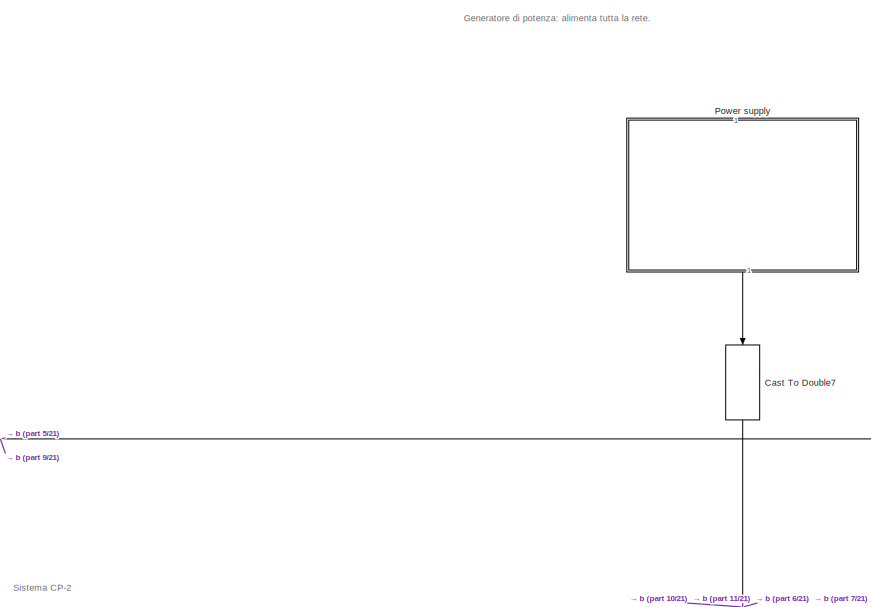
[diagram: root canvas - part 1/21, top center region]
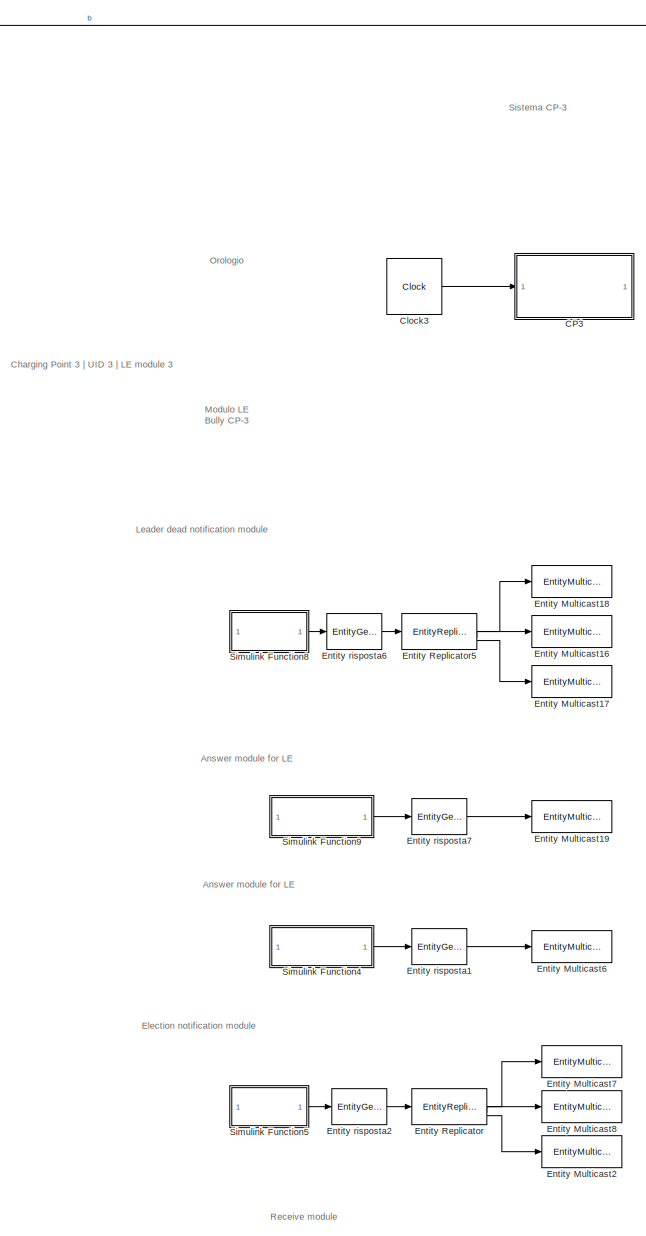
[diagram: root canvas - part 2/21, top right region]
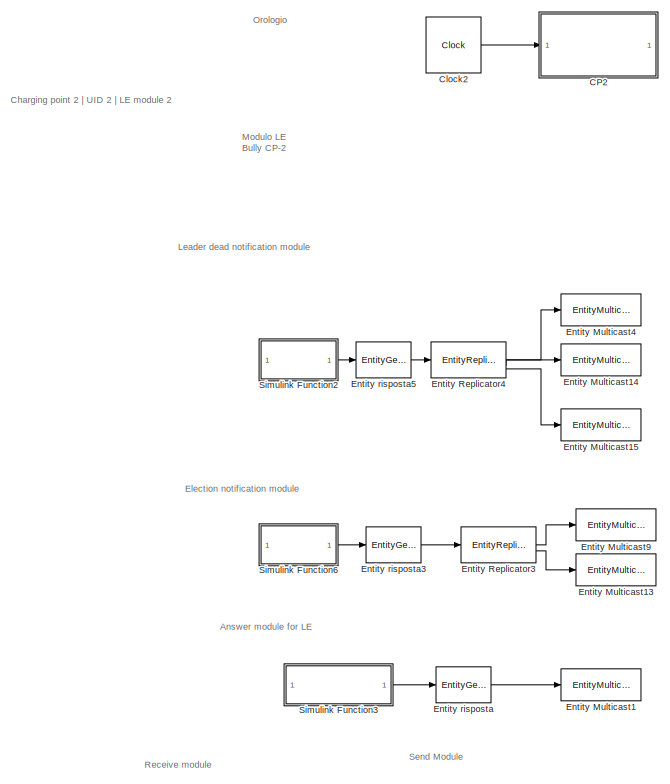
[diagram: root canvas - part 3/21, top center region]
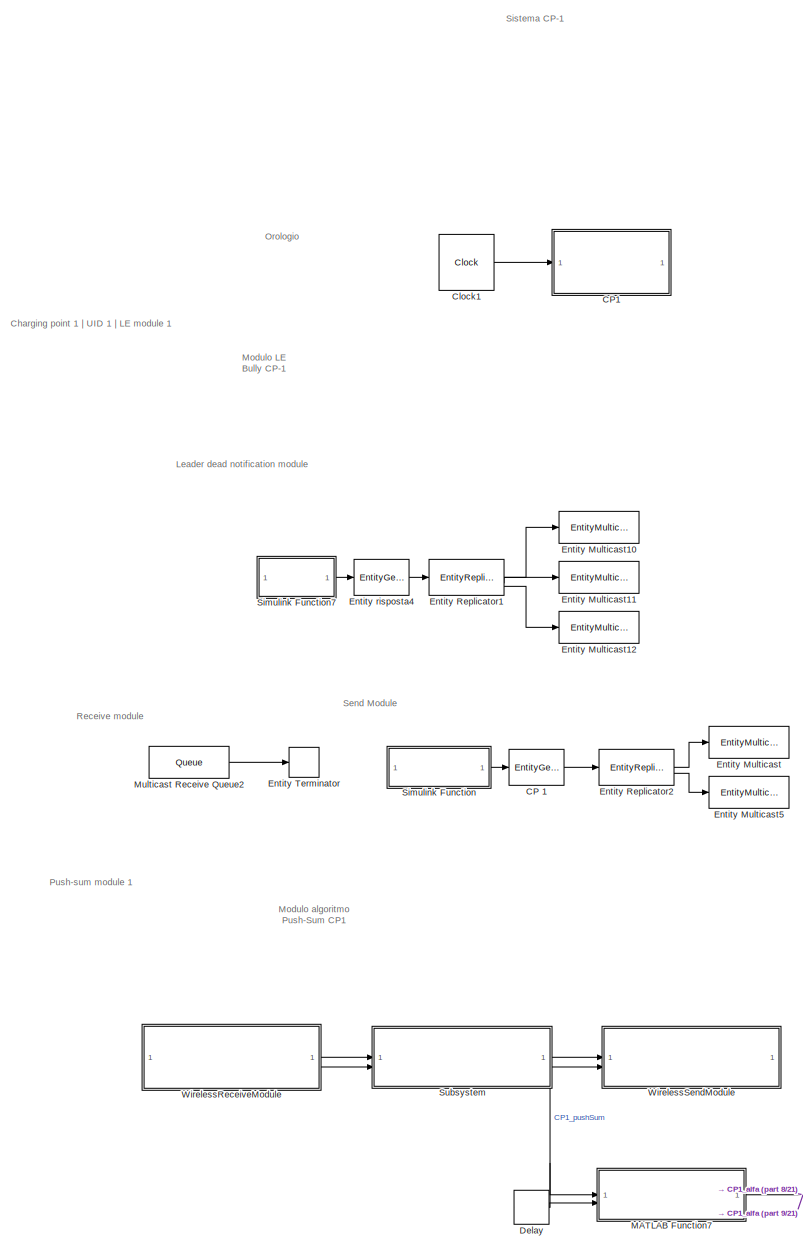
[diagram: root canvas - part 4/21, middle left region]
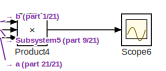
[diagram: root canvas - part 5/21, top left region]
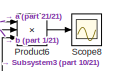
[diagram: root canvas - part 6/21, top right region]
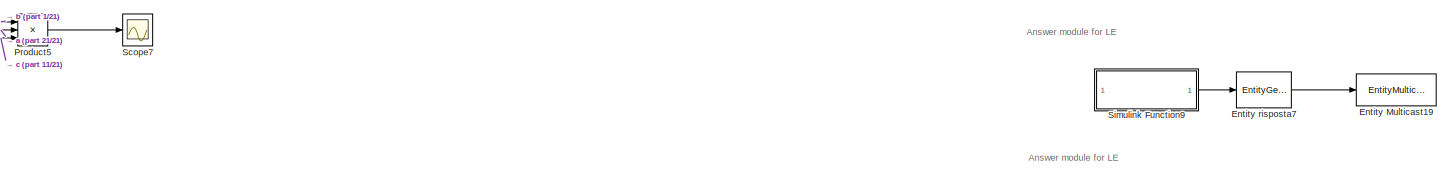
[diagram: root canvas - part 7/21, top right region]
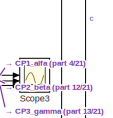
[diagram: root canvas - part 8/21, central region]
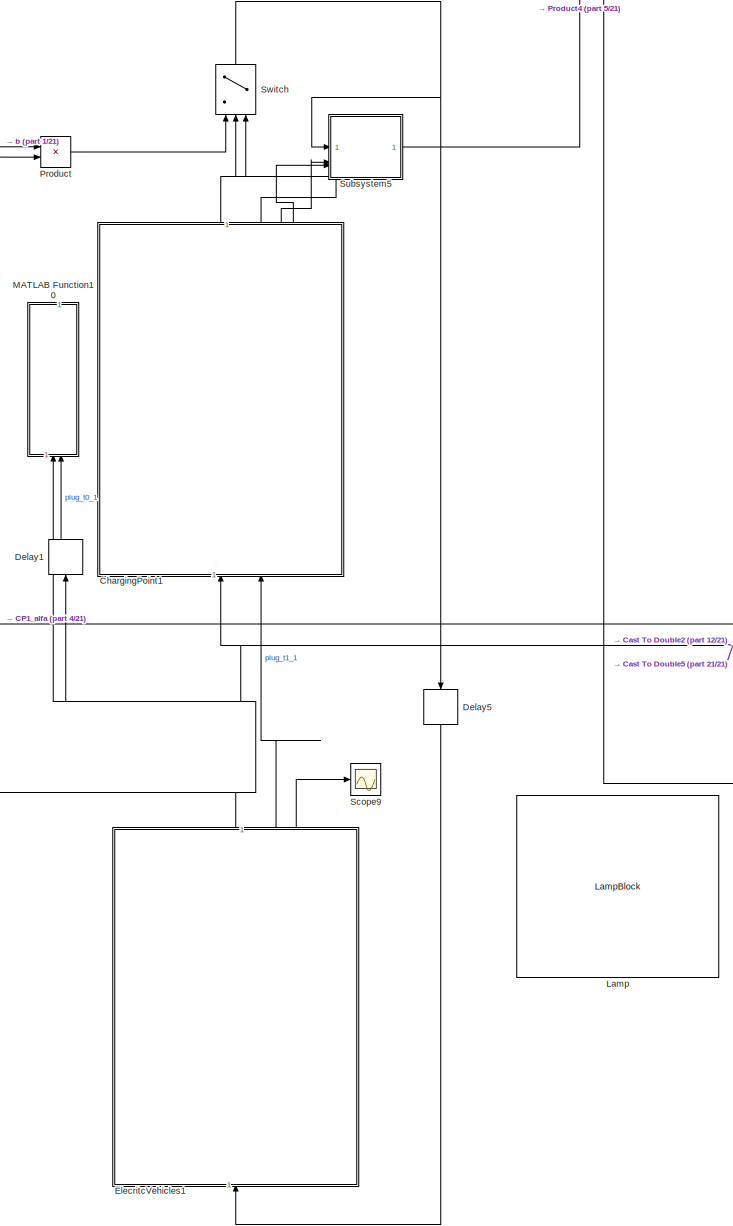
[diagram: root canvas - part 9/21, middle left region]
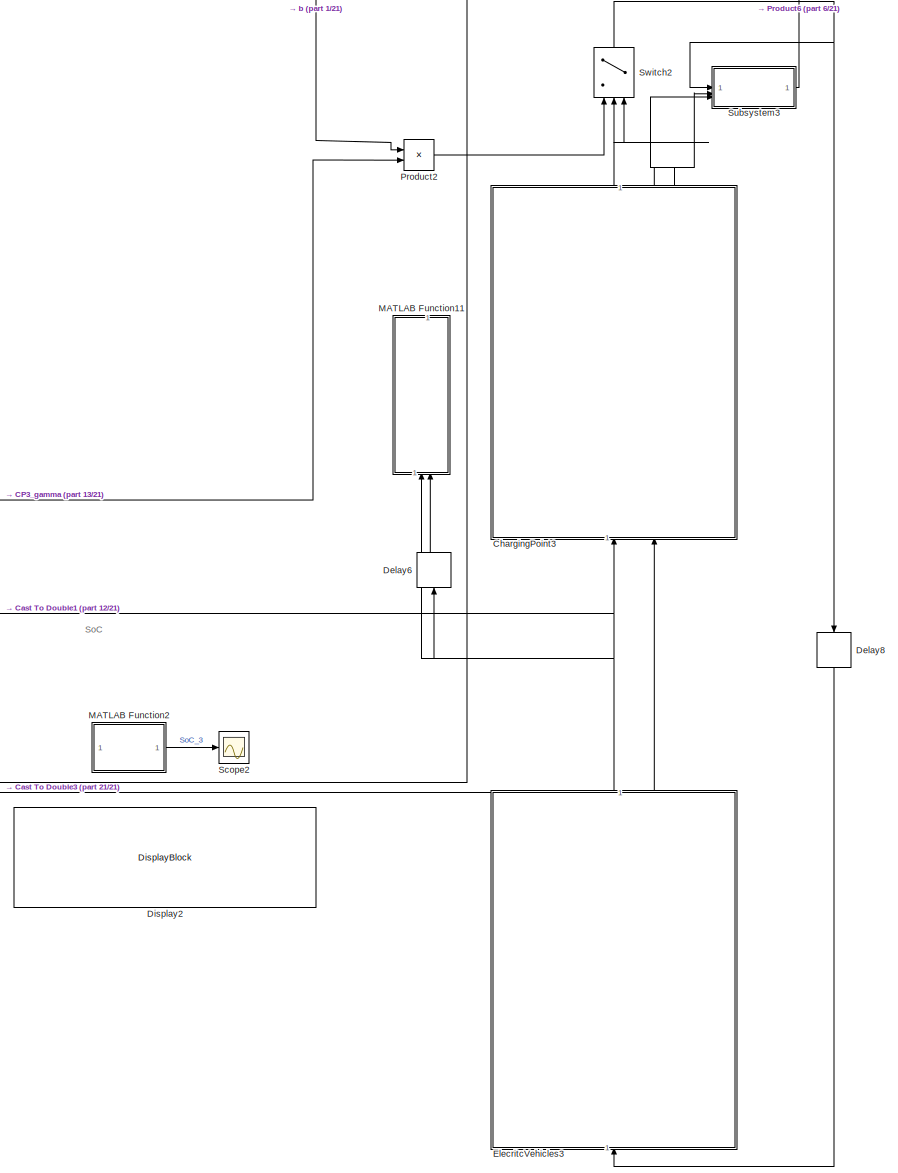
[diagram: root canvas - part 10/21, middle right region]
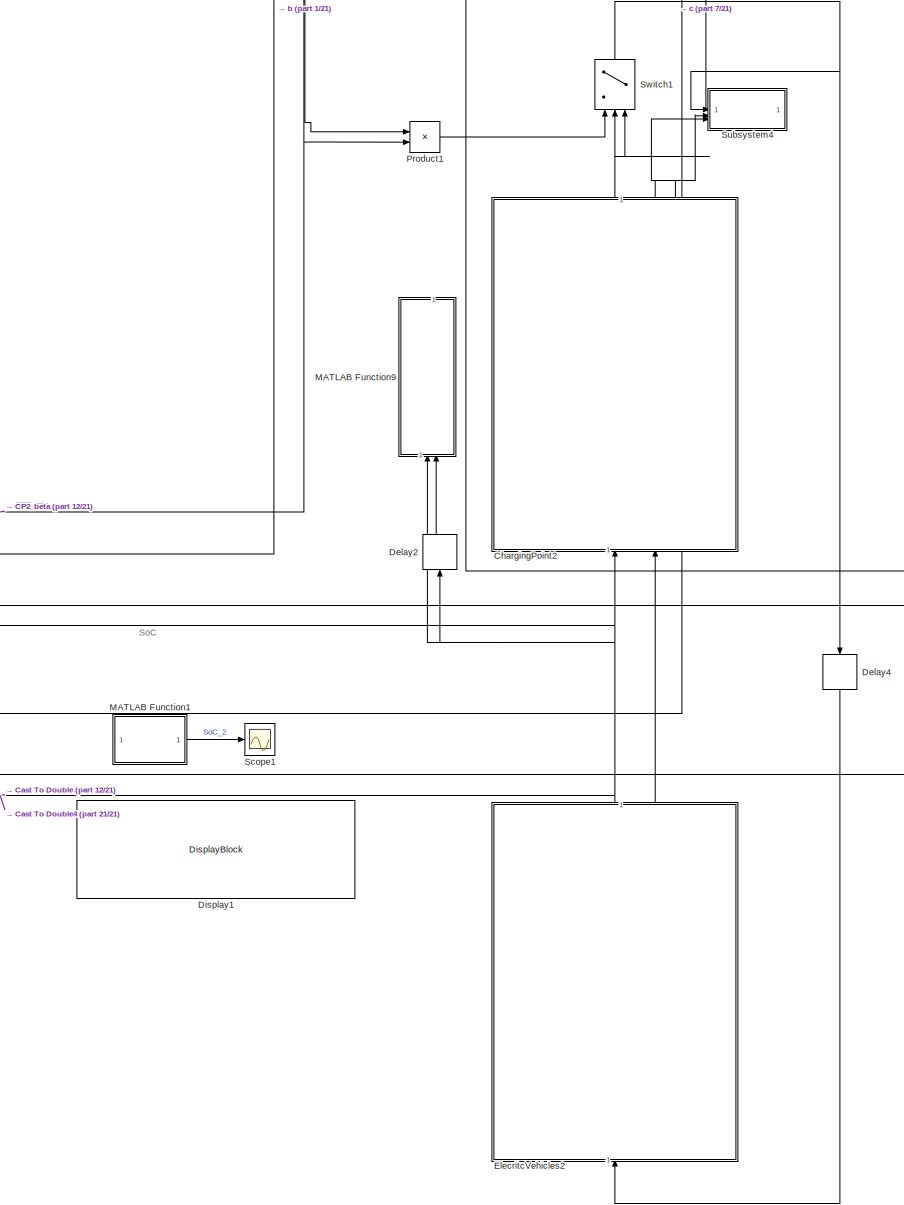
[diagram: root canvas - part 11/21, central region]
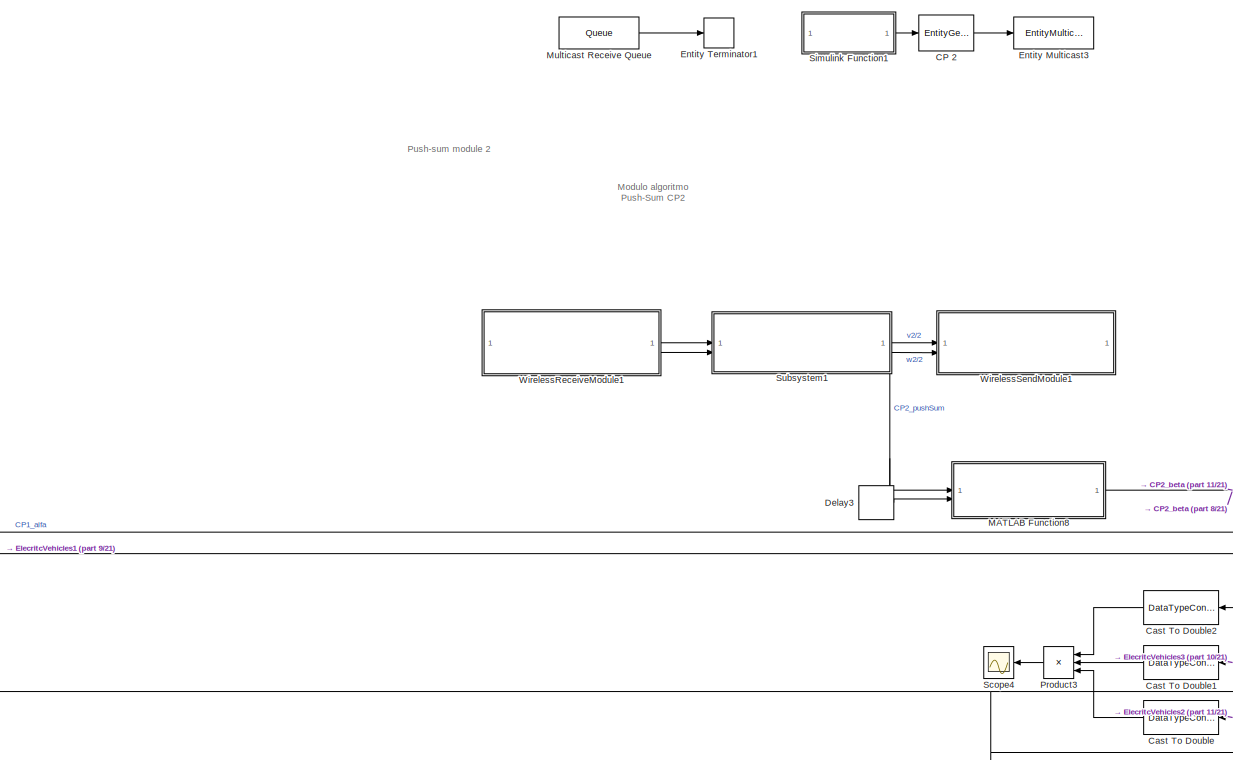
[diagram: root canvas - part 12/21, central region]
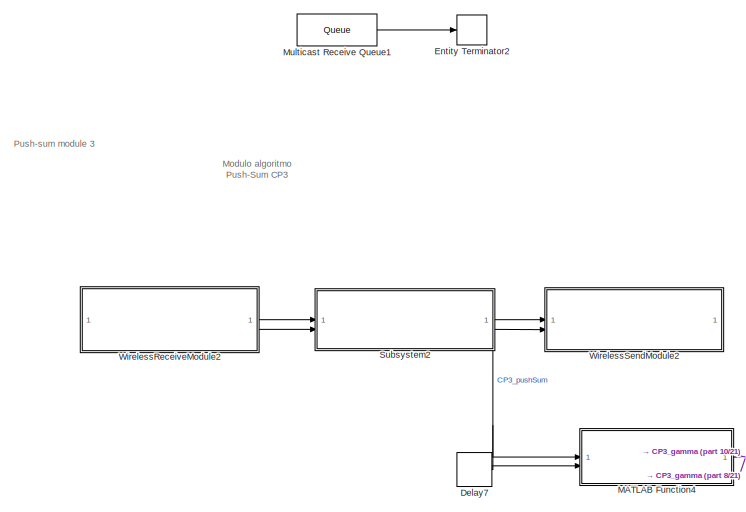
[diagram: root canvas - part 13/21, middle right region]
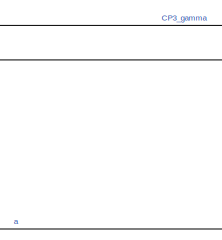
[diagram: root canvas - part 14/21, middle right region]
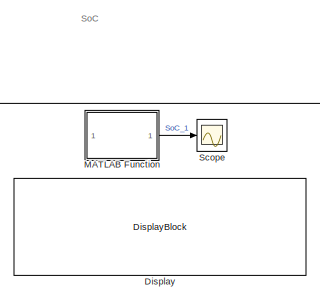
[diagram: root canvas - part 15/21, middle left region]
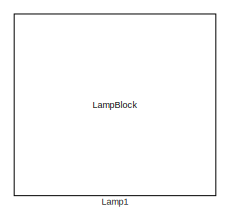
[diagram: root canvas - part 16/21, middle right region]
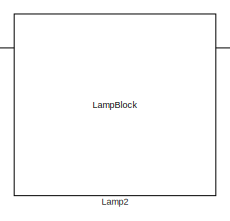
[diagram: root canvas - part 17/21, central region]
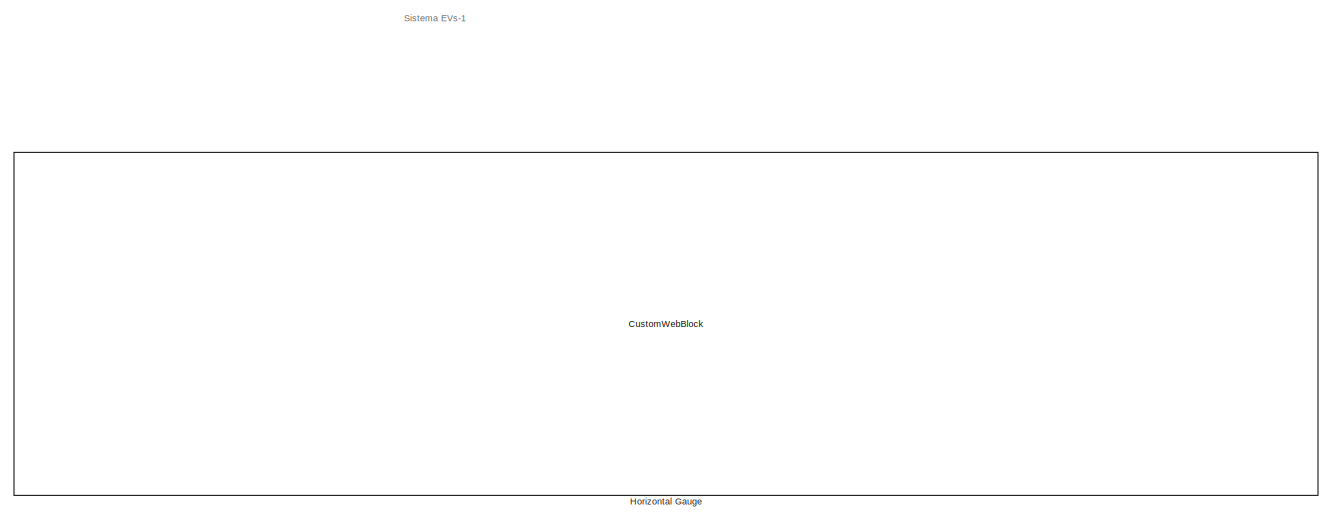
[diagram: root canvas - part 18/21, bottom left region]
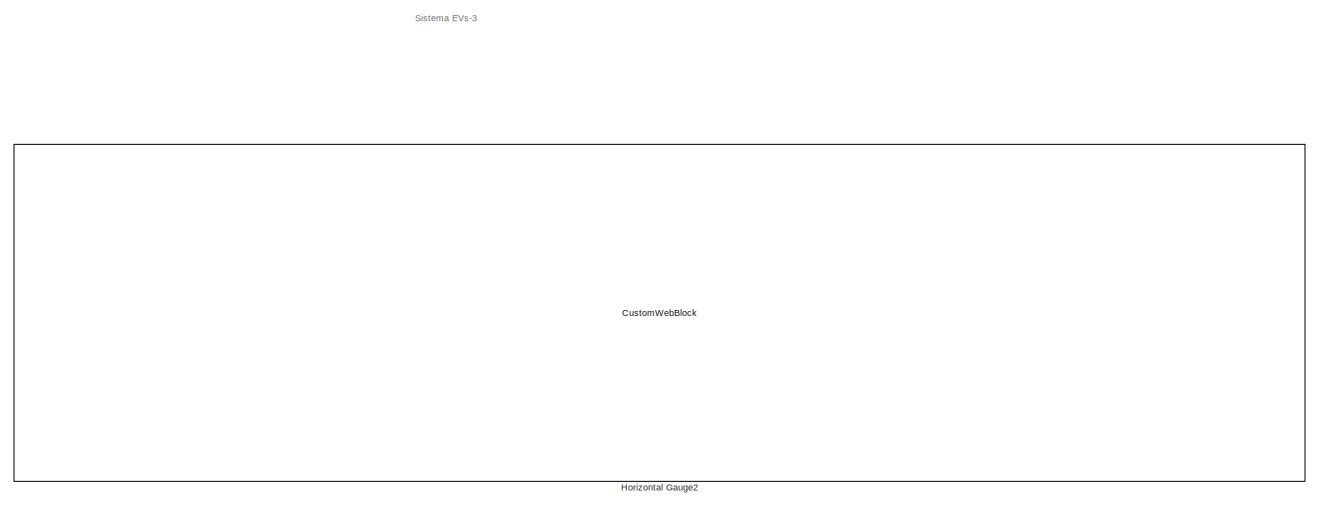
[diagram: root canvas - part 19/21, bottom right region]
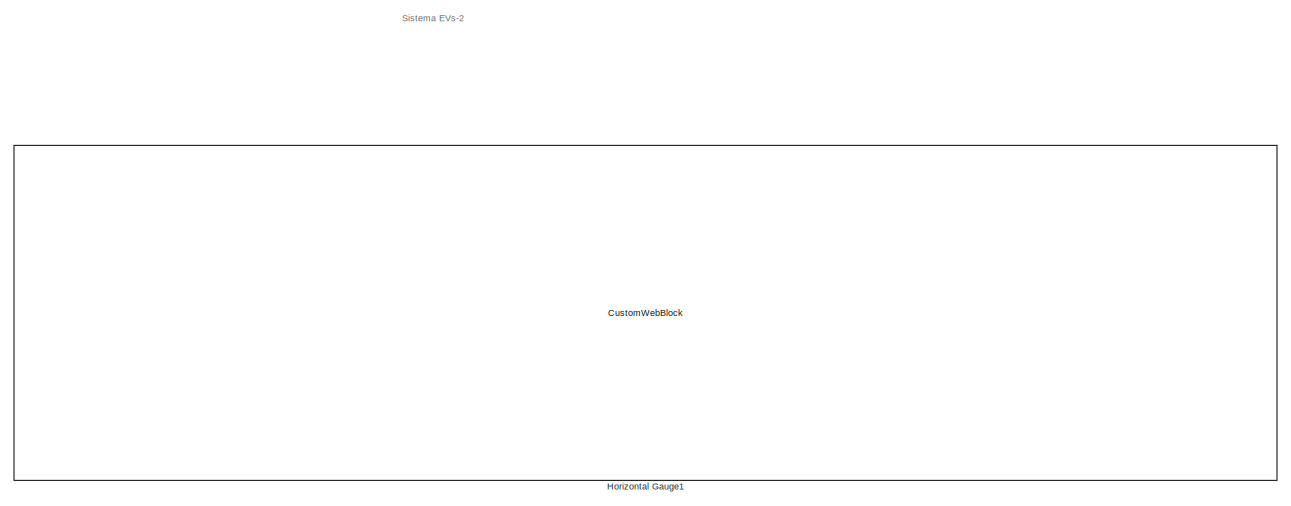
[diagram: root canvas - part 20/21, bottom center region]
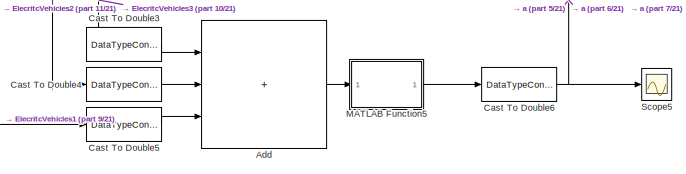
[diagram: root canvas - part 21/21, bottom center region]
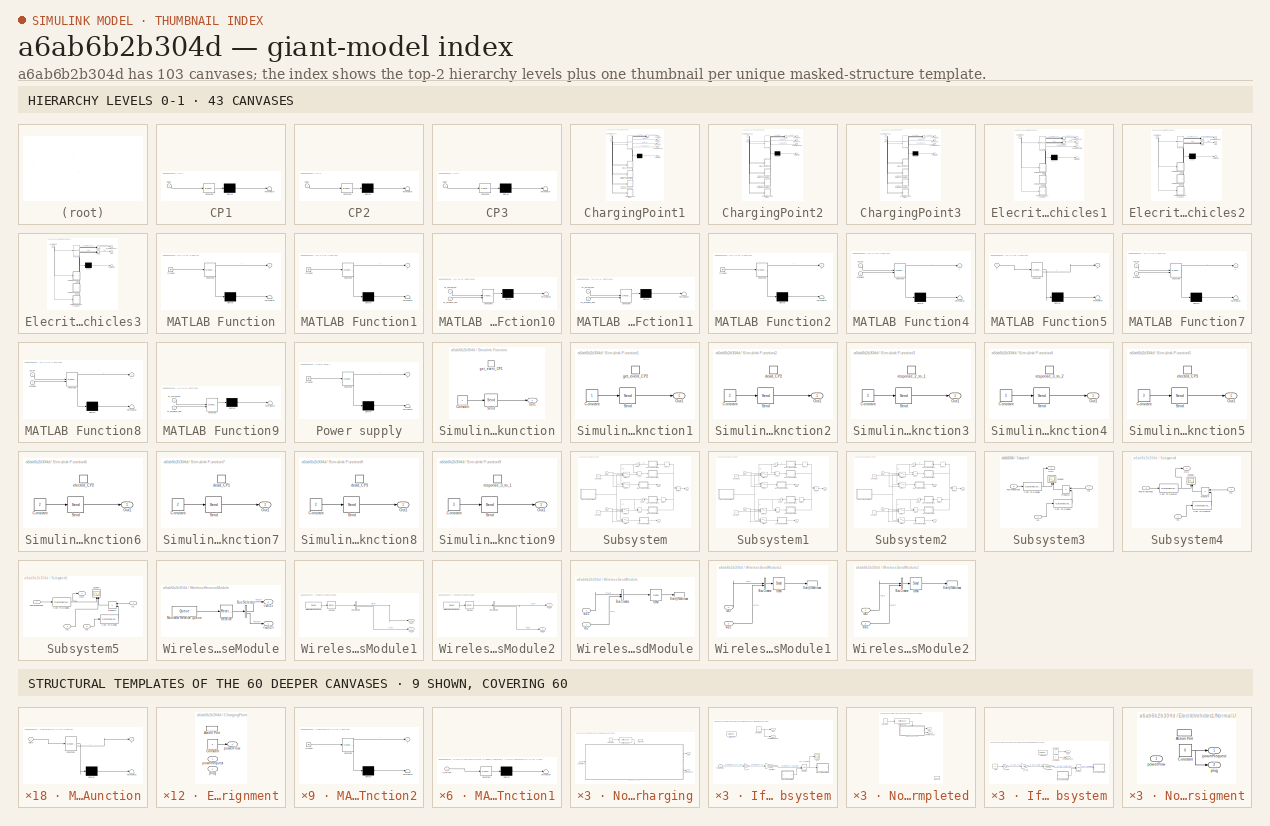
[diagram: thumbnail index - top-2 hierarchy levels (43 canvases) + 9 structural-template representatives of the remaining 60 canvases]
MODEL slx_a6ab6b2b304d
KIND model
CONFIG AbsTol = auto
CONFIG EnableMultiTasking = off
CONFIG FixedStep = 0.1
CONFIG MaxStep = auto
CONFIG MinStep = auto
CONFIG RelTol = 1e-3
CONFIG SampleTimeConstraint = Unconstrained
CONFIG SolverName = FixedStepAuto
CONFIG StartTime = 0.0
CONFIG StopTime = 500
WORKSPACE source: mxarray member
WORKSPACE SoC: Simulink.Signal (value not decoded)
BLOCK [Sum] Add
  IconShape = rectangular
  Inputs = +++
BLOCK [EntityGenerator] CP 1
  AttributeName = UID
  EntityType = Structured
  EntityTypeName = Entity
  GenerationMethod = Event-based
  InputPortMap = u0
  InputPortMessageModes = m
  OutputPortMap = o3
  OutputPortMessageModes = m
  Period = 3
  TimeSource = Signal port
BLOCK [EntityGenerator] CP 2
  AttributeInitialValue = 2
  AttributeName = UID
  EntityType = Structured
  EntityTypeName = Entity
  GenerationMethod = Event-based
  InputPortMap = u0
  InputPortMessageModes = m
  OutputPortMap = o3
  OutputPortMessageModes = m
  Period = 3
  TimeSource = Signal port
BLOCK [SubSystem] CP1
  ErrorFcn = Stateflow.Translate.translate
  PermitHierarchicalResolution = ExplicitOnly
  SFBlockType = MATLAB Function
  TreatAsAtomicUnit = on
BLOCK [Demux] CP1/ Demux 
  Outputs = 1
BLOCK [S-Function] CP1/ SFunction 
  EnableBusSupport = on
  FunctionName = sf_sfun
  PortCounts = [1 1]
  SFcnIsStateOwnerBlock = off
  SFunctionDeploymentMode = off
  Tag = Stateflow S-Function 1
BLOCK [Terminator] CP1/ Terminator 
BLOCK [Inport] CP1/clock
BLOCK [SubSystem] CP2
  ErrorFcn = Stateflow.Translate.translate
  PermitHierarchicalResolution = ExplicitOnly
  SFBlockType = MATLAB Function
  TreatAsAtomicUnit = on
BLOCK [Demux] CP2/ Demux 
  Outputs = 1
BLOCK [S-Function] CP2/ SFunction 
  EnableBusSupport = on
  FunctionName = sf_sfun
  PortCounts = [1 1]
  SFcnIsStateOwnerBlock = off
  SFunctionDeploymentMode = off
  Tag = Stateflow S-Function 2
BLOCK [Terminator] CP2/ Terminator 
BLOCK [Inport] CP2/clock
BLOCK [SubSystem] CP3
  ErrorFcn = Stateflow.Translate.translate
  PermitHierarchicalResolution = ExplicitOnly
  SFBlockType = MATLAB Function
  TreatAsAtomicUnit = on
BLOCK [Demux] CP3/ Demux 
  Outputs = 1
BLOCK [S-Function] CP3/ SFunction 
  EnableBusSupport = on
  FunctionName = sf_sfun
  PortCounts = [1 1]
  SFcnIsStateOwnerBlock = off
  SFunctionDeploymentMode = off
  Tag = Stateflow S-Function 4
BLOCK [Terminator] CP3/ Terminator 
BLOCK [Inport] CP3/clock
BLOCK [DataTypeConversion] Cast To Double
  NameLocation = top
  OutDataTypeStr = double
  RndMeth = Floor
  SaturateOnIntegerOverflow = off
BLOCK [DataTypeConversion] Cast To Double1
  NameLocation = top
  OutDataTypeStr = double
  RndMeth = Floor
  SaturateOnIntegerOverflow = off
BLOCK [DataTypeConversion] Cast To Double2
  NameLocation = top
  OutDataTypeStr = double
  RndMeth = Floor
  SaturateOnIntegerOverflow = off
BLOCK [DataTypeConversion] Cast To Double3
  OutDataTypeStr = double
  RndMeth = Floor
  SaturateOnIntegerOverflow = off
BLOCK [DataTypeConversion] Cast To Double4
  OutDataTypeStr = double
  RndMeth = Floor
  SaturateOnIntegerOverflow = off
BLOCK [DataTypeConversion] Cast To Double5
  OutDataTypeStr = double
  RndMeth = Floor
  SaturateOnIntegerOverflow = off
BLOCK [DataTypeConversion] Cast To Double6
  OutDataTypeStr = double
  RndMeth = Floor
  SaturateOnIntegerOverflow = off
BLOCK [DataTypeConversion] Cast To Double7
  NameLocation = left
  OutDataTypeStr = double
  RndMeth = Floor
  SaturateOnIntegerOverflow = off
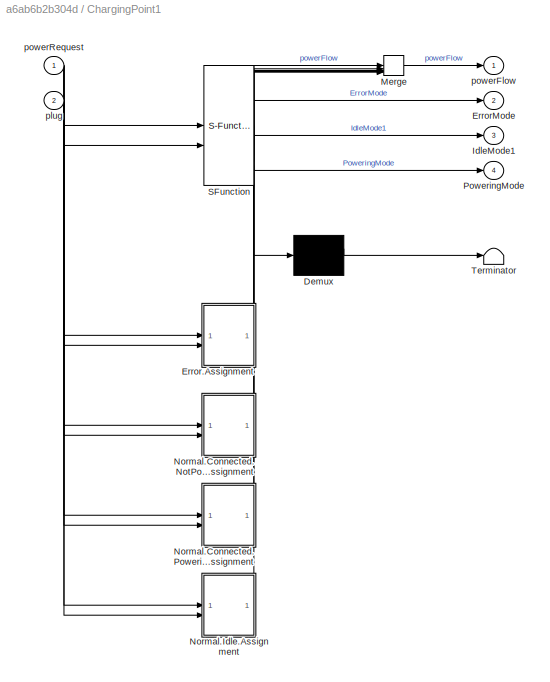
BLOCK [SubSystem] ChargingPoint1
  ErrorFcn = Stateflow.Translate.translate
  NameLocation = right
  PermitHierarchicalResolution = ExplicitOnly
  SFBlockType = Chart
  TreatAsAtomicUnit = on
BLOCK [Demux] ChargingPoint1/ Demux 
  Outputs = 1
BLOCK [Outport] ChargingPoint1/ ErrorMode
  Port = 2
BLOCK [Outport] ChargingPoint1/ IdleMode1
  Port = 3
BLOCK [Merge] ChargingPoint1/ Merge 
  Inputs = 5
BLOCK [Outport] ChargingPoint1/ PoweringMode
  Port = 4
BLOCK [S-Function] ChargingPoint1/ SFunction 
  EnableBusSupport = on
  FunctionName = sf_sfun
  PortCounts = [2 5]
  SFcnIsStateOwnerBlock = off
  SFunctionDeploymentMode = off
  Tag = Stateflow S-Function 30
BLOCK [Terminator] ChargingPoint1/ Terminator 
BLOCK [SubSystem] ChargingPoint1/Error.Assignment
  PreDeleteFcn = Stateflow.SLINSF.SimulinkMan.removePreDeleteFcn
  UndoDeleteFcn = Stateflow.SLINSF.SimulinkMan.restorePreDeleteFcn
BLOCK [ActionPort] ChargingPoint1/Error.Assignment/Action Port
  CopyFcn = Stateflow.SLINSF.SimulinkMan.removeBlockPreDeleteFcn
  PreDeleteFcn = Stateflow.SLINSF.SimulinkMan.unsafePredeleteFcn
BLOCK [Constant] ChargingPoint1/Error.Assignment/Constant
  OutDataTypeStr = boolean
  Value = 0
BLOCK [Inport] ChargingPoint1/Error.Assignment/plug
  Port = 2
BLOCK [Outport] ChargingPoint1/Error.Assignment/powerFlow
BLOCK [Inport] ChargingPoint1/Error.Assignment/powerRequest
BLOCK [SubSystem] ChargingPoint1/Normal.Connected.NotPowering.Assignment
  PreDeleteFcn = Stateflow.SLINSF.SimulinkMan.removePreDeleteFcn
  UndoDeleteFcn = Stateflow.SLINSF.SimulinkMan.restorePreDeleteFcn
BLOCK [ActionPort] ChargingPoint1/Normal.Connected.NotPowering.Assignment/Action Port
  CopyFcn = Stateflow.SLINSF.SimulinkMan.removeBlockPreDeleteFcn
  PreDeleteFcn = Stateflow.SLINSF.SimulinkMan.unsafePredeleteFcn
BLOCK [Constant] ChargingPoint1/Normal.Connected.NotPowering.Assignment/Constant
  OutDataTypeStr = boolean
  Value = 0
BLOCK [Inport] ChargingPoint1/Normal.Connected.NotPowering.Assignment/plug
  Port = 2
BLOCK [Outport] ChargingPoint1/Normal.Connected.NotPowering.Assignment/powerFlow
BLOCK [Inport] ChargingPoint1/Normal.Connected.NotPowering.Assignment/powerRequest
BLOCK [SubSystem] ChargingPoint1/Normal.Connected.Powering.Assignment
  PreDeleteFcn = Stateflow.SLINSF.SimulinkMan.removePreDeleteFcn
  UndoDeleteFcn = Stateflow.SLINSF.SimulinkMan.restorePreDeleteFcn
BLOCK [ActionPort] ChargingPoint1/Normal.Connected.Powering.Assignment/Action Port
  CopyFcn = Stateflow.SLINSF.SimulinkMan.removeBlockPreDeleteFcn
  PreDeleteFcn = Stateflow.SLINSF.SimulinkMan.unsafePredeleteFcn
BLOCK [Constant] ChargingPoint1/Normal.Connected.Powering.Assignment/Constant
  OutDataTypeStr = boolean
BLOCK [Inport] ChargingPoint1/Normal.Connected.Powering.Assignment/plug
  Port = 2
BLOCK [Outport] ChargingPoint1/Normal.Connected.Powering.Assignment/powerFlow
BLOCK [Inport] ChargingPoint1/Normal.Connected.Powering.Assignment/powerRequest
BLOCK [SubSystem] ChargingPoint1/Normal.Idle.Assignment
  PreDeleteFcn = Stateflow.SLINSF.SimulinkMan.removePreDeleteFcn
  UndoDeleteFcn = Stateflow.SLINSF.SimulinkMan.restorePreDeleteFcn
BLOCK [ActionPort] ChargingPoint1/Normal.Idle.Assignment/Action Port
  CopyFcn = Stateflow.SLINSF.SimulinkMan.removeBlockPreDeleteFcn
  PreDeleteFcn = Stateflow.SLINSF.SimulinkMan.unsafePredeleteFcn
BLOCK [Constant] ChargingPoint1/Normal.Idle.Assignment/Constant
  OutDataTypeStr = boolean
  Value = 0
BLOCK [Inport] ChargingPoint1/Normal.Idle.Assignment/plug
  Port = 2
BLOCK [Outport] ChargingPoint1/Normal.Idle.Assignment/powerFlow
BLOCK [Inport] ChargingPoint1/Normal.Idle.Assignment/powerRequest
BLOCK [Inport] ChargingPoint1/plug
  Port = 2
BLOCK [Outport] ChargingPoint1/powerFlow
BLOCK [Inport] ChargingPoint1/powerRequest
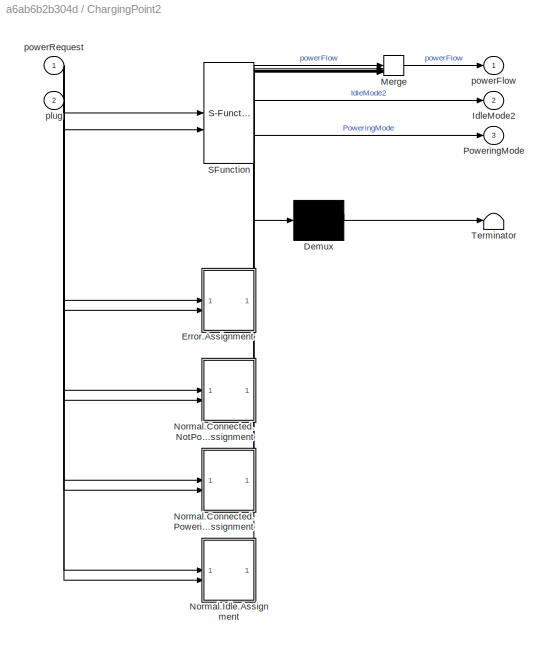
BLOCK [SubSystem] ChargingPoint2
  ErrorFcn = Stateflow.Translate.translate
  NameLocation = right
  PermitHierarchicalResolution = ExplicitOnly
  SFBlockType = Chart
  TreatAsAtomicUnit = on
BLOCK [Demux] ChargingPoint2/ Demux 
  Outputs = 1
BLOCK [Outport] ChargingPoint2/ IdleMode2
  Port = 2
BLOCK [Merge] ChargingPoint2/ Merge 
  Inputs = 5
BLOCK [Outport] ChargingPoint2/ PoweringMode
  Port = 3
BLOCK [S-Function] ChargingPoint2/ SFunction 
  EnableBusSupport = on
  FunctionName = sf_sfun
  PortCounts = [2 4]
  SFcnIsStateOwnerBlock = off
  SFunctionDeploymentMode = off
  Tag = Stateflow S-Function 5
BLOCK [Terminator] ChargingPoint2/ Terminator 
BLOCK [SubSystem] ChargingPoint2/Error.Assignment
  PreDeleteFcn = Stateflow.SLINSF.SimulinkMan.removePreDeleteFcn
  UndoDeleteFcn = Stateflow.SLINSF.SimulinkMan.restorePreDeleteFcn
BLOCK [ActionPort] ChargingPoint2/Error.Assignment/Action Port
  CopyFcn = Stateflow.SLINSF.SimulinkMan.removeBlockPreDeleteFcn
  PreDeleteFcn = Stateflow.SLINSF.SimulinkMan.unsafePredeleteFcn
BLOCK [Constant] ChargingPoint2/Error.Assignment/Constant
  OutDataTypeStr = boolean
  Value = 0
BLOCK [Inport] ChargingPoint2/Error.Assignment/plug
  Port = 2
BLOCK [Outport] ChargingPoint2/Error.Assignment/powerFlow
BLOCK [Inport] ChargingPoint2/Error.Assignment/powerRequest
BLOCK [SubSystem] ChargingPoint2/Normal.Connected.NotPowering.Assignment
  PreDeleteFcn = Stateflow.SLINSF.SimulinkMan.removePreDeleteFcn
  UndoDeleteFcn = Stateflow.SLINSF.SimulinkMan.restorePreDeleteFcn
BLOCK [ActionPort] ChargingPoint2/Normal.Connected.NotPowering.Assignment/Action Port
  CopyFcn = Stateflow.SLINSF.SimulinkMan.removeBlockPreDeleteFcn
  PreDeleteFcn = Stateflow.SLINSF.SimulinkMan.unsafePredeleteFcn
BLOCK [Constant] ChargingPoint2/Normal.Connected.NotPowering.Assignment/Constant
  OutDataTypeStr = boolean
  Value = 0
BLOCK [Inport] ChargingPoint2/Normal.Connected.NotPowering.Assignment/plug
  Port = 2
BLOCK [Outport] ChargingPoint2/Normal.Connected.NotPowering.Assignment/powerFlow
BLOCK [Inport] ChargingPoint2/Normal.Connected.NotPowering.Assignment/powerRequest
BLOCK [SubSystem] ChargingPoint2/Normal.Connected.Powering.Assignment
  PreDeleteFcn = Stateflow.SLINSF.SimulinkMan.removePreDeleteFcn
  UndoDeleteFcn = Stateflow.SLINSF.SimulinkMan.restorePreDeleteFcn
BLOCK [ActionPort] ChargingPoint2/Normal.Connected.Powering.Assignment/Action Port
  CopyFcn = Stateflow.SLINSF.SimulinkMan.removeBlockPreDeleteFcn
  PreDeleteFcn = Stateflow.SLINSF.SimulinkMan.unsafePredeleteFcn
BLOCK [Constant] ChargingPoint2/Normal.Connected.Powering.Assignment/Constant
  OutDataTypeStr = boolean
BLOCK [Inport] ChargingPoint2/Normal.Connected.Powering.Assignment/plug
  Port = 2
BLOCK [Outport] ChargingPoint2/Normal.Connected.Powering.Assignment/powerFlow
BLOCK [Inport] ChargingPoint2/Normal.Connected.Powering.Assignment/powerRequest
BLOCK [SubSystem] ChargingPoint2/Normal.Idle.Assignment
  PreDeleteFcn = Stateflow.SLINSF.SimulinkMan.removePreDeleteFcn
  UndoDeleteFcn = Stateflow.SLINSF.SimulinkMan.restorePreDeleteFcn
BLOCK [ActionPort] ChargingPoint2/Normal.Idle.Assignment/Action Port
  CopyFcn = Stateflow.SLINSF.SimulinkMan.removeBlockPreDeleteFcn
  PreDeleteFcn = Stateflow.SLINSF.SimulinkMan.unsafePredeleteFcn
BLOCK [Constant] ChargingPoint2/Normal.Idle.Assignment/Constant
  OutDataTypeStr = boolean
  Value = 0
BLOCK [Inport] ChargingPoint2/Normal.Idle.Assignment/plug
  Port = 2
BLOCK [Outport] ChargingPoint2/Normal.Idle.Assignment/powerFlow
BLOCK [Inport] ChargingPoint2/Normal.Idle.Assignment/powerRequest
BLOCK [Inport] ChargingPoint2/plug
  Port = 2
BLOCK [Outport] ChargingPoint2/powerFlow
BLOCK [Inport] ChargingPoint2/powerRequest
BLOCK [SubSystem] ChargingPoint3
  ErrorFcn = Stateflow.Translate.translate
  NameLocation = right
  PermitHierarchicalResolution = ExplicitOnly
  SFBlockType = Chart
  TreatAsAtomicUnit = on
BLOCK [Demux] ChargingPoint3/ Demux 
  Outputs = 1
BLOCK [Outport] ChargingPoint3/ IdleMode3
  Port = 2
BLOCK [Merge] ChargingPoint3/ Merge 
  Inputs = 5
BLOCK [Outport] ChargingPoint3/ PoweringMode
  Port = 3
BLOCK [S-Function] ChargingPoint3/ SFunction 
  EnableBusSupport = on
  FunctionName = sf_sfun
  PortCounts = [2 4]
  SFcnIsStateOwnerBlock = off
  SFunctionDeploymentMode = off
  Tag = Stateflow S-Function 6
BLOCK [Terminator] ChargingPoint3/ Terminator 
BLOCK [SubSystem] ChargingPoint3/Error.Assignment
  PreDeleteFcn = Stateflow.SLINSF.SimulinkMan.removePreDeleteFcn
  UndoDeleteFcn = Stateflow.SLINSF.SimulinkMan.restorePreDeleteFcn
BLOCK [ActionPort] ChargingPoint3/Error.Assignment/Action Port
  CopyFcn = Stateflow.SLINSF.SimulinkMan.removeBlockPreDeleteFcn
  PreDeleteFcn = Stateflow.SLINSF.SimulinkMan.unsafePredeleteFcn
BLOCK [Constant] ChargingPoint3/Error.Assignment/Constant
  OutDataTypeStr = boolean
  Value = 0
BLOCK [Inport] ChargingPoint3/Error.Assignment/plug
  Port = 2
BLOCK [Outport] ChargingPoint3/Error.Assignment/powerFlow
BLOCK [Inport] ChargingPoint3/Error.Assignment/powerRequest
BLOCK [SubSystem] ChargingPoint3/Normal.Connected.NotPowering.Assignment
  PreDeleteFcn = Stateflow.SLINSF.SimulinkMan.removePreDeleteFcn
  UndoDeleteFcn = Stateflow.SLINSF.SimulinkMan.restorePreDeleteFcn
BLOCK [ActionPort] ChargingPoint3/Normal.Connected.NotPowering.Assignment/Action Port
  CopyFcn = Stateflow.SLINSF.SimulinkMan.removeBlockPreDeleteFcn
  PreDeleteFcn = Stateflow.SLINSF.SimulinkMan.unsafePredeleteFcn
BLOCK [Constant] ChargingPoint3/Normal.Connected.NotPowering.Assignment/Constant
  OutDataTypeStr = boolean
  Value = 0
BLOCK [Inport] ChargingPoint3/Normal.Connected.NotPowering.Assignment/plug
  Port = 2
BLOCK [Outport] ChargingPoint3/Normal.Connected.NotPowering.Assignment/powerFlow
BLOCK [Inport] ChargingPoint3/Normal.Connected.NotPowering.Assignment/powerRequest
BLOCK [SubSystem] ChargingPoint3/Normal.Connected.Powering.Assignment
  PreDeleteFcn = Stateflow.SLINSF.SimulinkMan.removePreDeleteFcn
  UndoDeleteFcn = Stateflow.SLINSF.SimulinkMan.restorePreDeleteFcn
BLOCK [ActionPort] ChargingPoint3/Normal.Connected.Powering.Assignment/Action Port
  CopyFcn = Stateflow.SLINSF.SimulinkMan.removeBlockPreDeleteFcn
  PreDeleteFcn = Stateflow.SLINSF.SimulinkMan.unsafePredeleteFcn
BLOCK [Constant] ChargingPoint3/Normal.Connected.Powering.Assignment/Constant
  OutDataTypeStr = boolean
BLOCK [Inport] ChargingPoint3/Normal.Connected.Powering.Assignment/plug
  Port = 2
BLOCK [Outport] ChargingPoint3/Normal.Connected.Powering.Assignment/powerFlow
BLOCK [Inport] ChargingPoint3/Normal.Connected.Powering.Assignment/powerRequest
BLOCK [SubSystem] ChargingPoint3/Normal.Idle.Assignment
  PreDeleteFcn = Stateflow.SLINSF.SimulinkMan.removePreDeleteFcn
  UndoDeleteFcn = Stateflow.SLINSF.SimulinkMan.restorePreDeleteFcn
BLOCK [ActionPort] ChargingPoint3/Normal.Idle.Assignment/Action Port
  CopyFcn = Stateflow.SLINSF.SimulinkMan.removeBlockPreDeleteFcn
  PreDeleteFcn = Stateflow.SLINSF.SimulinkMan.unsafePredeleteFcn
BLOCK [Constant] ChargingPoint3/Normal.Idle.Assignment/Constant
  OutDataTypeStr = boolean
  Value = 0
BLOCK [Inport] ChargingPoint3/Normal.Idle.Assignment/plug
  Port = 2
BLOCK [Outport] ChargingPoint3/Normal.Idle.Assignment/powerFlow
BLOCK [Inport] ChargingPoint3/Normal.Idle.Assignment/powerRequest
BLOCK [Inport] ChargingPoint3/plug
  Port = 2
BLOCK [Outport] ChargingPoint3/powerFlow
BLOCK [Inport] ChargingPoint3/powerRequest
BLOCK [Clock] Clock1
  DisplayTime = on
BLOCK [Clock] Clock2
  DisplayTime = on
BLOCK [Clock] Clock3
  DisplayTime = on
BLOCK [Delay] Delay
  DelayLength = 1
  InitialCondition = 0
  InputPortMap = u0
  SampleTime = 0.1
BLOCK [Delay] Delay1
  DelayLength = 1
  InitialCondition = 0
  InputPortMap = u0
  NameLocation = right
  SampleTime = 0.1
BLOCK [Delay] Delay2
  DelayLength = 1
  InitialCondition = 0
  InputPortMap = u0
  NameLocation = right
  SampleTime = 0.1
BLOCK [Delay] Delay3
  DelayLength = 1
  InitialCondition = 0
  InputPortMap = u0
  SampleTime = 0.1
BLOCK [Delay] Delay4
  DelayLength = 1
  InitialCondition = 0
  InputPortMap = u0
  NameLocation = right
  SampleTime = 0.1
BLOCK [Delay] Delay5
  DelayLength = 1
  InitialCondition = 0
  InputPortMap = u0
  NameLocation = right
  SampleTime = 0.1
BLOCK [Delay] Delay6
  DelayLength = 1
  InitialCondition = 0
  InputPortMap = u0
  NameLocation = right
  SampleTime = 0.1
BLOCK [Delay] Delay7
  DelayLength = 1
  InitialCondition = 0
  InputPortMap = u0
  SampleTime = 0.1
BLOCK [Delay] Delay8
  DelayLength = 1
  InitialCondition = 0
  InputPortMap = u0
  NameLocation = right
  SampleTime = 0.1
BLOCK [DisplayBlock] Display
  Transparency = 1
BLOCK [DisplayBlock] Display1
  Commented = on
  Layout = Fill available space
  Transparency = 1
BLOCK [DisplayBlock] Display2
  Transparency = 1
BLOCK [SubSystem] ElecritcVehicles1
  ErrorFcn = Stateflow.Translate.translate
  NameLocation = right
  PermitHierarchicalResolution = ExplicitOnly
  SFBlockType = Chart
  TreatAsAtomicUnit = on
BLOCK [Demux] ElecritcVehicles1/ Demux 
  Outputs = 1
BLOCK [Merge] ElecritcVehicles1/ Merge 
  Inputs = 4
BLOCK [Merge] ElecritcVehicles1/ Merge 1
  Inputs = 4
BLOCK [S-Function] ElecritcVehicles1/ SFunction 
  EnableBusSupport = on
  FunctionName = sf_sfun
  PortCounts = [1 4]
  SFcnIsStateOwnerBlock = off
  SFunctionDeploymentMode = off
  Tag = Stateflow S-Function 3
BLOCK [Terminator] ElecritcVehicles1/ Terminator 
BLOCK [SubSystem] ElecritcVehicles1/Normal.Plugged.Charging
  PreDeleteFcn = Stateflow.SLINSF.SimulinkMan.removePreDeleteFcn
  UndoDeleteFcn = Stateflow.SLINSF.SimulinkMan.restorePreDeleteFcn
BLOCK [ActionPort] ElecritcVehicles1/Normal.Plugged.Charging/Action Port
  CopyFcn = Stateflow.SLINSF.SimulinkMan.removeBlockPreDeleteFcn
  PreDeleteFcn = Stateflow.SLINSF.SimulinkMan.unsafePredeleteFcn
BLOCK [Constant] ElecritcVehicles1/Normal.Plugged.Charging/Constant
BLOCK [SubSystem] ElecritcVehicles1/Normal.Plugged.Charging/If Action Subsystem
  TreatAsAtomicUnit = on
BLOCK [Gain] ElecritcVehicles1/Normal.Plugged.Charging/If Action Subsystem/1//C_rated
  Gain = 1/42000
BLOCK [ActionPort] ElecritcVehicles1/Normal.Plugged.Charging/If Action Subsystem/Action Port
  ActionPortLabel = case [ 1 ]:
  InitializeStates = reset
BLOCK [Constant] ElecritcVehicles1/Normal.Plugged.Charging/If Action Subsystem/Constant
  OutDataTypeStr = boolean
BLOCK [Integrator] ElecritcVehicles1/Normal.Plugged.Charging/If Action Subsystem/Integrator
  InitialConditionSource = external
  LimitOutput = on
  LowerSaturationLimit = 0
  UpperSaturationLimit = 1
BLOCK [SubSystem] ElecritcVehicles1/Normal.Plugged.Charging/If Action Subsystem/MATLAB Function
  ErrorFcn = Stateflow.Translate.translate
  PermitHierarchicalResolution = ExplicitOnly
  SFBlockType = MATLAB Function
  TreatAsAtomicUnit = on
BLOCK [Demux] ElecritcVehicles1/Normal.Plugged.Charging/If Action Subsystem/MATLAB Function/ Demux 
  Outputs = 1
BLOCK [Ground] ElecritcVehicles1/Normal.Plugged.Charging/If Action Subsystem/MATLAB Function/ Ground 
BLOCK [S-Function] ElecritcVehicles1/Normal.Plugged.Charging/If Action Subsystem/MATLAB Function/ SFunction 
  EnableBusSupport = on
  FunctionName = sf_sfun
  PortCounts = [1 2]
  SFcnIsStateOwnerBlock = off
  SFunctionDeploymentMode = off
  Tag = Stateflow S-Function 28
BLOCK [Terminator] ElecritcVehicles1/Normal.Plugged.Charging/If Action Subsystem/MATLAB Function/ Terminator 
BLOCK [Outport] ElecritcVehicles1/Normal.Plugged.Charging/If Action Subsystem/MATLAB Function/y
BLOCK [SubSystem] ElecritcVehicles1/Normal.Plugged.Charging/If Action Subsystem/MATLAB Function1
  ErrorFcn = Stateflow.Translate.translate
  PermitHierarchicalResolution = ExplicitOnly
  SFBlockType = MATLAB Function
  TreatAsAtomicUnit = on
BLOCK [Demux] ElecritcVehicles1/Normal.Plugged.Charging/If Action Subsystem/MATLAB Function1/ Demux 
  Outputs = 1
BLOCK [S-Function] ElecritcVehicles1/Normal.Plugged.Charging/If Action Subsystem/MATLAB Function1/ SFunction 
  EnableBusSupport = on
  FunctionName = sf_sfun
  PortCounts = [1 1]
  SFcnIsStateOwnerBlock = off
  SFunctionDeploymentMode = off
  Tag = Stateflow S-Function 47
BLOCK [Terminator] ElecritcVehicles1/Normal.Plugged.Charging/If Action Subsystem/MATLAB Function1/ Terminator 
BLOCK [Inport] ElecritcVehicles1/Normal.Plugged.Charging/If Action Subsystem/MATLAB Function1/u_current
BLOCK [Scope] ElecritcVehicles1/Normal.Plugged.Charging/If Action Subsystem/SoC
  Floating = off
  NumInputPorts = 1
  ScopeSpecificationString = Simulink.scopes.TimeScopeBlockCfg('CurrentConfiguration', extmgr.ConfigurationSet(extmgr.Configuration('Core','General UI',true),extmgr.Configuration('Core','Source UI',true),extmgr.Configuration('Sources','WiredSimulink',true,'DataLoggingVariableName','ScopeData2'),extmgr.Configuration('Visuals','Time Domain',true,'SerializedDisplays',{struct('MinYLimReal','-0.26071','MaxYLimReal','2.34637','YLab...<+1633ch>
BLOCK [Outport] ElecritcVehicles1/Normal.Plugged.Charging/If Action Subsystem/plug
  OutDataTypeStr = boolean
BLOCK [Inport] ElecritcVehicles1/Normal.Plugged.Charging/If Action Subsystem/powerFlow
BLOCK [Outport] ElecritcVehicles1/Normal.Plugged.Charging/If Action Subsystem/powerRequest
  OutDataTypeStr = boolean
  Port = 2
BLOCK [Gain] ElecritcVehicles1/Normal.Plugged.Charging/If Action Subsystem/η_ch
  Gain = 0.9
BLOCK [SwitchCase] ElecritcVehicles1/Normal.Plugged.Charging/Switch Case
BLOCK [Outport] ElecritcVehicles1/Normal.Plugged.Charging/plug
BLOCK [Inport] ElecritcVehicles1/Normal.Plugged.Charging/powerFlow
BLOCK [Outport] ElecritcVehicles1/Normal.Plugged.Charging/powerRequest
  Port = 2
BLOCK [SubSystem] ElecritcVehicles1/Normal.Plugged.Completed
  PreDeleteFcn = Stateflow.SLINSF.SimulinkMan.removePreDeleteFcn
  UndoDeleteFcn = Stateflow.SLINSF.SimulinkMan.restorePreDeleteFcn
BLOCK [ActionPort] ElecritcVehicles1/Normal.Plugged.Completed/Action Port
  CopyFcn = Stateflow.SLINSF.SimulinkMan.removeBlockPreDeleteFcn
  PreDeleteFcn = Stateflow.SLINSF.SimulinkMan.unsafePredeleteFcn
BLOCK [Constant] ElecritcVehicles1/Normal.Plugged.Completed/Constant
BLOCK [SubSystem] ElecritcVehicles1/Normal.Plugged.Completed/If Action Subsystem
  TreatAsAtomicUnit = on
BLOCK [Gain] ElecritcVehicles1/Normal.Plugged.Completed/If Action Subsystem/1//C_rated1
  Gain = 1/42000
BLOCK [Gain] ElecritcVehicles1/Normal.Plugged.Completed/If Action Subsystem/1//η_dis
  Gain = 1/0.9
BLOCK [ActionPort] ElecritcVehicles1/Normal.Plugged.Completed/If Action Subsystem/Action Port
  ActionPortLabel = case [ 1 ]:
  InitializeStates = reset
BLOCK [Constant] ElecritcVehicles1/Normal.Plugged.Completed/If Action Subsystem/Constant
  OutDataTypeStr = boolean
BLOCK [Constant] ElecritcVehicles1/Normal.Plugged.Completed/If Action Subsystem/Constant1
  OutDataTypeStr = boolean
  Value = 0
BLOCK [Constant] ElecritcVehicles1/Normal.Plugged.Completed/If Action Subsystem/I_dis
  Value = -5
BLOCK [Integrator] ElecritcVehicles1/Normal.Plugged.Completed/If Action Subsystem/Integrator
  InitialConditionSource = external
  LimitOutput = on
  LowerSaturationLimit = 0
  UpperSaturationLimit = 1
BLOCK [SubSystem] ElecritcVehicles1/Normal.Plugged.Completed/If Action Subsystem/MATLAB Function
  ErrorFcn = Stateflow.Translate.translate
  PermitHierarchicalResolution = ExplicitOnly
  SFBlockType = MATLAB Function
  TreatAsAtomicUnit = on
BLOCK [Demux] ElecritcVehicles1/Normal.Plugged.Completed/If Action Subsystem/MATLAB Function/ Demux 
  Outputs = 1
BLOCK [Ground] ElecritcVehicles1/Normal.Plugged.Completed/If Action Subsystem/MATLAB Function/ Ground 
BLOCK [S-Function] ElecritcVehicles1/Normal.Plugged.Completed/If Action Subsystem/MATLAB Function/ SFunction 
  EnableBusSupport = on
  FunctionName = sf_sfun
  PortCounts = [1 2]
  SFcnIsStateOwnerBlock = off
  SFunctionDeploymentMode = off
  Tag = Stateflow S-Function 48
BLOCK [Terminator] ElecritcVehicles1/Normal.Plugged.Completed/If Action Subsystem/MATLAB Function/ Terminator 
BLOCK [Outport] ElecritcVehicles1/Normal.Plugged.Completed/If Action Subsystem/MATLAB Function/y
BLOCK [SubSystem] ElecritcVehicles1/Normal.Plugged.Completed/If Action Subsystem/MATLAB Function1
  ErrorFcn = Stateflow.Translate.translate
  PermitHierarchicalResolution = ExplicitOnly
  SFBlockType = MATLAB Function
  TreatAsAtomicUnit = on
BLOCK [Demux] ElecritcVehicles1/Normal.Plugged.Completed/If Action Subsystem/MATLAB Function1/ Demux 
  Outputs = 1
BLOCK [S-Function] ElecritcVehicles1/Normal.Plugged.Completed/If Action Subsystem/MATLAB Function1/ SFunction 
  EnableBusSupport = on
  FunctionName = sf_sfun
  PortCounts = [1 1]
  SFcnIsStateOwnerBlock = off
  SFunctionDeploymentMode = off
  Tag = Stateflow S-Function 49
BLOCK [Terminator] ElecritcVehicles1/Normal.Plugged.Completed/If Action Subsystem/MATLAB Function1/ Terminator 
BLOCK [Inport] ElecritcVehicles1/Normal.Plugged.Completed/If Action Subsystem/MATLAB Function1/u
BLOCK [Gain] ElecritcVehicles1/Normal.Plugged.Completed/If Action Subsystem/V_nom1
  Gain = 230
BLOCK [Outport] ElecritcVehicles1/Normal.Plugged.Completed/If Action Subsystem/plug
  OutDataTypeStr = boolean
BLOCK [Outport] ElecritcVehicles1/Normal.Plugged.Completed/If Action Subsystem/powerRequest
  OutDataTypeStr = boolean
  Port = 2
BLOCK [SwitchCase] ElecritcVehicles1/Normal.Plugged.Completed/Switch Case
BLOCK [Outport] ElecritcVehicles1/Normal.Plugged.Completed/plug
BLOCK [Outport] ElecritcVehicles1/Normal.Plugged.Completed/powerRequest
  Port = 2
BLOCK [SubSystem] ElecritcVehicles1/Normal.Unplugged.Assigment
  PreDeleteFcn = Stateflow.SLINSF.SimulinkMan.removePreDeleteFcn
  UndoDeleteFcn = Stateflow.SLINSF.SimulinkMan.restorePreDeleteFcn
BLOCK [ActionPort] ElecritcVehicles1/Normal.Unplugged.Assigment/Action Port
  CopyFcn = Stateflow.SLINSF.SimulinkMan.removeBlockPreDeleteFcn
  PreDeleteFcn = Stateflow.SLINSF.SimulinkMan.unsafePredeleteFcn
BLOCK [Constant] ElecritcVehicles1/Normal.Unplugged.Assigment/Constant
  OutDataTypeStr = boolean
  Value = 0
BLOCK [Outport] ElecritcVehicles1/Normal.Unplugged.Assigment/plug
  Port = 2
BLOCK [Inport] ElecritcVehicles1/Normal.Unplugged.Assigment/powerFlow
BLOCK [Outport] ElecritcVehicles1/Normal.Unplugged.Assigment/powerRequest
BLOCK [Outport] ElecritcVehicles1/completedState
  Port = 3
BLOCK [Outport] ElecritcVehicles1/plug
  Port = 2
BLOCK [Inport] ElecritcVehicles1/powerFlow
BLOCK [Outport] ElecritcVehicles1/powerRequest
BLOCK [SubSystem] ElecritcVehicles2
  ErrorFcn = Stateflow.Translate.translate
  NameLocation = right
  PermitHierarchicalResolution = ExplicitOnly
  SFBlockType = Chart
  TreatAsAtomicUnit = on
BLOCK [Demux] ElecritcVehicles2/ Demux 
  Outputs = 1
BLOCK [Merge] ElecritcVehicles2/ Merge 
  Inputs = 4
BLOCK [Merge] ElecritcVehicles2/ Merge 1
  Inputs = 4
BLOCK [S-Function] ElecritcVehicles2/ SFunction 
  EnableBusSupport = on
  FunctionName = sf_sfun
  PortCounts = [1 3]
  SFcnIsStateOwnerBlock = off
  SFunctionDeploymentMode = off
  Tag = Stateflow S-Function 9
BLOCK [Terminator] ElecritcVehicles2/ Terminator 
BLOCK [SubSystem] ElecritcVehicles2/Normal.Plugged.Charging
  PreDeleteFcn = Stateflow.SLINSF.SimulinkMan.removePreDeleteFcn
  UndoDeleteFcn = Stateflow.SLINSF.SimulinkMan.restorePreDeleteFcn
BLOCK [ActionPort] ElecritcVehicles2/Normal.Plugged.Charging/Action Port
  CopyFcn = Stateflow.SLINSF.SimulinkMan.removeBlockPreDeleteFcn
  PreDeleteFcn = Stateflow.SLINSF.SimulinkMan.unsafePredeleteFcn
BLOCK [Constant] ElecritcVehicles2/Normal.Plugged.Charging/Constant
BLOCK [SubSystem] ElecritcVehicles2/Normal.Plugged.Charging/If Action Subsystem
  TreatAsAtomicUnit = on
BLOCK [Gain] ElecritcVehicles2/Normal.Plugged.Charging/If Action Subsystem/1//C_rated
  Gain = 1/42000
BLOCK [ActionPort] ElecritcVehicles2/Normal.Plugged.Charging/If Action Subsystem/Action Port
  ActionPortLabel = case [ 1 ]:
  InitializeStates = reset
BLOCK [Constant] ElecritcVehicles2/Normal.Plugged.Charging/If Action Subsystem/Constant
  OutDataTypeStr = boolean
BLOCK [Integrator] ElecritcVehicles2/Normal.Plugged.Charging/If Action Subsystem/Integrator
  InitialConditionSource = external
  LimitOutput = on
  LowerSaturationLimit = 0
  UpperSaturationLimit = 1
BLOCK [SubSystem] ElecritcVehicles2/Normal.Plugged.Charging/If Action Subsystem/MATLAB Function
  ErrorFcn = Stateflow.Translate.translate
  PermitHierarchicalResolution = ExplicitOnly
  SFBlockType = MATLAB Function
  TreatAsAtomicUnit = on
BLOCK [Demux] ElecritcVehicles2/Normal.Plugged.Charging/If Action Subsystem/MATLAB Function/ Demux 
  Outputs = 1
BLOCK [Ground] ElecritcVehicles2/Normal.Plugged.Charging/If Action Subsystem/MATLAB Function/ Ground 
BLOCK [S-Function] ElecritcVehicles2/Normal.Plugged.Charging/If Action Subsystem/MATLAB Function/ SFunction 
  EnableBusSupport = on
  FunctionName = sf_sfun
  PortCounts = [1 2]
  SFcnIsStateOwnerBlock = off
  SFunctionDeploymentMode = off
  Tag = Stateflow S-Function 33
BLOCK [Terminator] ElecritcVehicles2/Normal.Plugged.Charging/If Action Subsystem/MATLAB Function/ Terminator 
BLOCK [Outport] ElecritcVehicles2/Normal.Plugged.Charging/If Action Subsystem/MATLAB Function/y
BLOCK [SubSystem] ElecritcVehicles2/Normal.Plugged.Charging/If Action Subsystem/MATLAB Function1
  ErrorFcn = Stateflow.Translate.translate
  PermitHierarchicalResolution = ExplicitOnly
  SFBlockType = MATLAB Function
  TreatAsAtomicUnit = on
BLOCK [Demux] ElecritcVehicles2/Normal.Plugged.Charging/If Action Subsystem/MATLAB Function1/ Demux 
  Outputs = 1
BLOCK [S-Function] ElecritcVehicles2/Normal.Plugged.Charging/If Action Subsystem/MATLAB Function1/ SFunction 
  EnableBusSupport = on
  FunctionName = sf_sfun
  PortCounts = [1 1]
  SFcnIsStateOwnerBlock = off
  SFunctionDeploymentMode = off
  Tag = Stateflow S-Function 34
BLOCK [Terminator] ElecritcVehicles2/Normal.Plugged.Charging/If Action Subsystem/MATLAB Function1/ Terminator 
BLOCK [Inport] ElecritcVehicles2/Normal.Plugged.Charging/If Action Subsystem/MATLAB Function1/u_current
BLOCK [Scope] ElecritcVehicles2/Normal.Plugged.Charging/If Action Subsystem/SoC
  Floating = off
  NumInputPorts = 1
  ScopeSpecificationString = Simulink.scopes.TimeScopeBlockCfg('CurrentConfiguration', extmgr.ConfigurationSet(extmgr.Configuration('Core','General UI',true),extmgr.Configuration('Core','Source UI',true),extmgr.Configuration('Sources','WiredSimulink',true,'DataLoggingVariableName','ScopeData2'),extmgr.Configuration('Visuals','Time Domain',true,'SerializedDisplays',{struct('MinYLimReal','-0.26071','MaxYLimReal','2.34637','YLab...<+1638ch>
BLOCK [Outport] ElecritcVehicles2/Normal.Plugged.Charging/If Action Subsystem/plug
  OutDataTypeStr = boolean
BLOCK [Inport] ElecritcVehicles2/Normal.Plugged.Charging/If Action Subsystem/powerFlow
BLOCK [Outport] ElecritcVehicles2/Normal.Plugged.Charging/If Action Subsystem/powerRequest
  OutDataTypeStr = boolean
  Port = 2
BLOCK [Gain] ElecritcVehicles2/Normal.Plugged.Charging/If Action Subsystem/η_ch
  Gain = 0.9
BLOCK [SwitchCase] ElecritcVehicles2/Normal.Plugged.Charging/Switch Case
BLOCK [Outport] ElecritcVehicles2/Normal.Plugged.Charging/plug
BLOCK [Inport] ElecritcVehicles2/Normal.Plugged.Charging/powerFlow
BLOCK [Outport] ElecritcVehicles2/Normal.Plugged.Charging/powerRequest
  Port = 2
BLOCK [SubSystem] ElecritcVehicles2/Normal.Plugged.Completed
  PreDeleteFcn = Stateflow.SLINSF.SimulinkMan.removePreDeleteFcn
  UndoDeleteFcn = Stateflow.SLINSF.SimulinkMan.restorePreDeleteFcn
BLOCK [ActionPort] ElecritcVehicles2/Normal.Plugged.Completed/Action Port
  CopyFcn = Stateflow.SLINSF.SimulinkMan.removeBlockPreDeleteFcn
  PreDeleteFcn = Stateflow.SLINSF.SimulinkMan.unsafePredeleteFcn
BLOCK [Constant] ElecritcVehicles2/Normal.Plugged.Completed/Constant
BLOCK [SubSystem] ElecritcVehicles2/Normal.Plugged.Completed/If Action Subsystem
  TreatAsAtomicUnit = on
BLOCK [Gain] ElecritcVehicles2/Normal.Plugged.Completed/If Action Subsystem/1//C_rated1
  Gain = 1/42000
BLOCK [Gain] ElecritcVehicles2/Normal.Plugged.Completed/If Action Subsystem/1//η_dis
  Gain = 1/0.9
BLOCK [ActionPort] ElecritcVehicles2/Normal.Plugged.Completed/If Action Subsystem/Action Port
  ActionPortLabel = case [ 1 ]:
  InitializeStates = reset
BLOCK [Constant] ElecritcVehicles2/Normal.Plugged.Completed/If Action Subsystem/Constant
  OutDataTypeStr = boolean
BLOCK [Constant] ElecritcVehicles2/Normal.Plugged.Completed/If Action Subsystem/Constant1
  OutDataTypeStr = boolean
  Value = 0
BLOCK [Constant] ElecritcVehicles2/Normal.Plugged.Completed/If Action Subsystem/I_dis
  Value = -5
BLOCK [Integrator] ElecritcVehicles2/Normal.Plugged.Completed/If Action Subsystem/Integrator
  InitialConditionSource = external
  LimitOutput = on
  LowerSaturationLimit = 0
  UpperSaturationLimit = 1
BLOCK [SubSystem] ElecritcVehicles2/Normal.Plugged.Completed/If Action Subsystem/MATLAB Function
  ErrorFcn = Stateflow.Translate.translate
  PermitHierarchicalResolution = ExplicitOnly
  SFBlockType = MATLAB Function
  TreatAsAtomicUnit = on
BLOCK [Demux] ElecritcVehicles2/Normal.Plugged.Completed/If Action Subsystem/MATLAB Function/ Demux 
  Outputs = 1
BLOCK [Ground] ElecritcVehicles2/Normal.Plugged.Completed/If Action Subsystem/MATLAB Function/ Ground 
BLOCK [S-Function] ElecritcVehicles2/Normal.Plugged.Completed/If Action Subsystem/MATLAB Function/ SFunction 
  EnableBusSupport = on
  FunctionName = sf_sfun
  PortCounts = [1 2]
  SFcnIsStateOwnerBlock = off
  SFunctionDeploymentMode = off
  Tag = Stateflow S-Function 38
BLOCK [Terminator] ElecritcVehicles2/Normal.Plugged.Completed/If Action Subsystem/MATLAB Function/ Terminator 
BLOCK [Outport] ElecritcVehicles2/Normal.Plugged.Completed/If Action Subsystem/MATLAB Function/y
BLOCK [SubSystem] ElecritcVehicles2/Normal.Plugged.Completed/If Action Subsystem/MATLAB Function1
  ErrorFcn = Stateflow.Translate.translate
  PermitHierarchicalResolution = ExplicitOnly
  SFBlockType = MATLAB Function
  TreatAsAtomicUnit = on
BLOCK [Demux] ElecritcVehicles2/Normal.Plugged.Completed/If Action Subsystem/MATLAB Function1/ Demux 
  Outputs = 1
BLOCK [S-Function] ElecritcVehicles2/Normal.Plugged.Completed/If Action Subsystem/MATLAB Function1/ SFunction 
  EnableBusSupport = on
  FunctionName = sf_sfun
  PortCounts = [1 1]
  SFcnIsStateOwnerBlock = off
  SFunctionDeploymentMode = off
  Tag = Stateflow S-Function 41
BLOCK [Terminator] ElecritcVehicles2/Normal.Plugged.Completed/If Action Subsystem/MATLAB Function1/ Terminator 
BLOCK [Inport] ElecritcVehicles2/Normal.Plugged.Completed/If Action Subsystem/MATLAB Function1/u
BLOCK [Gain] ElecritcVehicles2/Normal.Plugged.Completed/If Action Subsystem/V_nom1
  Gain = 230
BLOCK [Outport] ElecritcVehicles2/Normal.Plugged.Completed/If Action Subsystem/plug
  OutDataTypeStr = boolean
BLOCK [Outport] ElecritcVehicles2/Normal.Plugged.Completed/If Action Subsystem/powerRequest
  OutDataTypeStr = boolean
  Port = 2
BLOCK [SwitchCase] ElecritcVehicles2/Normal.Plugged.Completed/Switch Case
BLOCK [Outport] ElecritcVehicles2/Normal.Plugged.Completed/plug
BLOCK [Outport] ElecritcVehicles2/Normal.Plugged.Completed/powerRequest
  Port = 2
BLOCK [SubSystem] ElecritcVehicles2/Normal.Unplugged.Assigment
  PreDeleteFcn = Stateflow.SLINSF.SimulinkMan.removePreDeleteFcn
  UndoDeleteFcn = Stateflow.SLINSF.SimulinkMan.restorePreDeleteFcn
BLOCK [ActionPort] ElecritcVehicles2/Normal.Unplugged.Assigment/Action Port
  CopyFcn = Stateflow.SLINSF.SimulinkMan.removeBlockPreDeleteFcn
  PreDeleteFcn = Stateflow.SLINSF.SimulinkMan.unsafePredeleteFcn
BLOCK [Constant] ElecritcVehicles2/Normal.Unplugged.Assigment/Constant
  OutDataTypeStr = boolean
  Value = 0
BLOCK [Outport] ElecritcVehicles2/Normal.Unplugged.Assigment/plug
  Port = 2
BLOCK [Inport] ElecritcVehicles2/Normal.Unplugged.Assigment/powerFlow
BLOCK [Outport] ElecritcVehicles2/Normal.Unplugged.Assigment/powerRequest
BLOCK [Outport] ElecritcVehicles2/plug
  Port = 2
BLOCK [Inport] ElecritcVehicles2/powerFlow
BLOCK [Outport] ElecritcVehicles2/powerRequest
BLOCK [SubSystem] ElecritcVehicles3
  ErrorFcn = Stateflow.Translate.translate
  NameLocation = right
  PermitHierarchicalResolution = ExplicitOnly
  SFBlockType = Chart
  TreatAsAtomicUnit = on
BLOCK [Demux] ElecritcVehicles3/ Demux 
  Outputs = 1
BLOCK [Merge] ElecritcVehicles3/ Merge 
  Inputs = 4
BLOCK [Merge] ElecritcVehicles3/ Merge 1
  Inputs = 4
BLOCK [S-Function] ElecritcVehicles3/ SFunction 
  EnableBusSupport = on
  FunctionName = sf_sfun
  PortCounts = [1 3]
  SFcnIsStateOwnerBlock = off
  SFunctionDeploymentMode = off
  Tag = Stateflow S-Function 42
BLOCK [Terminator] ElecritcVehicles3/ Terminator 
BLOCK [SubSystem] ElecritcVehicles3/Normal.Plugged.Charging
  PreDeleteFcn = Stateflow.SLINSF.SimulinkMan.removePreDeleteFcn
  UndoDeleteFcn = Stateflow.SLINSF.SimulinkMan.restorePreDeleteFcn
BLOCK [ActionPort] ElecritcVehicles3/Normal.Plugged.Charging/Action Port
  CopyFcn = Stateflow.SLINSF.SimulinkMan.removeBlockPreDeleteFcn
  PreDeleteFcn = Stateflow.SLINSF.SimulinkMan.unsafePredeleteFcn
BLOCK [Constant] ElecritcVehicles3/Normal.Plugged.Charging/Constant
BLOCK [SubSystem] ElecritcVehicles3/Normal.Plugged.Charging/If Action Subsystem
  TreatAsAtomicUnit = on
BLOCK [Gain] ElecritcVehicles3/Normal.Plugged.Charging/If Action Subsystem/1//C_rated
  Gain = 1/42000
BLOCK [ActionPort] ElecritcVehicles3/Normal.Plugged.Charging/If Action Subsystem/Action Port
  ActionPortLabel = case [ 1 ]:
  InitializeStates = reset
BLOCK [Constant] ElecritcVehicles3/Normal.Plugged.Charging/If Action Subsystem/Constant
  OutDataTypeStr = boolean
BLOCK [Integrator] ElecritcVehicles3/Normal.Plugged.Charging/If Action Subsystem/Integrator
  InitialConditionSource = external
  LimitOutput = on
  LowerSaturationLimit = 0
  UpperSaturationLimit = 1
BLOCK [SubSystem] ElecritcVehicles3/Normal.Plugged.Charging/If Action Subsystem/MATLAB Function
  ErrorFcn = Stateflow.Translate.translate
  PermitHierarchicalResolution = ExplicitOnly
  SFBlockType = MATLAB Function
  TreatAsAtomicUnit = on
BLOCK [Demux] ElecritcVehicles3/Normal.Plugged.Charging/If Action Subsystem/MATLAB Function/ Demux 
  Outputs = 1
BLOCK [Ground] ElecritcVehicles3/Normal.Plugged.Charging/If Action Subsystem/MATLAB Function/ Ground 
BLOCK [S-Function] ElecritcVehicles3/Normal.Plugged.Charging/If Action Subsystem/MATLAB Function/ SFunction 
  EnableBusSupport = on
  FunctionName = sf_sfun
  PortCounts = [1 2]
  SFcnIsStateOwnerBlock = off
  SFunctionDeploymentMode = off
  Tag = Stateflow S-Function 43
BLOCK [Terminator] ElecritcVehicles3/Normal.Plugged.Charging/If Action Subsystem/MATLAB Function/ Terminator 
BLOCK [Outport] ElecritcVehicles3/Normal.Plugged.Charging/If Action Subsystem/MATLAB Function/y
BLOCK [SubSystem] ElecritcVehicles3/Normal.Plugged.Charging/If Action Subsystem/MATLAB Function1
  ErrorFcn = Stateflow.Translate.translate
  PermitHierarchicalResolution = ExplicitOnly
  SFBlockType = MATLAB Function
  TreatAsAtomicUnit = on
BLOCK [Demux] ElecritcVehicles3/Normal.Plugged.Charging/If Action Subsystem/MATLAB Function1/ Demux 
  Outputs = 1
BLOCK [S-Function] ElecritcVehicles3/Normal.Plugged.Charging/If Action Subsystem/MATLAB Function1/ SFunction 
  EnableBusSupport = on
  FunctionName = sf_sfun
  PortCounts = [1 1]
  SFcnIsStateOwnerBlock = off
  SFunctionDeploymentMode = off
  Tag = Stateflow S-Function 44
BLOCK [Terminator] ElecritcVehicles3/Normal.Plugged.Charging/If Action Subsystem/MATLAB Function1/ Terminator 
BLOCK [Inport] ElecritcVehicles3/Normal.Plugged.Charging/If Action Subsystem/MATLAB Function1/u_current
BLOCK [Scope] ElecritcVehicles3/Normal.Plugged.Charging/If Action Subsystem/SoC
  Floating = off
  NumInputPorts = 1
  ScopeSpecificationString = Simulink.scopes.TimeScopeBlockCfg('CurrentConfiguration', extmgr.ConfigurationSet(extmgr.Configuration('Core','General UI',true),extmgr.Configuration('Core','Source UI',true),extmgr.Configuration('Sources','WiredSimulink',true,'DataLoggingVariableName','ScopeData2'),extmgr.Configuration('Visuals','Time Domain',true,'SerializedDisplays',{struct('MinYLimReal','-0.26071','MaxYLimReal','2.34637','YLab...<+1638ch>
BLOCK [Outport] ElecritcVehicles3/Normal.Plugged.Charging/If Action Subsystem/plug
  OutDataTypeStr = boolean
BLOCK [Inport] ElecritcVehicles3/Normal.Plugged.Charging/If Action Subsystem/powerFlow
BLOCK [Outport] ElecritcVehicles3/Normal.Plugged.Charging/If Action Subsystem/powerRequest
  OutDataTypeStr = boolean
  Port = 2
BLOCK [Gain] ElecritcVehicles3/Normal.Plugged.Charging/If Action Subsystem/η_ch
  Gain = 0.9
BLOCK [SwitchCase] ElecritcVehicles3/Normal.Plugged.Charging/Switch Case
BLOCK [Outport] ElecritcVehicles3/Normal.Plugged.Charging/plug
BLOCK [Inport] ElecritcVehicles3/Normal.Plugged.Charging/powerFlow
BLOCK [Outport] ElecritcVehicles3/Normal.Plugged.Charging/powerRequest
  Port = 2
BLOCK [SubSystem] ElecritcVehicles3/Normal.Plugged.Completed
  PreDeleteFcn = Stateflow.SLINSF.SimulinkMan.removePreDeleteFcn
  UndoDeleteFcn = Stateflow.SLINSF.SimulinkMan.restorePreDeleteFcn
BLOCK [ActionPort] ElecritcVehicles3/Normal.Plugged.Completed/Action Port
  CopyFcn = Stateflow.SLINSF.SimulinkMan.removeBlockPreDeleteFcn
  PreDeleteFcn = Stateflow.SLINSF.SimulinkMan.unsafePredeleteFcn
BLOCK [Constant] ElecritcVehicles3/Normal.Plugged.Completed/Constant
BLOCK [SubSystem] ElecritcVehicles3/Normal.Plugged.Completed/If Action Subsystem
  TreatAsAtomicUnit = on
BLOCK [Gain] ElecritcVehicles3/Normal.Plugged.Completed/If Action Subsystem/1//C_rated1
  Gain = 1/42000
BLOCK [Gain] ElecritcVehicles3/Normal.Plugged.Completed/If Action Subsystem/1//η_dis
  Gain = 1/0.9
BLOCK [ActionPort] ElecritcVehicles3/Normal.Plugged.Completed/If Action Subsystem/Action Port
  ActionPortLabel = case [ 1 ]:
  InitializeStates = reset
BLOCK [Constant] ElecritcVehicles3/Normal.Plugged.Completed/If Action Subsystem/Constant
  OutDataTypeStr = boolean
BLOCK [Constant] ElecritcVehicles3/Normal.Plugged.Completed/If Action Subsystem/Constant1
  OutDataTypeStr = boolean
  Value = 0
BLOCK [Constant] ElecritcVehicles3/Normal.Plugged.Completed/If Action Subsystem/I_dis
  Value = -5
BLOCK [Integrator] ElecritcVehicles3/Normal.Plugged.Completed/If Action Subsystem/Integrator
  InitialConditionSource = external
  LimitOutput = on
  LowerSaturationLimit = 0
  UpperSaturationLimit = 1
BLOCK [SubSystem] ElecritcVehicles3/Normal.Plugged.Completed/If Action Subsystem/MATLAB Function
  ErrorFcn = Stateflow.Translate.translate
  PermitHierarchicalResolution = ExplicitOnly
  SFBlockType = MATLAB Function
  TreatAsAtomicUnit = on
BLOCK [Demux] ElecritcVehicles3/Normal.Plugged.Completed/If Action Subsystem/MATLAB Function/ Demux 
  Outputs = 1
BLOCK [Ground] ElecritcVehicles3/Normal.Plugged.Completed/If Action Subsystem/MATLAB Function/ Ground 
BLOCK [S-Function] ElecritcVehicles3/Normal.Plugged.Completed/If Action Subsystem/MATLAB Function/ SFunction 
  EnableBusSupport = on
  FunctionName = sf_sfun
  PortCounts = [1 2]
  SFcnIsStateOwnerBlock = off
  SFunctionDeploymentMode = off
  Tag = Stateflow S-Function 45
BLOCK [Terminator] ElecritcVehicles3/Normal.Plugged.Completed/If Action Subsystem/MATLAB Function/ Terminator 
BLOCK [Outport] ElecritcVehicles3/Normal.Plugged.Completed/If Action Subsystem/MATLAB Function/y
BLOCK [SubSystem] ElecritcVehicles3/Normal.Plugged.Completed/If Action Subsystem/MATLAB Function1
  ErrorFcn = Stateflow.Translate.translate
  PermitHierarchicalResolution = ExplicitOnly
  SFBlockType = MATLAB Function
  TreatAsAtomicUnit = on
BLOCK [Demux] ElecritcVehicles3/Normal.Plugged.Completed/If Action Subsystem/MATLAB Function1/ Demux 
  Outputs = 1
BLOCK [S-Function] ElecritcVehicles3/Normal.Plugged.Completed/If Action Subsystem/MATLAB Function1/ SFunction 
  EnableBusSupport = on
  FunctionName = sf_sfun
  PortCounts = [1 1]
  SFcnIsStateOwnerBlock = off
  SFunctionDeploymentMode = off
  Tag = Stateflow S-Function 46
BLOCK [Terminator] ElecritcVehicles3/Normal.Plugged.Completed/If Action Subsystem/MATLAB Function1/ Terminator 
BLOCK [Inport] ElecritcVehicles3/Normal.Plugged.Completed/If Action Subsystem/MATLAB Function1/u
BLOCK [Gain] ElecritcVehicles3/Normal.Plugged.Completed/If Action Subsystem/V_nom1
  Gain = 230
BLOCK [Outport] ElecritcVehicles3/Normal.Plugged.Completed/If Action Subsystem/plug
  OutDataTypeStr = boolean
BLOCK [Outport] ElecritcVehicles3/Normal.Plugged.Completed/If Action Subsystem/powerRequest
  OutDataTypeStr = boolean
  Port = 2
BLOCK [SwitchCase] ElecritcVehicles3/Normal.Plugged.Completed/Switch Case
BLOCK [Outport] ElecritcVehicles3/Normal.Plugged.Completed/plug
BLOCK [Outport] ElecritcVehicles3/Normal.Plugged.Completed/powerRequest
  Port = 2
BLOCK [SubSystem] ElecritcVehicles3/Normal.Unplugged.Assigment
  PreDeleteFcn = Stateflow.SLINSF.SimulinkMan.removePreDeleteFcn
  UndoDeleteFcn = Stateflow.SLINSF.SimulinkMan.restorePreDeleteFcn
BLOCK [ActionPort] ElecritcVehicles3/Normal.Unplugged.Assigment/Action Port
  CopyFcn = Stateflow.SLINSF.SimulinkMan.removeBlockPreDeleteFcn
  PreDeleteFcn = Stateflow.SLINSF.SimulinkMan.unsafePredeleteFcn
BLOCK [Constant] ElecritcVehicles3/Normal.Unplugged.Assigment/Constant
  OutDataTypeStr = boolean
  Value = 0
BLOCK [Outport] ElecritcVehicles3/Normal.Unplugged.Assigment/plug
  Port = 2
BLOCK [Inport] ElecritcVehicles3/Normal.Unplugged.Assigment/powerFlow
BLOCK [Outport] ElecritcVehicles3/Normal.Unplugged.Assigment/powerRequest
BLOCK [Outport] ElecritcVehicles3/plug
  Port = 2
BLOCK [Inport] ElecritcVehicles3/powerFlow
BLOCK [Outport] ElecritcVehicles3/powerRequest
BLOCK [EntityMulticast] Entity Multicast
  InputPortMessageModes = m
  MulticastTag = B
  Tag = B
BLOCK [EntityMulticast] Entity Multicast1
  InputPortMessageModes = m
  Tag = A
BLOCK [EntityMulticast] Entity Multicast10
  InputPortMessageModes = m
  Tag = A
BLOCK [EntityMulticast] Entity Multicast11
  InputPortMessageModes = m
  MulticastTag = B
  Tag = B
BLOCK [EntityMulticast] Entity Multicast12
  InputPortMessageModes = m
  MulticastTag = C
  Tag = C
BLOCK [EntityMulticast] Entity Multicast13
  InputPortMessageModes = m
  MulticastTag = B
  Tag = B
BLOCK [EntityMulticast] Entity Multicast14
  InputPortMessageModes = m
  MulticastTag = B
  Tag = B
BLOCK [EntityMulticast] Entity Multicast15
  InputPortMessageModes = m
  MulticastTag = C
  Tag = C
BLOCK [EntityMulticast] Entity Multicast16
  InputPortMessageModes = m
  MulticastTag = B
  Tag = B
BLOCK [EntityMulticast] Entity Multicast17
  InputPortMessageModes = m
  MulticastTag = C
  Tag = C
BLOCK [EntityMulticast] Entity Multicast18
  InputPortMessageModes = m
  Tag = A
BLOCK [EntityMulticast] Entity Multicast19
  InputPortMessageModes = m
  Tag = A
BLOCK [EntityMulticast] Entity Multicast2
  InputPortMessageModes = m
  MulticastTag = C
  Tag = C
BLOCK [EntityMulticast] Entity Multicast3
  InputPortMessageModes = m
  MulticastTag = C
  Tag = C
BLOCK [EntityMulticast] Entity Multicast4
  InputPortMessageModes = m
  Tag = A
BLOCK [EntityMulticast] Entity Multicast5
  InputPortMessageModes = m
  MulticastTag = C
  Tag = C
BLOCK [EntityMulticast] Entity Multicast6
  InputPortMessageModes = m
  MulticastTag = B
  Tag = B
BLOCK [EntityMulticast] Entity Multicast7
  InputPortMessageModes = m
  Tag = A
BLOCK [EntityMulticast] Entity Multicast8
  InputPortMessageModes = m
  MulticastTag = B
  Tag = B
BLOCK [EntityMulticast] Entity Multicast9
  InputPortMessageModes = m
  Tag = A
BLOCK [EntityReplicator] Entity Replicator
  InputPortMap = u0
  InputPortMessageModes = m
  NumberReplicas = 2
  OutputPortMap = o0,o1,o2
  OutputPortMessageModes = m,m,m
BLOCK [EntityReplicator] Entity Replicator1
  InputPortMap = u0
  InputPortMessageModes = m
  NumberReplicas = 2
  OutputPortMap = o0,o1,o2
  OutputPortMessageModes = m,m,m
BLOCK [EntityReplicator] Entity Replicator2
  InputPortMap = u0
  InputPortMessageModes = m
  OutputPortMap = o0,o1
  OutputPortMessageModes = m,m
BLOCK [EntityReplicator] Entity Replicator3
  InputPortMap = u0
  InputPortMessageModes = m
  OutputPortMap = o0,o1
  OutputPortMessageModes = m,m
BLOCK [EntityReplicator] Entity Replicator4
  InputPortMap = u0
  InputPortMessageModes = m
  NumberReplicas = 2
  OutputPortMap = o0,o1,o2
  OutputPortMessageModes = m,m,m
BLOCK [EntityReplicator] Entity Replicator5
  InputPortMap = u0
  InputPortMessageModes = m
  NumberReplicas = 2
  OutputPortMap = o0,o1,o2
  OutputPortMessageModes = m,m,m
BLOCK [EntityTerminator] Entity Terminator
  EntryAction = coder.extrinsic('evalin');\ncoder.extrinsic('assignin');\n\ncheck_variables('v_CP1');\n\nclock = 0;\nclock = evalin('base', 'clock_CP1');\n\npr_actual = 0;\npr_actual = evalin('base', 'double(pr_actual_CP1)');\n\nif pr_actual == 0\n    assignin('base', 'v_CP1', 0); % Non sono leader\nend\n\n% Caso in cui ricevo un UID maggiore del mio\nif entity.UID > 1\n    assignin('base', 'flg_response_CP1', 1);\n    assignin('b...<+1769ch>
  InputPortMap = u0
  InputPortMessageModes = m
BLOCK [EntityTerminator] Entity Terminator1
  EntryAction = coder.extrinsic('evalin');\ncoder.extrinsic('assignin');\n\ncheck_variables('v_CP2');\n\nclock = 0;\nclock = evalin('base', 'clock_CP2');\n\npr_actual = 0;\npr_actual = evalin('base', 'double(pr_actual_CP2)');\n\nt_send = 0;\nt_send = evalin('base', 't_send_CP2');\n\nif pr_actual == 0\n    assignin('base', 'v_CP2', 0); % Non sono leader\nend\n\n\n% Caso in cui ricevo un UID maggiore del mio\nif entity.UID > 2\n    ass...<+2179ch>
  InputPortMap = u0
  InputPortMessageModes = m
BLOCK [EntityTerminator] Entity Terminator2
  EntryAction = coder.extrinsic('evalin');\ncoder.extrinsic('assignin');\n\ncheck_variables('v_CP3');\n\nclock = 0;\nclock = evalin('base', 'clock_CP3');\n\npr_actual = 0;\npr_actual = evalin('base', 'double(pr_actual_CP3)');\n\nt_send = 0;\nt_send = evalin('base', 't_send_CP3');\n\nif pr_actual == 0\n    assignin('base', 'v_CP3', 0); % Non sono leader\nend\n\n\n% Caso in cui ricevo un UID maggiore del mio\nif entity.UID > 3\n    ass...<+2286ch>
  InputPortMap = u0
  InputPortMessageModes = m
BLOCK [EntityGenerator] Entity risposta
  AttributeInitialValue = 999
  AttributeName = UID
  EntityType = Structured
  EntityTypeName = Entity
  GenerationMethod = Event-based
  InputPortMap = u0
  InputPortMessageModes = m
  OutputPortMap = o3
  OutputPortMessageModes = m
  Period = 3
  TimeSource = Signal port
BLOCK [EntityGenerator] Entity risposta1
  AttributeInitialValue = 999
  AttributeName = UID
  EntityType = Structured
  EntityTypeName = Entity
  GenerationMethod = Event-based
  InputPortMap = u0
  InputPortMessageModes = m
  OutputPortMap = o3
  OutputPortMessageModes = m
  Period = 3
  TimeSource = Signal port
BLOCK [EntityGenerator] Entity risposta2
  AttributeInitialValue = -2
  AttributeName = UID
  EntityType = Structured
  EntityTypeName = Entity
  GenerationMethod = Event-based
  InputPortMap = u0
  InputPortMessageModes = m
  OutputPortMap = o3
  OutputPortMessageModes = m
  Period = 3
  TimeSource = Signal port
BLOCK [EntityGenerator] Entity risposta3
  AttributeInitialValue = -2
  AttributeName = UID
  EntityType = Structured
  EntityTypeName = Entity
  GenerationMethod = Event-based
  InputPortMap = u0
  InputPortMessageModes = m
  OutputPortMap = o3
  OutputPortMessageModes = m
  Period = 3
  TimeSource = Signal port
BLOCK [EntityGenerator] Entity risposta4
  AttributeInitialValue = -1
  AttributeName = UID
  EntityType = Structured
  EntityTypeName = Entity
  GenerationMethod = Event-based
  InputPortMap = u0
  InputPortMessageModes = m
  OutputPortMap = o3
  OutputPortMessageModes = m
  Period = 3
  TimeSource = Signal port
BLOCK [EntityGenerator] Entity risposta5
  AttributeInitialValue = -1
  AttributeName = UID
  EntityType = Structured
  EntityTypeName = Entity
  GenerationMethod = Event-based
  InputPortMap = u0
  InputPortMessageModes = m
  OutputPortMap = o3
  OutputPortMessageModes = m
  Period = 3
  TimeSource = Signal port
BLOCK [EntityGenerator] Entity risposta6
  AttributeInitialValue = -1
  AttributeName = UID
  EntityType = Structured
  EntityTypeName = Entity
  GenerationMethod = Event-based
  InputPortMap = u0
  InputPortMessageModes = m
  OutputPortMap = o3
  OutputPortMessageModes = m
  Period = 3
  TimeSource = Signal port
BLOCK [EntityGenerator] Entity risposta7
  AttributeInitialValue = 999
  AttributeName = UID
  EntityType = Structured
  EntityTypeName = Entity
  GenerationMethod = Event-based
  InputPortMap = u0
  InputPortMessageModes = m
  OutputPortMap = o3
  OutputPortMessageModes = m
  Period = 3
  TimeSource = Signal port
BLOCK [CustomWebBlock] Horizontal Gauge
  Configuration = {"components":[{"name":"LinearScaleComponent","settings":{"bounds":{"max":1,"min":0,"tickInterval":0.2},"internalTickHeightScaleFactor":0.5,"labelColor":[255,255,200],"labelFont":{"font":"Arial","fontSize":12},"labelOffset":0.05,"labelTransparency":1,"needleImage":{"size":[21,75],"src":"data:image\/svg+xml;base64,PHN2ZyB4bWxucz0iaHR0cDovL3d3dy53My5vcmcvMjAwMC9zdmciIHhtbG5zOnhsaW5rPSJodHRwOi8vd3d3L...<+4589ch>  <repeated x3 — deduplicated; at blocks: Horizontal Gauge, Horizontal Gauge1, Horizontal Gauge2>
  LabelPosition = Hide
  ShowInitialText = on
BLOCK [CustomWebBlock] Horizontal Gauge1
  LabelPosition = Hide
  ShowInitialText = on
BLOCK [CustomWebBlock] Horizontal Gauge2
  LabelPosition = Hide
  ShowInitialText = on
BLOCK [LampBlock] Lamp
  LabelPosition = Hide
BLOCK [LampBlock] Lamp1
  LabelPosition = Hide
BLOCK [LampBlock] Lamp2
  LabelPosition = Hide
BLOCK [SubSystem] MATLAB Function
  ErrorFcn = Stateflow.Translate.translate
  PermitHierarchicalResolution = ExplicitOnly
  SFBlockType = MATLAB Function
  TreatAsAtomicUnit = on
BLOCK [Demux] MATLAB Function/ Demux 
  Outputs = 1
BLOCK [Ground] MATLAB Function/ Ground 
BLOCK [S-Function] MATLAB Function/ SFunction 
  EnableBusSupport = on
  FunctionName = sf_sfun
  PortCounts = [1 2]
  SFcnIsStateOwnerBlock = off
  SFunctionDeploymentMode = off
  Tag = Stateflow S-Function 50
BLOCK [Terminator] MATLAB Function/ Terminator 
BLOCK [Outport] MATLAB Function/y
BLOCK [SubSystem] MATLAB Function1
  ErrorFcn = Stateflow.Translate.translate
  PermitHierarchicalResolution = ExplicitOnly
  SFBlockType = MATLAB Function
  TreatAsAtomicUnit = on
BLOCK [Demux] MATLAB Function1/ Demux 
  Outputs = 1
BLOCK [Ground] MATLAB Function1/ Ground 
BLOCK [S-Function] MATLAB Function1/ SFunction 
  EnableBusSupport = on
  FunctionName = sf_sfun
  PortCounts = [1 2]
  SFcnIsStateOwnerBlock = off
  SFunctionDeploymentMode = off
  Tag = Stateflow S-Function 51
BLOCK [Terminator] MATLAB Function1/ Terminator 
BLOCK [Outport] MATLAB Function1/y
BLOCK [SubSystem] MATLAB Function10
  ErrorFcn = Stateflow.Translate.translate
  NameLocation = right
  PermitHierarchicalResolution = ExplicitOnly
  SFBlockType = MATLAB Function
  TreatAsAtomicUnit = on
BLOCK [Demux] MATLAB Function10/ Demux 
  Outputs = 1
BLOCK [S-Function] MATLAB Function10/ SFunction 
  EnableBusSupport = on
  FunctionName = sf_sfun
  PortCounts = [2 1]
  SFcnIsStateOwnerBlock = off
  SFunctionDeploymentMode = off
  Tag = Stateflow S-Function 37
BLOCK [Terminator] MATLAB Function10/ Terminator 
BLOCK [Inport] MATLAB Function10/pr_actual_CP1
BLOCK [Inport] MATLAB Function10/pr_previous_CP1
  Port = 2
BLOCK [SubSystem] MATLAB Function11
  ErrorFcn = Stateflow.Translate.translate
  NameLocation = right
  PermitHierarchicalResolution = ExplicitOnly
  SFBlockType = MATLAB Function
  TreatAsAtomicUnit = on
BLOCK [Demux] MATLAB Function11/ Demux 
  Outputs = 1
BLOCK [S-Function] MATLAB Function11/ SFunction 
  EnableBusSupport = on
  FunctionName = sf_sfun
  PortCounts = [2 1]
  SFcnIsStateOwnerBlock = off
  SFunctionDeploymentMode = off
  Tag = Stateflow S-Function 39
BLOCK [Terminator] MATLAB Function11/ Terminator 
BLOCK [Inport] MATLAB Function11/pr_actual_CP3
BLOCK [Inport] MATLAB Function11/pr_previous_CP3
  Port = 2
BLOCK [SubSystem] MATLAB Function2
  ErrorFcn = Stateflow.Translate.translate
  PermitHierarchicalResolution = ExplicitOnly
  SFBlockType = MATLAB Function
  TreatAsAtomicUnit = on
BLOCK [Demux] MATLAB Function2/ Demux 
  Outputs = 1
BLOCK [Ground] MATLAB Function2/ Ground 
BLOCK [S-Function] MATLAB Function2/ SFunction 
  EnableBusSupport = on
  FunctionName = sf_sfun
  PortCounts = [1 2]
  SFcnIsStateOwnerBlock = off
  SFunctionDeploymentMode = off
  Tag = Stateflow S-Function 52
BLOCK [Terminator] MATLAB Function2/ Terminator 
BLOCK [Outport] MATLAB Function2/y
BLOCK [SubSystem] MATLAB Function4
  ErrorFcn = Stateflow.Translate.translate
  NameLocation = top
  PermitHierarchicalResolution = ExplicitOnly
  SFBlockType = MATLAB Function
  TreatAsAtomicUnit = on
BLOCK [Demux] MATLAB Function4/ Demux 
  Outputs = 1
BLOCK [S-Function] MATLAB Function4/ SFunction 
  EnableBusSupport = on
  FunctionName = sf_sfun
  PortCounts = [2 2]
  SFcnIsStateOwnerBlock = off
  SFunctionDeploymentMode = off
  Tag = Stateflow S-Function 40
BLOCK [Terminator] MATLAB Function4/ Terminator 
BLOCK [Inport] MATLAB Function4/actual
BLOCK [Inport] MATLAB Function4/previous
  Port = 2
BLOCK [Outport] MATLAB Function4/y
BLOCK [SubSystem] MATLAB Function5
  ErrorFcn = Stateflow.Translate.translate
  PermitHierarchicalResolution = ExplicitOnly
  SFBlockType = MATLAB Function
  TreatAsAtomicUnit = on
BLOCK [Demux] MATLAB Function5/ Demux 
  Outputs = 1
BLOCK [S-Function] MATLAB Function5/ SFunction 
  EnableBusSupport = on
  FunctionName = sf_sfun
  PortCounts = [1 2]
  SFcnIsStateOwnerBlock = off
  SFunctionDeploymentMode = off
  Tag = Stateflow S-Function 54
BLOCK [Terminator] MATLAB Function5/ Terminator 
BLOCK [Inport] MATLAB Function5/u
BLOCK [Outport] MATLAB Function5/y
BLOCK [SubSystem] MATLAB Function7
  ErrorFcn = Stateflow.Translate.translate
  PermitHierarchicalResolution = ExplicitOnly
  SFBlockType = MATLAB Function
  TreatAsAtomicUnit = on
BLOCK [Demux] MATLAB Function7/ Demux 
  Outputs = 1
BLOCK [S-Function] MATLAB Function7/ SFunction 
  EnableBusSupport = on
  FunctionName = sf_sfun
  PortCounts = [2 2]
  SFcnIsStateOwnerBlock = off
  SFunctionDeploymentMode = off
  Tag = Stateflow S-Function 32
BLOCK [Terminator] MATLAB Function7/ Terminator 
BLOCK [Inport] MATLAB Function7/actual
BLOCK [Inport] MATLAB Function7/previous
  Port = 2
BLOCK [Outport] MATLAB Function7/y
BLOCK [SubSystem] MATLAB Function8
  ErrorFcn = Stateflow.Translate.translate
  NameLocation = top
  PermitHierarchicalResolution = ExplicitOnly
  SFBlockType = MATLAB Function
  TreatAsAtomicUnit = on
BLOCK [Demux] MATLAB Function8/ Demux 
  Outputs = 1
BLOCK [S-Function] MATLAB Function8/ SFunction 
  EnableBusSupport = on
  FunctionName = sf_sfun
  PortCounts = [2 2]
  SFcnIsStateOwnerBlock = off
  SFunctionDeploymentMode = off
  Tag = Stateflow S-Function 35
BLOCK [Terminator] MATLAB Function8/ Terminator 
BLOCK [Inport] MATLAB Function8/actual
BLOCK [Inport] MATLAB Function8/previous
  Port = 2
BLOCK [Outport] MATLAB Function8/y
BLOCK [SubSystem] MATLAB Function9
  ErrorFcn = Stateflow.Translate.translate
  NameLocation = right
  PermitHierarchicalResolution = ExplicitOnly
  SFBlockType = MATLAB Function
  TreatAsAtomicUnit = on
BLOCK [Demux] MATLAB Function9/ Demux 
  Outputs = 1
BLOCK [S-Function] MATLAB Function9/ SFunction 
  EnableBusSupport = on
  FunctionName = sf_sfun
  PortCounts = [2 1]
  SFcnIsStateOwnerBlock = off
  SFunctionDeploymentMode = off
  Tag = Stateflow S-Function 36
BLOCK [Terminator] MATLAB Function9/ Terminator 
BLOCK [Inport] MATLAB Function9/pr_actual_CP2
BLOCK [Inport] MATLAB Function9/pr_previous_CP2
  Port = 2
BLOCK [Queue] Multicast Receive Queue
  EntityArrivalSource = Multicast
  MulticastTag = B
  OutputPortMap = o5
  OutputPortMessageModes = m
BLOCK [Queue] Multicast Receive Queue1
  EntityArrivalSource = Multicast
  MulticastTag = C
  OutputPortMap = o5
  OutputPortMessageModes = m
BLOCK [Queue] Multicast Receive Queue2
  EntityArrivalSource = Multicast
  OutputPortMap = o5
  OutputPortMessageModes = m
BLOCK [SubSystem] Power supply
  ErrorFcn = Stateflow.Translate.translate
  NameLocation = left
  PermitHierarchicalResolution = ExplicitOnly
  SFBlockType = MATLAB Function
  TreatAsAtomicUnit = on
BLOCK [Demux] Power supply/ Demux 
  Outputs = 1
BLOCK [Ground] Power supply/ Ground 
BLOCK [S-Function] Power supply/ SFunction 
  EnableBusSupport = on
  FunctionName = sf_sfun
  PortCounts = [1 2]
  SFcnIsStateOwnerBlock = off
  SFunctionDeploymentMode = off
  Tag = Stateflow S-Function 31
BLOCK [Terminator] Power supply/ Terminator 
BLOCK [Outport] Power supply/y
BLOCK [Product] Product
BLOCK [Product] Product1
BLOCK [Product] Product2
BLOCK [Product] Product3
  Inputs = 3
  NameLocation = top
BLOCK [Product] Product4
  Inputs = 3
BLOCK [Product] Product5
  Inputs = 3
BLOCK [Product] Product6
  Inputs = 3
BLOCK [Scope] Scope
  Floating = off
  NumInputPorts = 1
  ScopeSpecificationString = Simulink.scopes.TimeScopeBlockCfg('CurrentConfiguration', extmgr.ConfigurationSet(extmgr.Configuration('Core','General UI',true),extmgr.Configuration('Core','Source UI',true),extmgr.Configuration('Sources','WiredSimulink',true),extmgr.Configuration('Visuals','Time Domain',true,'SerializedDisplays',{struct('MinYLimReal','-0.0125','MaxYLimReal','1.1125','YLabelReal','','MinYLimMag','0.00000','MaxYLi...<+1456ch>
BLOCK [Scope] Scope1
  Floating = off
  NumInputPorts = 1
  ScopeSpecificationString = Simulink.scopes.TimeScopeBlockCfg('CurrentConfiguration', extmgr.ConfigurationSet(extmgr.Configuration('Core','General UI',true),extmgr.Configuration('Core','Source UI',true),extmgr.Configuration('Sources','WiredSimulink',true,'DataLoggingVariableName','ScopeData1'),extmgr.Configuration('Visuals','Time Domain',true,'SerializedDisplays',{struct('MinYLimReal','-0.125','MaxYLimReal','1.125','YLabelRe...<+1441ch>
BLOCK [Scope] Scope2
  Floating = off
  NumInputPorts = 1
  ScopeSpecificationString = Simulink.scopes.TimeScopeBlockCfg('CurrentConfiguration', extmgr.ConfigurationSet(extmgr.Configuration('Core','General UI',true),extmgr.Configuration('Core','Source UI',true),extmgr.Configuration('Sources','WiredSimulink',true,'DataLoggingVariableName','ScopeData3'),extmgr.Configuration('Visuals','Time Domain',true,'SerializedDisplays',{struct('MinYLimReal','0.6','MaxYLimReal','0.8','YLabelReal','...<+1430ch>
BLOCK [Scope] Scope3
  Floating = off
  NumInputPorts = 4
  ScopeSpecificationString = Simulink.scopes.TimeScopeBlockCfg('CurrentConfiguration', extmgr.ConfigurationSet(extmgr.Configuration('Core','General UI',true),extmgr.Configuration('Core','Source UI',true),extmgr.Configuration('Sources','WiredSimulink',true,'DataLoggingVariableName','ScopeData1'),extmgr.Configuration('Visuals','Time Domain',true,'SerializedDisplays',{struct('MinYLimReal','-0.125','MaxYLimReal','1.125','YLabelRe...<+1923ch>
BLOCK [Scope] Scope4
  Floating = off
  NameLocation = top
  NumInputPorts = 1
  ScopeSpecificationString = Simulink.scopes.TimeScopeBlockCfg('CurrentConfiguration', extmgr.ConfigurationSet(extmgr.Configuration('Core','General UI',true),extmgr.Configuration('Core','Source UI',true),extmgr.Configuration('Sources','WiredSimulink',true,'DataLoggingVariableName','ScopeData1'),extmgr.Configuration('Visuals','Time Domain',true,'SerializedDisplays',{struct('MinYLimReal','-0.125','MaxYLimReal','1.125','YLabelRe...<+1444ch>
BLOCK [Scope] Scope5
  Floating = off
  NumInputPorts = 1
  ScopeSpecificationString = Simulink.scopes.TimeScopeBlockCfg('CurrentConfiguration', extmgr.ConfigurationSet(extmgr.Configuration('Core','General UI',true),extmgr.Configuration('Core','Source UI',true),extmgr.Configuration('Sources','WiredSimulink',true,'DataLoggingVariableName','ScopeData1'),extmgr.Configuration('Visuals','Time Domain',true,'SerializedDisplays',{struct('MinYLimReal','-0.125','MaxYLimReal','1.125','YLabelRe...<+1485ch>
BLOCK [Scope] Scope6
  Floating = off
  NumInputPorts = 1
  ScopeSpecificationString = Simulink.scopes.TimeScopeBlockCfg('CurrentConfiguration', extmgr.ConfigurationSet(extmgr.Configuration('Core','General UI',true),extmgr.Configuration('Core','Source UI',true),extmgr.Configuration('Sources','WiredSimulink',true,'DataLoggingVariableName','ScopeData1'),extmgr.Configuration('Visuals','Time Domain',true),extmgr.Configuration('Tools','Plot Navigation',true),extmgr.Configuration('Tools',...<+40ch>
BLOCK [Scope] Scope7
  Floating = off
  NumInputPorts = 1
  ScopeSpecificationString = Simulink.scopes.TimeScopeBlockCfg('CurrentConfiguration', extmgr.ConfigurationSet(extmgr.Configuration('Core','General UI',true),extmgr.Configuration('Core','Source UI',true),extmgr.Configuration('Sources','WiredSimulink',true,'DataLoggingVariableName','ScopeData2'),extmgr.Configuration('Visuals','Time Domain',true),extmgr.Configuration('Tools','Plot Navigation',true),extmgr.Configuration('Tools',...<+40ch>
BLOCK [Scope] Scope8
  Floating = off
  NumInputPorts = 1
  ScopeSpecificationString = Simulink.scopes.TimeScopeBlockCfg('CurrentConfiguration', extmgr.ConfigurationSet(extmgr.Configuration('Core','General UI',true),extmgr.Configuration('Core','Source UI',true),extmgr.Configuration('Sources','WiredSimulink',true,'DataLoggingVariableName','ScopeData3'),extmgr.Configuration('Visuals','Time Domain',true),extmgr.Configuration('Tools','Plot Navigation',true),extmgr.Configuration('Tools',...<+40ch>
BLOCK [Scope] Scope9
  Floating = off
  NumInputPorts = 1
  ScopeSpecificationString = Simulink.scopes.TimeScopeBlockCfg('CurrentConfiguration', extmgr.ConfigurationSet(extmgr.Configuration('Core','General UI',true),extmgr.Configuration('Core','Source UI',true),extmgr.Configuration('Sources','WiredSimulink',true,'DataLoggingVariableName','ScopeData1'),extmgr.Configuration('Visuals','Time Domain',true,'SerializedDisplays',{struct('MinYLimReal','0.88924','MaxYLimReal','1.12334','YLabe...<+1509ch>
BLOCK [SubSystem] Simulink Function
  TreatAsAtomicUnit = on
BLOCK [Constant] Simulink Function/Constant
BLOCK [Outport] Simulink Function/Out1
BLOCK [Send] Simulink Function/Send
  InputPortMap = u1
  OutputPortMessageModes = m
BLOCK [TriggerPort] Simulink Function/get_event_CP1
  FunctionName = get_event_CP1
  FunctionVisibility = scoped
  IsSimulinkFunction = on
  StatesWhenEnabling = held
  TriggerType = function-call
  VariantControl = (inherit)
BLOCK [SubSystem] Simulink Function1
  TreatAsAtomicUnit = on
BLOCK [Constant] Simulink Function1/Constant
BLOCK [Outport] Simulink Function1/Out1
BLOCK [Send] Simulink Function1/Send
  InputPortMap = u1
  OutputPortMessageModes = m
BLOCK [TriggerPort] Simulink Function1/get_event_CP2
  FunctionName = get_event_CP2
  FunctionVisibility = scoped
  IsSimulinkFunction = on
  StatesWhenEnabling = held
  TriggerType = function-call
  VariantControl = (inherit)
BLOCK [SubSystem] Simulink Function2
  TreatAsAtomicUnit = on
BLOCK [Constant] Simulink Function2/Constant
  Value = 2
BLOCK [Outport] Simulink Function2/Out1
BLOCK [Send] Simulink Function2/Send
  InputPortMap = u1
  OutputPortMessageModes = m
BLOCK [TriggerPort] Simulink Function2/dead_CP2
  FunctionName = dead_CP2
  FunctionVisibility = scoped
  IsSimulinkFunction = on
  StatesWhenEnabling = held
  TriggerType = function-call
  VariantControl = (inherit)
BLOCK [SubSystem] Simulink Function3
  TreatAsAtomicUnit = on
BLOCK [Constant] Simulink Function3/Constant
  Value = 3
BLOCK [Outport] Simulink Function3/Out1
BLOCK [Send] Simulink Function3/Send
  InputPortMap = u1
  OutputPortMessageModes = m
BLOCK [TriggerPort] Simulink Function3/response_2_to_1
  FunctionName = response_2_to_1
  FunctionVisibility = scoped
  IsSimulinkFunction = on
  StatesWhenEnabling = held
  TriggerType = function-call
  VariantControl = (inherit)
BLOCK [SubSystem] Simulink Function4
  TreatAsAtomicUnit = on
BLOCK [Constant] Simulink Function4/Constant
  Value = 3
BLOCK [Outport] Simulink Function4/Out1
BLOCK [Send] Simulink Function4/Send
  InputPortMap = u1
  OutputPortMessageModes = m
BLOCK [TriggerPort] Simulink Function4/response_3_to_2
  FunctionName = response_3_to_2
  FunctionVisibility = scoped
  IsSimulinkFunction = on
  StatesWhenEnabling = held
  TriggerType = function-call
  VariantControl = (inherit)
BLOCK [SubSystem] Simulink Function5
  TreatAsAtomicUnit = on
BLOCK [Constant] Simulink Function5/Constant
  Value = 3
BLOCK [Outport] Simulink Function5/Out1
BLOCK [Send] Simulink Function5/Send
  InputPortMap = u1
  OutputPortMessageModes = m
BLOCK [TriggerPort] Simulink Function5/elected_CP3
  FunctionName = elected_CP3
  FunctionVisibility = scoped
  IsSimulinkFunction = on
  StatesWhenEnabling = held
  TriggerType = function-call
  VariantControl = (inherit)
BLOCK [SubSystem] Simulink Function6
  TreatAsAtomicUnit = on
BLOCK [Constant] Simulink Function6/Constant
  Value = 2
BLOCK [Outport] Simulink Function6/Out1
BLOCK [Send] Simulink Function6/Send
  InputPortMap = u1
  OutputPortMessageModes = m
BLOCK [TriggerPort] Simulink Function6/elected_CP2
  FunctionName = elected_CP2
  FunctionVisibility = scoped
  IsSimulinkFunction = on
  StatesWhenEnabling = held
  TriggerType = function-call
  VariantControl = (inherit)
BLOCK [SubSystem] Simulink Function7
  TreatAsAtomicUnit = on
BLOCK [Constant] Simulink Function7/Constant
  Value = 2
BLOCK [Outport] Simulink Function7/Out1
BLOCK [Send] Simulink Function7/Send
  InputPortMap = u1
  OutputPortMessageModes = m
BLOCK [TriggerPort] Simulink Function7/dead_CP1
  FunctionName = dead_CP1
  FunctionVisibility = scoped
  IsSimulinkFunction = on
  StatesWhenEnabling = held
  TriggerType = function-call
  VariantControl = (inherit)
BLOCK [SubSystem] Simulink Function8
  TreatAsAtomicUnit = on
BLOCK [Constant] Simulink Function8/Constant
  Value = 2
BLOCK [Outport] Simulink Function8/Out1
BLOCK [Send] Simulink Function8/Send
  InputPortMap = u1
  OutputPortMessageModes = m
BLOCK [TriggerPort] Simulink Function8/dead_CP3
  FunctionName = dead_CP3
  FunctionVisibility = scoped
  IsSimulinkFunction = on
  StatesWhenEnabling = held
  TriggerType = function-call
  VariantControl = (inherit)
BLOCK [SubSystem] Simulink Function9
  TreatAsAtomicUnit = on
BLOCK [Constant] Simulink Function9/Constant
  Value = 3
BLOCK [Outport] Simulink Function9/Out1
BLOCK [Send] Simulink Function9/Send
  InputPortMap = u1
  OutputPortMessageModes = m
BLOCK [TriggerPort] Simulink Function9/response_3_to_1
  FunctionName = response_3_to_1
  FunctionVisibility = scoped
  IsSimulinkFunction = on
  StatesWhenEnabling = held
  TriggerType = function-call
  VariantControl = (inherit)
BLOCK [SubSystem] Subsystem
  PortSchema = {"entries":[{"content":{"sides":[{"content":{"connectorIds":["In1","In2"]},"type":"ConnectorPlacement.EquallySpacedRectSide","uuid":"7bee7bec-1289-45e6-895e-15872bbdcddd"},{"content":{"connectorIds":["Out1","Out2"],"side":"RIGHT"},"type":"ConnectorPlacement.EquallySpacedRectSide","uuid":"0edc84b3-335d-49a3-9bac-eca6380d867c"},{"content":{"side":"TOP"},"type":"ConnectorPlacement.EquallySpacedRectSi...<+385ch>  <repeated x3 — deduplicated; at blocks: Subsystem, Subsystem1, Subsystem2>
BLOCK [Sum] Subsystem/Add2
  IconShape = rectangular
BLOCK [Sum] Subsystem/Add3
  IconShape = rectangular
BLOCK [Constant] Subsystem/Constant
  NameLocation = top
  SampleTime = 0.1
  Value = 0
BLOCK [Constant] Subsystem/Constant2
  NameLocation = top
  SampleTime = 0.1
  Value = 0.5
BLOCK [Delay] Subsystem/Delay
  DelayLength = 1
  InitialCondition = v_CP1
  InputPortMap = u0
  SampleTime = 0.1
BLOCK [Delay] Subsystem/Delay1
  DelayLength = 1
  InitialCondition = w_CP1
  InputPortMap = u0
  SampleTime = 0.1
BLOCK [Product] Subsystem/Divide1
  Inputs = /*
BLOCK [Gain] Subsystem/Gain2
  Gain = 1/2
BLOCK [Gain] Subsystem/Gain3
  Gain = 1/2
BLOCK [SubSystem] Subsystem/MATLAB Function
  ErrorFcn = Stateflow.Translate.translate
  PermitHierarchicalResolution = ExplicitOnly
  SFBlockType = MATLAB Function
  TreatAsAtomicUnit = on
BLOCK [Demux] Subsystem/MATLAB Function/ Demux 
  Outputs = 1
BLOCK [S-Function] Subsystem/MATLAB Function/ SFunction 
  EnableBusSupport = on
  FunctionName = sf_sfun
  PortCounts = [1 2]
  SFcnIsStateOwnerBlock = off
  SFunctionDeploymentMode = off
  Tag = Stateflow S-Function 14
BLOCK [Terminator] Subsystem/MATLAB Function/ Terminator 
BLOCK [Inport] Subsystem/MATLAB Function/data
BLOCK [Outport] Subsystem/MATLAB Function/y
BLOCK [SubSystem] Subsystem/MATLAB Function1
  ErrorFcn = Stateflow.Translate.translate
  PermitHierarchicalResolution = ExplicitOnly
  SFBlockType = MATLAB Function
  TreatAsAtomicUnit = on
BLOCK [Demux] Subsystem/MATLAB Function1/ Demux 
  Outputs = 1
BLOCK [S-Function] Subsystem/MATLAB Function1/ SFunction 
  EnableBusSupport = on
  FunctionName = sf_sfun
  PortCounts = [1 2]
  SFcnIsStateOwnerBlock = off
  SFunctionDeploymentMode = off
  Tag = Stateflow S-Function 7
BLOCK [Terminator] Subsystem/MATLAB Function1/ Terminator 
BLOCK [Inport] Subsystem/MATLAB Function1/data
BLOCK [Outport] Subsystem/MATLAB Function1/v
BLOCK [SubSystem] Subsystem/MATLAB Function2
  ErrorFcn = Stateflow.Translate.translate
  PermitHierarchicalResolution = ExplicitOnly
  SFBlockType = MATLAB Function
  TreatAsAtomicUnit = on
BLOCK [Demux] Subsystem/MATLAB Function2/ Demux 
  Outputs = 1
BLOCK [Ground] Subsystem/MATLAB Function2/ Ground 
BLOCK [S-Function] Subsystem/MATLAB Function2/ SFunction 
  EnableBusSupport = on
  FunctionName = sf_sfun
  PortCounts = [1 2]
  SFcnIsStateOwnerBlock = off
  SFunctionDeploymentMode = off
  Tag = Stateflow S-Function 8
BLOCK [Terminator] Subsystem/MATLAB Function2/ Terminator 
BLOCK [Outport] Subsystem/MATLAB Function2/y
BLOCK [SubSystem] Subsystem/MATLAB Function3
  ErrorFcn = Stateflow.Translate.translate
  PermitHierarchicalResolution = ExplicitOnly
  SFBlockType = MATLAB Function
  TreatAsAtomicUnit = on
BLOCK [Demux] Subsystem/MATLAB Function3/ Demux 
  Outputs = 1
BLOCK [S-Function] Subsystem/MATLAB Function3/ SFunction 
  EnableBusSupport = on
  FunctionName = sf_sfun
  PortCounts = [1 2]
  SFcnIsStateOwnerBlock = off
  SFunctionDeploymentMode = off
  Tag = Stateflow S-Function 17
BLOCK [Terminator] Subsystem/MATLAB Function3/ Terminator 
BLOCK [Inport] Subsystem/MATLAB Function3/data
BLOCK [Outport] Subsystem/MATLAB Function3/w
BLOCK [SubSystem] Subsystem/MATLAB Function4
  ErrorFcn = Stateflow.Translate.translate
  PermitHierarchicalResolution = ExplicitOnly
  SFBlockType = MATLAB Function
  TreatAsAtomicUnit = on
BLOCK [Demux] Subsystem/MATLAB Function4/ Demux 
  Outputs = 1
BLOCK [S-Function] Subsystem/MATLAB Function4/ SFunction 
  EnableBusSupport = on
  FunctionName = sf_sfun
  PortCounts = [1 2]
  SFcnIsStateOwnerBlock = off
  SFunctionDeploymentMode = off
  Tag = Stateflow S-Function 18
BLOCK [Terminator] Subsystem/MATLAB Function4/ Terminator 
BLOCK [Inport] Subsystem/MATLAB Function4/data
BLOCK [Outport] Subsystem/MATLAB Function4/y
BLOCK [SubSystem] Subsystem/MATLAB Function5
  ErrorFcn = Stateflow.Translate.translate
  PermitHierarchicalResolution = ExplicitOnly
  SFBlockType = MATLAB Function
  TreatAsAtomicUnit = on
BLOCK [Demux] Subsystem/MATLAB Function5/ Demux 
  Outputs = 1
BLOCK [S-Function] Subsystem/MATLAB Function5/ SFunction 
  EnableBusSupport = on
  FunctionName = sf_sfun
  PortCounts = [1 2]
  SFcnIsStateOwnerBlock = off
  SFunctionDeploymentMode = off
  Tag = Stateflow S-Function 23
BLOCK [Terminator] Subsystem/MATLAB Function5/ Terminator 
BLOCK [Inport] Subsystem/MATLAB Function5/u
BLOCK [Outport] Subsystem/MATLAB Function5/y
BLOCK [SubSystem] Subsystem/MATLAB Function6
  ErrorFcn = Stateflow.Translate.translate
  PermitHierarchicalResolution = ExplicitOnly
  SFBlockType = MATLAB Function
  TreatAsAtomicUnit = on
BLOCK [Demux] Subsystem/MATLAB Function6/ Demux 
  Outputs = 1
BLOCK [S-Function] Subsystem/MATLAB Function6/ SFunction 
  EnableBusSupport = on
  FunctionName = sf_sfun
  PortCounts = [1 2]
  SFcnIsStateOwnerBlock = off
  SFunctionDeploymentMode = off
  Tag = Stateflow S-Function 24
BLOCK [Terminator] Subsystem/MATLAB Function6/ Terminator 
BLOCK [Inport] Subsystem/MATLAB Function6/u
BLOCK [Outport] Subsystem/MATLAB Function6/y
BLOCK [Outport] Subsystem/Out2
  OutDataTypeStr = double
  Port = 3
  SampleTime = 0.1
BLOCK [Switch] Subsystem/Switch
  Criteria = u2 > Threshold
  InputSameDT = off
  SaturateOnIntegerOverflow = off
BLOCK [Switch] Subsystem/Switch1
  Criteria = u2 > Threshold
  InputSameDT = off
  SaturateOnIntegerOverflow = off
BLOCK [Switch] Subsystem/Switch2
  Criteria = u2 > Threshold
  InputSameDT = off
  SaturateOnIntegerOverflow = off
BLOCK [Switch] Subsystem/Switch3
  Criteria = u2 > Threshold
  InputSameDT = off
  SaturateOnIntegerOverflow = off
BLOCK [Outport] Subsystem/v1//2
  SampleTime = 0.1
BLOCK [Inport] Subsystem/v3//2
  Port = 2
  SampleTime = 0.1
BLOCK [Outport] Subsystem/w1//2
  Port = 2
  SampleTime = 0.1
  VectorParamsAs1DForOutWhenUnconnected = off
BLOCK [Inport] Subsystem/w3//2
  SampleTime = 0.1
BLOCK [SubSystem] Subsystem1
BLOCK [Sum] Subsystem1/Add2
  IconShape = rectangular
BLOCK [Sum] Subsystem1/Add3
  IconShape = rectangular
BLOCK [Constant] Subsystem1/Constant
  NameLocation = top
  SampleTime = 0.1
  Value = 0
BLOCK [Constant] Subsystem1/Constant2
  NameLocation = top
  SampleTime = 0.1
  Value = 0.5
BLOCK [Delay] Subsystem1/Delay
  DelayLength = 1
  InitialCondition = v_CP2
  InputPortMap = u0
  SampleTime = 0.1
BLOCK [Delay] Subsystem1/Delay1
  DelayLength = 1
  InitialCondition = w_CP2
  InputPortMap = u0
  SampleTime = 0.1
BLOCK [Product] Subsystem1/Divide1
  Inputs = /*
BLOCK [Gain] Subsystem1/Gain2
  Gain = 1/2
BLOCK [Gain] Subsystem1/Gain3
  Gain = 1/2
BLOCK [SubSystem] Subsystem1/MATLAB Function
  ErrorFcn = Stateflow.Translate.translate
  PermitHierarchicalResolution = ExplicitOnly
  SFBlockType = MATLAB Function
  TreatAsAtomicUnit = on
BLOCK [Demux] Subsystem1/MATLAB Function/ Demux 
  Outputs = 1
BLOCK [S-Function] Subsystem1/MATLAB Function/ SFunction 
  EnableBusSupport = on
  FunctionName = sf_sfun
  PortCounts = [1 2]
  SFcnIsStateOwnerBlock = off
  SFunctionDeploymentMode = off
  Tag = Stateflow S-Function 11
BLOCK [Terminator] Subsystem1/MATLAB Function/ Terminator 
BLOCK [Inport] Subsystem1/MATLAB Function/data
BLOCK [Outport] Subsystem1/MATLAB Function/y
BLOCK [SubSystem] Subsystem1/MATLAB Function1
  ErrorFcn = Stateflow.Translate.translate
  PermitHierarchicalResolution = ExplicitOnly
  SFBlockType = MATLAB Function
  TreatAsAtomicUnit = on
BLOCK [Demux] Subsystem1/MATLAB Function1/ Demux 
  Outputs = 1
BLOCK [S-Function] Subsystem1/MATLAB Function1/ SFunction 
  EnableBusSupport = on
  FunctionName = sf_sfun
  PortCounts = [1 2]
  SFcnIsStateOwnerBlock = off
  SFunctionDeploymentMode = off
  Tag = Stateflow S-Function 12
BLOCK [Terminator] Subsystem1/MATLAB Function1/ Terminator 
BLOCK [Inport] Subsystem1/MATLAB Function1/data
BLOCK [Outport] Subsystem1/MATLAB Function1/v
BLOCK [SubSystem] Subsystem1/MATLAB Function2
  ErrorFcn = Stateflow.Translate.translate
  PermitHierarchicalResolution = ExplicitOnly
  SFBlockType = MATLAB Function
  TreatAsAtomicUnit = on
BLOCK [Demux] Subsystem1/MATLAB Function2/ Demux 
  Outputs = 1
BLOCK [Ground] Subsystem1/MATLAB Function2/ Ground 
BLOCK [S-Function] Subsystem1/MATLAB Function2/ SFunction 
  EnableBusSupport = on
  FunctionName = sf_sfun
  PortCounts = [1 2]
  SFcnIsStateOwnerBlock = off
  SFunctionDeploymentMode = off
  Tag = Stateflow S-Function 15
BLOCK [Terminator] Subsystem1/MATLAB Function2/ Terminator 
BLOCK [Outport] Subsystem1/MATLAB Function2/y
BLOCK [SubSystem] Subsystem1/MATLAB Function3
  ErrorFcn = Stateflow.Translate.translate
  PermitHierarchicalResolution = ExplicitOnly
  SFBlockType = MATLAB Function
  TreatAsAtomicUnit = on
BLOCK [Demux] Subsystem1/MATLAB Function3/ Demux 
  Outputs = 1
BLOCK [S-Function] Subsystem1/MATLAB Function3/ SFunction 
  EnableBusSupport = on
  FunctionName = sf_sfun
  PortCounts = [1 2]
  SFcnIsStateOwnerBlock = off
  SFunctionDeploymentMode = off
  Tag = Stateflow S-Function 19
BLOCK [Terminator] Subsystem1/MATLAB Function3/ Terminator 
BLOCK [Inport] Subsystem1/MATLAB Function3/data
BLOCK [Outport] Subsystem1/MATLAB Function3/w
BLOCK [SubSystem] Subsystem1/MATLAB Function4
  ErrorFcn = Stateflow.Translate.translate
  PermitHierarchicalResolution = ExplicitOnly
  SFBlockType = MATLAB Function
  TreatAsAtomicUnit = on
BLOCK [Demux] Subsystem1/MATLAB Function4/ Demux 
  Outputs = 1
BLOCK [S-Function] Subsystem1/MATLAB Function4/ SFunction 
  EnableBusSupport = on
  FunctionName = sf_sfun
  PortCounts = [1 2]
  SFcnIsStateOwnerBlock = off
  SFunctionDeploymentMode = off
  Tag = Stateflow S-Function 20
BLOCK [Terminator] Subsystem1/MATLAB Function4/ Terminator 
BLOCK [Inport] Subsystem1/MATLAB Function4/data
BLOCK [Outport] Subsystem1/MATLAB Function4/y
BLOCK [SubSystem] Subsystem1/MATLAB Function5
  ErrorFcn = Stateflow.Translate.translate
  PermitHierarchicalResolution = ExplicitOnly
  SFBlockType = MATLAB Function
  TreatAsAtomicUnit = on
BLOCK [Demux] Subsystem1/MATLAB Function5/ Demux 
  Outputs = 1
BLOCK [S-Function] Subsystem1/MATLAB Function5/ SFunction 
  EnableBusSupport = on
  FunctionName = sf_sfun
  PortCounts = [1 2]
  SFcnIsStateOwnerBlock = off
  SFunctionDeploymentMode = off
  Tag = Stateflow S-Function 25
BLOCK [Terminator] Subsystem1/MATLAB Function5/ Terminator 
BLOCK [Inport] Subsystem1/MATLAB Function5/u
BLOCK [Outport] Subsystem1/MATLAB Function5/y
BLOCK [SubSystem] Subsystem1/MATLAB Function6
  ErrorFcn = Stateflow.Translate.translate
  PermitHierarchicalResolution = ExplicitOnly
  SFBlockType = MATLAB Function
  TreatAsAtomicUnit = on
BLOCK [Demux] Subsystem1/MATLAB Function6/ Demux 
  Outputs = 1
BLOCK [S-Function] Subsystem1/MATLAB Function6/ SFunction 
  EnableBusSupport = on
  FunctionName = sf_sfun
  PortCounts = [1 2]
  SFcnIsStateOwnerBlock = off
  SFunctionDeploymentMode = off
  Tag = Stateflow S-Function 26
BLOCK [Terminator] Subsystem1/MATLAB Function6/ Terminator 
BLOCK [Inport] Subsystem1/MATLAB Function6/u
BLOCK [Outport] Subsystem1/MATLAB Function6/y
BLOCK [Outport] Subsystem1/Out2
  OutDataTypeStr = double
  Port = 3
  SampleTime = 0.1
BLOCK [Switch] Subsystem1/Switch
  Criteria = u2 > Threshold
  InputSameDT = off
  SaturateOnIntegerOverflow = off
BLOCK [Switch] Subsystem1/Switch1
  Criteria = u2 > Threshold
  InputSameDT = off
  SaturateOnIntegerOverflow = off
BLOCK [Switch] Subsystem1/Switch2
  Criteria = u2 > Threshold
  InputSameDT = off
  SaturateOnIntegerOverflow = off
BLOCK [Switch] Subsystem1/Switch3
  Criteria = u2 > Threshold
  InputSameDT = off
  SaturateOnIntegerOverflow = off
BLOCK [Outport] Subsystem1/v2//2
  SampleTime = 0.1
BLOCK [Inport] Subsystem1/v3//2
  Port = 2
  SampleTime = 0.1
BLOCK [Outport] Subsystem1/w2//2
  Port = 2
  SampleTime = 0.1
  VectorParamsAs1DForOutWhenUnconnected = off
BLOCK [Inport] Subsystem1/w3//2
  SampleTime = 0.1
BLOCK [SubSystem] Subsystem2
BLOCK [Sum] Subsystem2/Add2
  IconShape = rectangular
BLOCK [Sum] Subsystem2/Add3
  IconShape = rectangular
BLOCK [Constant] Subsystem2/Constant
  NameLocation = top
  SampleTime = 0.1
  Value = 0
BLOCK [Constant] Subsystem2/Constant2
  NameLocation = top
  SampleTime = 0.1
  Value = 0.5
BLOCK [Delay] Subsystem2/Delay
  DelayLength = 1
  InitialCondition = v_CP3
  InputPortMap = u0
  SampleTime = 0.1
BLOCK [Delay] Subsystem2/Delay1
  DelayLength = 1
  InitialCondition = w_CP3
  InputPortMap = u0
  SampleTime = 0.1
BLOCK [Product] Subsystem2/Divide1
  Inputs = /*
BLOCK [Gain] Subsystem2/Gain2
  Gain = 1/2
BLOCK [Gain] Subsystem2/Gain3
  Gain = 1/2
BLOCK [SubSystem] Subsystem2/MATLAB Function
  ErrorFcn = Stateflow.Translate.translate
  PermitHierarchicalResolution = ExplicitOnly
  SFBlockType = MATLAB Function
  TreatAsAtomicUnit = on
BLOCK [Demux] Subsystem2/MATLAB Function/ Demux 
  Outputs = 1
BLOCK [S-Function] Subsystem2/MATLAB Function/ SFunction 
  EnableBusSupport = on
  FunctionName = sf_sfun
  PortCounts = [1 2]
  SFcnIsStateOwnerBlock = off
  SFunctionDeploymentMode = off
  Tag = Stateflow S-Function 10
BLOCK [Terminator] Subsystem2/MATLAB Function/ Terminator 
BLOCK [Inport] Subsystem2/MATLAB Function/data
BLOCK [Outport] Subsystem2/MATLAB Function/y
BLOCK [SubSystem] Subsystem2/MATLAB Function1
  ErrorFcn = Stateflow.Translate.translate
  PermitHierarchicalResolution = ExplicitOnly
  SFBlockType = MATLAB Function
  TreatAsAtomicUnit = on
BLOCK [Demux] Subsystem2/MATLAB Function1/ Demux 
  Outputs = 1
BLOCK [S-Function] Subsystem2/MATLAB Function1/ SFunction 
  EnableBusSupport = on
  FunctionName = sf_sfun
  PortCounts = [1 2]
  SFcnIsStateOwnerBlock = off
  SFunctionDeploymentMode = off
  Tag = Stateflow S-Function 13
BLOCK [Terminator] Subsystem2/MATLAB Function1/ Terminator 
BLOCK [Inport] Subsystem2/MATLAB Function1/data
BLOCK [Outport] Subsystem2/MATLAB Function1/v
BLOCK [SubSystem] Subsystem2/MATLAB Function2
  ErrorFcn = Stateflow.Translate.translate
  PermitHierarchicalResolution = ExplicitOnly
  SFBlockType = MATLAB Function
  TreatAsAtomicUnit = on
BLOCK [Demux] Subsystem2/MATLAB Function2/ Demux 
  Outputs = 1
BLOCK [Ground] Subsystem2/MATLAB Function2/ Ground 
BLOCK [S-Function] Subsystem2/MATLAB Function2/ SFunction 
  EnableBusSupport = on
  FunctionName = sf_sfun
  PortCounts = [1 2]
  SFcnIsStateOwnerBlock = off
  SFunctionDeploymentMode = off
  Tag = Stateflow S-Function 16
BLOCK [Terminator] Subsystem2/MATLAB Function2/ Terminator 
BLOCK [Outport] Subsystem2/MATLAB Function2/y
BLOCK [SubSystem] Subsystem2/MATLAB Function3
  ErrorFcn = Stateflow.Translate.translate
  PermitHierarchicalResolution = ExplicitOnly
  SFBlockType = MATLAB Function
  TreatAsAtomicUnit = on
BLOCK [Demux] Subsystem2/MATLAB Function3/ Demux 
  Outputs = 1
BLOCK [S-Function] Subsystem2/MATLAB Function3/ SFunction 
  EnableBusSupport = on
  FunctionName = sf_sfun
  PortCounts = [1 2]
  SFcnIsStateOwnerBlock = off
  SFunctionDeploymentMode = off
  Tag = Stateflow S-Function 21
BLOCK [Terminator] Subsystem2/MATLAB Function3/ Terminator 
BLOCK [Inport] Subsystem2/MATLAB Function3/data
BLOCK [Outport] Subsystem2/MATLAB Function3/w
BLOCK [SubSystem] Subsystem2/MATLAB Function4
  ErrorFcn = Stateflow.Translate.translate
  PermitHierarchicalResolution = ExplicitOnly
  SFBlockType = MATLAB Function
  TreatAsAtomicUnit = on
BLOCK [Demux] Subsystem2/MATLAB Function4/ Demux 
  Outputs = 1
BLOCK [S-Function] Subsystem2/MATLAB Function4/ SFunction 
  EnableBusSupport = on
  FunctionName = sf_sfun
  PortCounts = [1 2]
  SFcnIsStateOwnerBlock = off
  SFunctionDeploymentMode = off
  Tag = Stateflow S-Function 22
BLOCK [Terminator] Subsystem2/MATLAB Function4/ Terminator 
BLOCK [Inport] Subsystem2/MATLAB Function4/data
BLOCK [Outport] Subsystem2/MATLAB Function4/y
BLOCK [SubSystem] Subsystem2/MATLAB Function5
  ErrorFcn = Stateflow.Translate.translate
  PermitHierarchicalResolution = ExplicitOnly
  SFBlockType = MATLAB Function
  TreatAsAtomicUnit = on
BLOCK [Demux] Subsystem2/MATLAB Function5/ Demux 
  Outputs = 1
BLOCK [S-Function] Subsystem2/MATLAB Function5/ SFunction 
  EnableBusSupport = on
  FunctionName = sf_sfun
  PortCounts = [1 2]
  SFcnIsStateOwnerBlock = off
  SFunctionDeploymentMode = off
  Tag = Stateflow S-Function 27
BLOCK [Terminator] Subsystem2/MATLAB Function5/ Terminator 
BLOCK [Inport] Subsystem2/MATLAB Function5/u
BLOCK [Outport] Subsystem2/MATLAB Function5/y
BLOCK [SubSystem] Subsystem2/MATLAB Function6
  ErrorFcn = Stateflow.Translate.translate
  PermitHierarchicalResolution = ExplicitOnly
  SFBlockType = MATLAB Function
  TreatAsAtomicUnit = on
BLOCK [Demux] Subsystem2/MATLAB Function6/ Demux 
  Outputs = 1
BLOCK [S-Function] Subsystem2/MATLAB Function6/ SFunction 
  EnableBusSupport = on
  FunctionName = sf_sfun
  PortCounts = [1 2]
  SFcnIsStateOwnerBlock = off
  SFunctionDeploymentMode = off
  Tag = Stateflow S-Function 29
BLOCK [Terminator] Subsystem2/MATLAB Function6/ Terminator 
BLOCK [Inport] Subsystem2/MATLAB Function6/u
BLOCK [Outport] Subsystem2/MATLAB Function6/y
BLOCK [Outport] Subsystem2/Out2
  OutDataTypeStr = double
  Port = 3
  SampleTime = 0.1
BLOCK [Switch] Subsystem2/Switch
  Criteria = u2 > Threshold
  InputSameDT = off
  SaturateOnIntegerOverflow = off
BLOCK [Switch] Subsystem2/Switch1
  Criteria = u2 > Threshold
  InputSameDT = off
  SaturateOnIntegerOverflow = off
BLOCK [Switch] Subsystem2/Switch2
  Criteria = u2 > Threshold
  InputSameDT = off
  SaturateOnIntegerOverflow = off
BLOCK [Switch] Subsystem2/Switch3
  Criteria = u2 > Threshold
  InputSameDT = off
  SaturateOnIntegerOverflow = off
BLOCK [Outport] Subsystem2/v2//2
  SampleTime = 0.1
BLOCK [Inport] Subsystem2/v3//2
  Port = 2
  SampleTime = 0.1
BLOCK [Outport] Subsystem2/w2//2
  Port = 2
  SampleTime = 0.1
  VectorParamsAs1DForOutWhenUnconnected = off
BLOCK [Inport] Subsystem2/w3//2
  SampleTime = 0.1
BLOCK [SubSystem] Subsystem3
BLOCK [Inport] Subsystem3/ PoweringMode
  Port = 3
BLOCK [DataTypeConversion] Subsystem3/Cast To Double1
  OutDataTypeStr = double
  RndMeth = Floor
  SaturateOnIntegerOverflow = off
BLOCK [DataTypeConversion] Subsystem3/Cast To Double2
  OutDataTypeStr = double
  RndMeth = Floor
  SaturateOnIntegerOverflow = off
BLOCK [Inport] Subsystem3/In1
BLOCK [Inport] Subsystem3/In2
  Port = 2
BLOCK [Outport] Subsystem3/Out1
BLOCK [Product] Subsystem3/Product5
BLOCK [Scope] Subsystem3/Scope6
  Floating = off
  NameLocation = right
  NumInputPorts = 2
  ScopeSpecificationString = Simulink.scopes.TimeScopeBlockCfg('CurrentConfiguration', extmgr.ConfigurationSet(extmgr.Configuration('Core','General UI',true),extmgr.Configuration('Core','Source UI',true),extmgr.Configuration('Sources','WiredSimulink',true,'DataLoggingVariableName','ScopeData3'),extmgr.Configuration('Visuals','Time Domain',true,'SerializedDisplays',{struct('MinYLimReal','-0.125','MaxYLimReal','1.125','YLabelRe...<+1460ch>
BLOCK [SubSystem] Subsystem4
BLOCK [Inport] Subsystem4/ PoweringMode
  Port = 3
BLOCK [DataTypeConversion] Subsystem4/Cast To Double1
  OutDataTypeStr = double
  RndMeth = Floor
  SaturateOnIntegerOverflow = off
BLOCK [DataTypeConversion] Subsystem4/Cast To Double2
  OutDataTypeStr = double
  RndMeth = Floor
  SaturateOnIntegerOverflow = off
BLOCK [Inport] Subsystem4/In1
BLOCK [Inport] Subsystem4/In2
  Port = 2
BLOCK [Outport] Subsystem4/Out1
BLOCK [Product] Subsystem4/Product4
BLOCK [Scope] Subsystem4/Scope5
  Floating = off
  NameLocation = right
  NumInputPorts = 2
  ScopeSpecificationString = Simulink.scopes.TimeScopeBlockCfg('CurrentConfiguration', extmgr.ConfigurationSet(extmgr.Configuration('Core','General UI',true),extmgr.Configuration('Core','Source UI',true),extmgr.Configuration('Sources','WiredSimulink',true,'DataLoggingVariableName','ScopeData2'),extmgr.Configuration('Visuals','Time Domain',true,'SerializedDisplays',{struct('MinYLimReal','-0.125','MaxYLimReal','1.125','YLabelRe...<+1460ch>
BLOCK [SubSystem] Subsystem5
BLOCK [Inport] Subsystem5/ PoweringMode
  Port = 4
BLOCK [DataTypeConversion] Subsystem5/Cast To Double
  OutDataTypeStr = double
  RndMeth = Floor
  SaturateOnIntegerOverflow = off
BLOCK [DataTypeConversion] Subsystem5/Cast To Double1
  OutDataTypeStr = double
  RndMeth = Floor
  SaturateOnIntegerOverflow = off
BLOCK [Inport] Subsystem5/In1
BLOCK [Inport] Subsystem5/In2
  Port = 2
BLOCK [Inport] Subsystem5/In3
  Port = 3
BLOCK [Outport] Subsystem5/Out1
BLOCK [Product] Subsystem5/Product3
BLOCK [Scope] Subsystem5/Scope4
  Floating = off
  NameLocation = right
  NumInputPorts = 3
  ScopeSpecificationString = Simulink.scopes.TimeScopeBlockCfg('CurrentConfiguration', extmgr.ConfigurationSet(extmgr.Configuration('Core','General UI',true),extmgr.Configuration('Core','Source UI',true),extmgr.Configuration('Sources','WiredSimulink',true,'DataLoggingVariableName','ScopeData1'),extmgr.Configuration('Visuals','Time Domain',true,'SerializedDisplays',{struct('MinYLimReal','-0.125','MaxYLimReal','1.125','YLabelRe...<+1466ch>
BLOCK [Switch] Switch
  Criteria = u2 > Threshold
  InputSameDT = off
  NameLocation = right
  SaturateOnIntegerOverflow = off
BLOCK [Switch] Switch1
  Criteria = u2 > Threshold
  InputSameDT = off
  NameLocation = right
  SaturateOnIntegerOverflow = off
BLOCK [Switch] Switch2
  Criteria = u2 > Threshold
  InputSameDT = off
  NameLocation = right
  SaturateOnIntegerOverflow = off
BLOCK [SubSystem] WirelessReceiveModule
  SystemSampleTime = 1
BLOCK [Outport] WirelessReceiveModule/<v3//2>
  Port = 2
  SampleTime = 0.1
BLOCK [Outport] WirelessReceiveModule/<w3//2>
  SampleTime = 0.1
BLOCK [BusSelector] WirelessReceiveModule/Bus Selector
  OutputSignals = v3/2,w3/2
BLOCK [Queue] WirelessReceiveModule/Multicast Receive Queue
  EntityArrivalSource = Multicast
  MulticastTag = F
  OutputPortMap = o5
  OutputPortMessageModes = m
BLOCK [Receive] WirelessReceiveModule/Receive
  InputPortMap = u0
  InputPortMessageModes = m
  OutputPortMap = o1
  QueueLength = 1
  QueueOverwriting = on
  QueueType = LIFO
  SampleTime = 0.1
  UseInternalQueue = off
BLOCK [SubSystem] WirelessReceiveModule1
BLOCK [Outport] WirelessReceiveModule1/<v1//2>
  Port = 2
  SampleTime = 0.1
BLOCK [Outport] WirelessReceiveModule1/<w1//2>
  SampleTime = 0.1
BLOCK [BusSelector] WirelessReceiveModule1/Bus Selector
  OutputSignals = w1/2,v1/2
BLOCK [Queue] WirelessReceiveModule1/Multicast Receive Queue
  EntityArrivalSource = Multicast
  MulticastTag = D
  OutputPortMap = o5
  OutputPortMessageModes = m
BLOCK [Receive] WirelessReceiveModule1/Receive
  InputPortMap = u0
  InputPortMessageModes = m
  OutputPortMap = o1
  QueueLength = 1
  QueueOverwriting = on
  QueueType = LIFO
  UseInternalQueue = off
BLOCK [SubSystem] WirelessReceiveModule2
BLOCK [Outport] WirelessReceiveModule2/<v2//2>
  Port = 2
  SampleTime = 0.1
BLOCK [Outport] WirelessReceiveModule2/<w2//2>
  SampleTime = 0.1
BLOCK [BusSelector] WirelessReceiveModule2/Bus Selector
  OutputSignals = v2/2,w2/2
BLOCK [Queue] WirelessReceiveModule2/Multicast Receive Queue
  EntityArrivalSource = Multicast
  MulticastTag = E
  OutputPortMap = o5
  OutputPortMessageModes = m
BLOCK [Receive] WirelessReceiveModule2/Receive
  InputPortMap = u0
  InputPortMessageModes = m
  OutputPortMap = o1
  QueueLength = 1
  QueueOverwriting = on
  QueueType = LIFO
  UseInternalQueue = off
BLOCK [SubSystem] WirelessSendModule
BLOCK [BusCreator] WirelessSendModule/Bus Creator
  DisplayOption = bar
  InheritFromInputs = on
  Inputs = 2
  NonVirtualBus = on
  OutDataTypeStr = Bus: BusObject
BLOCK [EntityMulticast] WirelessSendModule/Entity Multicast
  InputPortMessageModes = m
  MulticastTag = D
  Tag = D
BLOCK [Send] WirelessSendModule/Send
  InputPortMap = u1
  OutputPortMessageModes = m
BLOCK [Inport] WirelessSendModule/v1//2
  SampleTime = 0.1
BLOCK [Inport] WirelessSendModule/w1//2
  Port = 2
  SampleTime = 0.1
BLOCK [SubSystem] WirelessSendModule1
BLOCK [BusCreator] WirelessSendModule1/Bus Creator
  DisplayOption = bar
  InheritFromInputs = on
  Inputs = 2
  NonVirtualBus = on
  OutDataTypeStr = Bus: BusObject
BLOCK [EntityMulticast] WirelessSendModule1/Entity Multicast
  InputPortMessageModes = m
  MulticastTag = E
  Tag = E
BLOCK [Send] WirelessSendModule1/Send
  InputPortMap = u1
  OutputPortMessageModes = m
BLOCK [Inport] WirelessSendModule1/v2//2
  SampleTime = 0.1
BLOCK [Inport] WirelessSendModule1/w2//2
  Port = 2
  SampleTime = 0.1
BLOCK [SubSystem] WirelessSendModule2
BLOCK [BusCreator] WirelessSendModule2/Bus Creator
  DisplayOption = bar
  InheritFromInputs = on
  Inputs = 2
  NonVirtualBus = on
  OutDataTypeStr = Bus: BusObject
BLOCK [EntityMulticast] WirelessSendModule2/Entity Multicast
  InputPortMessageModes = m
  MulticastTag = F
  Tag = F
BLOCK [Send] WirelessSendModule2/Send
  InputPortMap = u1
  OutputPortMessageModes = m
BLOCK [Inport] WirelessSendModule2/v3//2
  SampleTime = 0.1
BLOCK [Inport] WirelessSendModule2/w3//2
  Port = 2
  SampleTime = 0.1
ANNOTATION (root): Generatore di potenza: alimenta tutta la rete.
ANNOTATION (root): Modulo LE Bully CP-1
ANNOTATION (root): Modulo LE Bully CP-2
ANNOTATION (root): Modulo LE Bully CP-3
ANNOTATION (root): Modulo algoritmo Push-Sum CP1
ANNOTATION (root): Modulo algoritmo Push-Sum CP2
ANNOTATION (root): Modulo algoritmo Push-Sum CP3
ANNOTATION (root): Orologio
ANNOTATION (root): Sistema CP-1
ANNOTATION (root): Sistema CP-2
ANNOTATION (root): Sistema CP-3
ANNOTATION (root): Sistema EVs-1
ANNOTATION (root): Sistema EVs-2
ANNOTATION (root): Sistema EVs-3
ANNOTATION (root): SoC
ANNOTATION (root): Answer module for LE
ANNOTATION (root): Charging Point 3 | UID 3 | LE module 3
ANNOTATION (root): Charging point 1 | UID 1 | LE module 1
ANNOTATION (root): Charging point 2 | UID 2 | LE module 2
ANNOTATION (root): Election notification module
ANNOTATION (root): Leader dead notification module
ANNOTATION (root): Push-sum module 1
ANNOTATION (root): Push-sum module 2
ANNOTATION (root): Push-sum module 3
ANNOTATION (root): Receive module
ANNOTATION (root): Send Module
LINE Add:1 -> MATLAB Function5:1
LINE CP 1:1 -> Entity Replicator2:1
LINE CP 2:1 -> Entity Multicast3:1
LINE Cast To Double1:1 -> Product3:2
LINE Cast To Double2:1 -> Product3:1
LINE Cast To Double3:1 -> Add:1
LINE Cast To Double4:1 -> Add:2
LINE Cast To Double5:1 -> Add:3
NET Cast To Double6:1 -> Product4:3, Product5:2, Product6:1, Scope5:1
NET Cast To Double7:1 -> Product1:1, Product2:1, Product4:1, Product5:1, Product6:2, Product:1
LINE Cast To Double:1 -> Product3:3
NET ChargingPoint1:1 -> Switch:2, Switch:3
LINE ChargingPoint1:2 -> Subsystem5:2
LINE ChargingPoint1:3 -> Subsystem5:3
LINE ChargingPoint1:4 -> Subsystem5:4
NET ChargingPoint2:1 -> Switch1:2, Switch1:3
LINE ChargingPoint2:2 -> Subsystem4:2
LINE ChargingPoint2:3 -> Subsystem4:3
NET ChargingPoint3:1 -> Switch2:2, Switch2:3
LINE ChargingPoint3:2 -> Subsystem3:2
LINE ChargingPoint3:3 -> Subsystem3:3
LINE Clock1:1 -> CP1:1
LINE Clock2:1 -> CP2:1
LINE Clock3:1 -> CP3:1
LINE Delay1:1 -> MATLAB Function10:2
LINE Delay2:1 -> MATLAB Function9:2
LINE Delay3:1 -> MATLAB Function8:2
LINE Delay4:1 -> ElecritcVehicles2:1
LINE Delay5:1 -> ElecritcVehicles1:1
LINE Delay6:1 -> MATLAB Function11:2
LINE Delay7:1 -> MATLAB Function4:2
LINE Delay8:1 -> ElecritcVehicles3:1
LINE Delay:1 -> MATLAB Function7:2
NET ElecritcVehicles1:1 -> Cast To Double2:1, Cast To Double5:1, ChargingPoint1:1, Delay1:1, MATLAB Function10:1
LINE ElecritcVehicles1:2 -> ChargingPoint1:2
LINE ElecritcVehicles1:3 -> Scope9:1
NET ElecritcVehicles2:1 -> Cast To Double4:1, Cast To Double:1, ChargingPoint2:1, Delay2:1, MATLAB Function9:1
LINE ElecritcVehicles2:2 -> ChargingPoint2:2
NET ElecritcVehicles3:1 -> Cast To Double1:1, Cast To Double3:1, ChargingPoint3:1, Delay6:1, MATLAB Function11:1
LINE ElecritcVehicles3:2 -> ChargingPoint3:2
LINE Entity Replicator1:1 -> Entity Multicast10:1
LINE Entity Replicator1:2 -> Entity Multicast11:1
LINE Entity Replicator1:3 -> Entity Multicast12:1
LINE Entity Replicator2:1 -> Entity Multicast:1
LINE Entity Replicator2:2 -> Entity Multicast5:1
LINE Entity Replicator3:1 -> Entity Multicast9:1
LINE Entity Replicator3:2 -> Entity Multicast13:1
LINE Entity Replicator4:1 -> Entity Multicast4:1
LINE Entity Replicator4:2 -> Entity Multicast14:1
LINE Entity Replicator4:3 -> Entity Multicast15:1
LINE Entity Replicator5:1 -> Entity Multicast18:1
LINE Entity Replicator5:2 -> Entity Multicast16:1
LINE Entity Replicator5:3 -> Entity Multicast17:1
LINE Entity Replicator:1 -> Entity Multicast7:1
LINE Entity Replicator:2 -> Entity Multicast8:1
LINE Entity Replicator:3 -> Entity Multicast2:1
LINE Entity risposta1:1 -> Entity Multicast6:1
LINE Entity risposta2:1 -> Entity Replicator:1
LINE Entity risposta3:1 -> Entity Replicator3:1
LINE Entity risposta4:1 -> Entity Replicator1:1
LINE Entity risposta5:1 -> Entity Replicator4:1
LINE Entity risposta6:1 -> Entity Replicator5:1
LINE Entity risposta7:1 -> Entity Multicast19:1
LINE Entity risposta:1 -> Entity Multicast1:1
LINE MATLAB Function1:1 -> Scope1:1
LINE MATLAB Function2:1 -> Scope2:1
NET MATLAB Function4:1 -> Product2:2, Scope3:4
LINE MATLAB Function5:1 -> Cast To Double6:1
NET MATLAB Function7:1 -> Product:2, Scope3:1
NET MATLAB Function8:1 -> Product1:2, Scope3:2
LINE MATLAB Function:1 -> Scope:1
LINE Multicast Receive Queue1:1 -> Entity Terminator2:1
LINE Multicast Receive Queue2:1 -> Entity Terminator:1
LINE Multicast Receive Queue:1 -> Entity Terminator1:1
LINE Power supply:1 -> Cast To Double7:1
LINE Product1:1 -> Switch1:1
LINE Product2:1 -> Switch2:1
LINE Product3:1 -> Scope4:1
LINE Product4:1 -> Scope6:1
LINE Product5:1 -> Scope7:1
LINE Product6:1 -> Scope8:1
LINE Product:1 -> Switch:1
LINE Simulink Function/Constant:1 -> Simulink Function/Send:1
LINE Simulink Function/Send:1 -> Simulink Function/Out1:1
LINE Simulink Function1/Constant:1 -> Simulink Function1/Send:1
LINE Simulink Function1/Send:1 -> Simulink Function1/Out1:1
LINE Simulink Function1:1 -> CP 2:1
LINE Simulink Function2/Constant:1 -> Simulink Function2/Send:1
LINE Simulink Function2/Send:1 -> Simulink Function2/Out1:1
LINE Simulink Function2:1 -> Entity risposta5:1
LINE Simulink Function3/Constant:1 -> Simulink Function3/Send:1
LINE Simulink Function3/Send:1 -> Simulink Function3/Out1:1
LINE Simulink Function3:1 -> Entity risposta:1
LINE Simulink Function4/Constant:1 -> Simulink Function4/Send:1
LINE Simulink Function4/Send:1 -> Simulink Function4/Out1:1
LINE Simulink Function4:1 -> Entity risposta1:1
LINE Simulink Function5/Constant:1 -> Simulink Function5/Send:1
LINE Simulink Function5/Send:1 -> Simulink Function5/Out1:1
LINE Simulink Function5:1 -> Entity risposta2:1
LINE Simulink Function6/Constant:1 -> Simulink Function6/Send:1
LINE Simulink Function6/Send:1 -> Simulink Function6/Out1:1
LINE Simulink Function6:1 -> Entity risposta3:1
LINE Simulink Function7/Constant:1 -> Simulink Function7/Send:1
LINE Simulink Function7/Send:1 -> Simulink Function7/Out1:1
LINE Simulink Function7:1 -> Entity risposta4:1
LINE Simulink Function8/Constant:1 -> Simulink Function8/Send:1
LINE Simulink Function8/Send:1 -> Simulink Function8/Out1:1
LINE Simulink Function8:1 -> Entity risposta6:1
LINE Simulink Function9/Constant:1 -> Simulink Function9/Send:1
LINE Simulink Function9/Send:1 -> Simulink Function9/Out1:1
LINE Simulink Function9:1 -> Entity risposta7:1
LINE Simulink Function:1 -> CP 1:1
LINE Subsystem/Add2:1 -> Subsystem/MATLAB Function:1
LINE Subsystem/Add3:1 -> Subsystem/MATLAB Function4:1
LINE Subsystem/Constant2:1 -> Subsystem/Switch3:3
LINE Subsystem/Constant:1 -> Subsystem/Switch1:3
LINE Subsystem/Delay1:1 -> Subsystem/MATLAB Function3:1
LINE Subsystem/Delay:1 -> Subsystem/MATLAB Function1:1
LINE Subsystem/Divide1:1 -> Subsystem/Out2:1
NET Subsystem/Gain2:1 -> Subsystem/Add2:1, Subsystem/Switch:1
NET Subsystem/Gain3:1 -> Subsystem/Add3:1, Subsystem/Switch2:1
LINE Subsystem/MATLAB Function1:1 -> Subsystem/Gain2:1
NET Subsystem/MATLAB Function2:1 -> Subsystem/Switch1:2, Subsystem/Switch2:2, Subsystem/Switch3:2, Subsystem/Switch:2
LINE Subsystem/MATLAB Function3:1 -> Subsystem/Gain3:1
NET Subsystem/MATLAB Function4:1 -> Subsystem/Delay1:1, Subsystem/Divide1:1
LINE Subsystem/MATLAB Function5:1 -> Subsystem/w1//2:1
LINE Subsystem/MATLAB Function6:1 -> Subsystem/v1//2:1
NET Subsystem/MATLAB Function:1 -> Subsystem/Delay:1, Subsystem/Divide1:2
LINE Subsystem/Switch1:1 -> Subsystem/Add2:2
LINE Subsystem/Switch2:1 -> Subsystem/MATLAB Function5:1
LINE Subsystem/Switch3:1 -> Subsystem/Add3:2
LINE Subsystem/Switch:1 -> Subsystem/MATLAB Function6:1
NET Subsystem/v3//2:1 -> Subsystem/Switch1:1, Subsystem/Switch:3
NET Subsystem/w3//2:1 -> Subsystem/Switch2:3, Subsystem/Switch3:1
LINE Subsystem1/Add2:1 -> Subsystem1/MATLAB Function:1
LINE Subsystem1/Add3:1 -> Subsystem1/MATLAB Function4:1
LINE Subsystem1/Constant2:1 -> Subsystem1/Switch3:3
LINE Subsystem1/Constant:1 -> Subsystem1/Switch1:3
LINE Subsystem1/Delay1:1 -> Subsystem1/MATLAB Function3:1
LINE Subsystem1/Delay:1 -> Subsystem1/MATLAB Function1:1
LINE Subsystem1/Divide1:1 -> Subsystem1/Out2:1
NET Subsystem1/Gain2:1 -> Subsystem1/Add2:1, Subsystem1/Switch:1
NET Subsystem1/Gain3:1 -> Subsystem1/Add3:1, Subsystem1/Switch2:1
LINE Subsystem1/MATLAB Function1:1 -> Subsystem1/Gain2:1
NET Subsystem1/MATLAB Function2:1 -> Subsystem1/Switch1:2, Subsystem1/Switch2:2, Subsystem1/Switch3:2, Subsystem1/Switch:2
LINE Subsystem1/MATLAB Function3:1 -> Subsystem1/Gain3:1
NET Subsystem1/MATLAB Function4:1 -> Subsystem1/Delay1:1, Subsystem1/Divide1:1
LINE Subsystem1/MATLAB Function5:1 -> Subsystem1/w2//2:1
LINE Subsystem1/MATLAB Function6:1 -> Subsystem1/v2//2:1
NET Subsystem1/MATLAB Function:1 -> Subsystem1/Delay:1, Subsystem1/Divide1:2
LINE Subsystem1/Switch1:1 -> Subsystem1/Add2:2
LINE Subsystem1/Switch2:1 -> Subsystem1/MATLAB Function5:1
LINE Subsystem1/Switch3:1 -> Subsystem1/Add3:2
LINE Subsystem1/Switch:1 -> Subsystem1/MATLAB Function6:1
NET Subsystem1/v3//2:1 -> Subsystem1/Switch1:1, Subsystem1/Switch:3
NET Subsystem1/w3//2:1 -> Subsystem1/Switch2:3, Subsystem1/Switch3:1
LINE Subsystem1:1 -> WirelessSendModule1:1
LINE Subsystem1:2 -> WirelessSendModule1:2
NET Subsystem1:3 -> Delay3:1, MATLAB Function8:1
LINE Subsystem2/Add2:1 -> Subsystem2/MATLAB Function:1
LINE Subsystem2/Add3:1 -> Subsystem2/MATLAB Function4:1
LINE Subsystem2/Constant2:1 -> Subsystem2/Switch3:3
LINE Subsystem2/Constant:1 -> Subsystem2/Switch1:3
LINE Subsystem2/Delay1:1 -> Subsystem2/MATLAB Function3:1
LINE Subsystem2/Delay:1 -> Subsystem2/MATLAB Function1:1
LINE Subsystem2/Divide1:1 -> Subsystem2/Out2:1
NET Subsystem2/Gain2:1 -> Subsystem2/Add2:1, Subsystem2/Switch:1
NET Subsystem2/Gain3:1 -> Subsystem2/Add3:1, Subsystem2/Switch2:1
LINE Subsystem2/MATLAB Function1:1 -> Subsystem2/Gain2:1
NET Subsystem2/MATLAB Function2:1 -> Subsystem2/Switch1:2, Subsystem2/Switch2:2, Subsystem2/Switch3:2, Subsystem2/Switch:2
LINE Subsystem2/MATLAB Function3:1 -> Subsystem2/Gain3:1
NET Subsystem2/MATLAB Function4:1 -> Subsystem2/Delay1:1, Subsystem2/Divide1:1
LINE Subsystem2/MATLAB Function5:1 -> Subsystem2/w2//2:1
LINE Subsystem2/MATLAB Function6:1 -> Subsystem2/v2//2:1
NET Subsystem2/MATLAB Function:1 -> Subsystem2/Delay:1, Subsystem2/Divide1:2
LINE Subsystem2/Switch1:1 -> Subsystem2/Add2:2
LINE Subsystem2/Switch2:1 -> Subsystem2/MATLAB Function5:1
LINE Subsystem2/Switch3:1 -> Subsystem2/Add3:2
LINE Subsystem2/Switch:1 -> Subsystem2/MATLAB Function6:1
NET Subsystem2/v3//2:1 -> Subsystem2/Switch1:1, Subsystem2/Switch:3
NET Subsystem2/w3//2:1 -> Subsystem2/Switch2:3, Subsystem2/Switch3:1
LINE Subsystem2:1 -> WirelessSendModule2:1
LINE Subsystem2:2 -> WirelessSendModule2:2
NET Subsystem2:3 -> Delay7:1, MATLAB Function4:1
LINE Subsystem3/ PoweringMode:1 -> Subsystem3/Cast To Double1:1
NET Subsystem3/Cast To Double1:1 -> Subsystem3/Out1:1, Subsystem3/Scope6:1
LINE Subsystem3/Cast To Double2:1 -> Subsystem3/Product5:2
LINE Subsystem3/In1:1 -> Subsystem3/Product5:1
LINE Subsystem3/In2:1 -> Subsystem3/Cast To Double2:1
LINE Subsystem3/Product5:1 -> Subsystem3/Scope6:2
LINE Subsystem3:1 -> Product6:3
LINE Subsystem4/ PoweringMode:1 -> Subsystem4/Cast To Double2:1
LINE Subsystem4/Cast To Double1:1 -> Subsystem4/Product4:2
NET Subsystem4/Cast To Double2:1 -> Subsystem4/Out1:1, Subsystem4/Scope5:1
LINE Subsystem4/In1:1 -> Subsystem4/Product4:1
LINE Subsystem4/In2:1 -> Subsystem4/Cast To Double1:1
LINE Subsystem4/Product4:1 -> Subsystem4/Scope5:2
LINE Subsystem4:1 -> Product5:3
LINE Subsystem5/ PoweringMode:1 -> Subsystem5/Cast To Double1:1
NET Subsystem5/Cast To Double1:1 -> Subsystem5/Out1:1, Subsystem5/Scope4:1
LINE Subsystem5/Cast To Double:1 -> Subsystem5/Product3:2
LINE Subsystem5/In1:1 -> Subsystem5/Product3:1
LINE Subsystem5/In2:1 -> Subsystem5/Scope4:2
LINE Subsystem5/In3:1 -> Subsystem5/Cast To Double:1
LINE Subsystem5/Product3:1 -> Subsystem5/Scope4:3
LINE Subsystem5:1 -> Product4:2
LINE Subsystem:1 -> WirelessSendModule:1
LINE Subsystem:2 -> WirelessSendModule:2
NET Subsystem:3 -> Delay:1, MATLAB Function7:1
NET Switch1:1 -> Delay4:1, Subsystem4:1
NET Switch2:1 -> Delay8:1, Subsystem3:1
NET Switch:1 -> Delay5:1, Subsystem5:1
LINE WirelessReceiveModule/Bus Selector:1 -> WirelessReceiveModule/<v3//2>:1
LINE WirelessReceiveModule/Bus Selector:2 -> WirelessReceiveModule/<w3//2>:1
LINE WirelessReceiveModule/Multicast Receive Queue:1 -> WirelessReceiveModule/Receive:1
LINE WirelessReceiveModule/Receive:1 -> WirelessReceiveModule/Bus Selector:1
LINE WirelessReceiveModule1/Bus Selector:1 -> WirelessReceiveModule1/<w1//2>:1
LINE WirelessReceiveModule1/Bus Selector:2 -> WirelessReceiveModule1/<v1//2>:1
LINE WirelessReceiveModule1/Multicast Receive Queue:1 -> WirelessReceiveModule1/Receive:1
LINE WirelessReceiveModule1/Receive:1 -> WirelessReceiveModule1/Bus Selector:1
LINE WirelessReceiveModule1:1 -> Subsystem1:1
LINE WirelessReceiveModule1:2 -> Subsystem1:2
LINE WirelessReceiveModule2/Bus Selector:1 -> WirelessReceiveModule2/<v2//2>:1
LINE WirelessReceiveModule2/Bus Selector:2 -> WirelessReceiveModule2/<w2//2>:1
LINE WirelessReceiveModule2/Multicast Receive Queue:1 -> WirelessReceiveModule2/Receive:1
LINE WirelessReceiveModule2/Receive:1 -> WirelessReceiveModule2/Bus Selector:1
LINE WirelessReceiveModule2:1 -> Subsystem2:1
LINE WirelessReceiveModule2:2 -> Subsystem2:2
LINE WirelessReceiveModule:1 -> Subsystem:1
LINE WirelessReceiveModule:2 -> Subsystem:2
LINE WirelessSendModule/Bus Creator:1 -> WirelessSendModule/Send:1
LINE WirelessSendModule/Send:1 -> WirelessSendModule/Entity Multicast:1
LINE WirelessSendModule/v1//2:1 -> WirelessSendModule/Bus Creator:2
LINE WirelessSendModule/w1//2:1 -> WirelessSendModule/Bus Creator:1
LINE WirelessSendModule1/Bus Creator:1 -> WirelessSendModule1/Send:1
LINE WirelessSendModule1/Send:1 -> WirelessSendModule1/Entity Multicast:1
LINE WirelessSendModule1/v2//2:1 -> WirelessSendModule1/Bus Creator:1
LINE WirelessSendModule1/w2//2:1 -> WirelessSendModule1/Bus Creator:2
LINE WirelessSendModule2/Bus Creator:1 -> WirelessSendModule2/Send:1
LINE WirelessSendModule2/Send:1 -> WirelessSendModule2/Entity Multicast:1
LINE WirelessSendModule2/v3//2:1 -> WirelessSendModule2/Bus Creator:1
LINE WirelessSendModule2/w3//2:1 -> WirelessSendModule2/Bus Creator:2
note: NET lines group one-source signal fan-out (src -> all destinations, sorted); 1:1 wires keep LINE
CHART CP1 states=1 transitions=1
  STATE_LABEL 'eML_blk_kernel()'
  STATE_LABEL "SCRIPT:\nfunction fcn(clock)\n\n    % Funzioni per interagire con base workspace\n    coder.extrinsic('evalin');\n    coder.extrinsic('assignin');\n    \n    check_variables('flg_response_CP1');\n    check_variables('t_send_CP1');\n    check_variables('flg_send_CP1');\n    check_variables('pr_previous_CP1');\n    check_variables('pr_actual_CP1');\n    \n    % Aggiornamento del clock del CP1\n    assignin('base'...<+2016ch>"
CHART CP2 states=1 transitions=1
  STATE_LABEL 'eML_blk_kernel()'
  STATE_LABEL "SCRIPT:\nfunction fcn(clock)\n\n    % Funzioni per interagire con base workspace\n    coder.extrinsic('evalin');\n    coder.extrinsic('assignin');\n    \n    check_variables('flg_response_CP2');\n    check_variables('t_send_CP2');\n    check_variables('flg_send_CP2');\n    check_variables('pr_previous_CP2');\n    check_variables('pr_actual_CP2');\n    \n    % Aggiornamento del clock del CP2\n    assignin('base'...<+1660ch>"
CHART ElecritcVehicles1 states=7 transitions=9
  STATE_LABEL 'Normal\nentry:\n% Imposto il generatore di numeri casuali in un formato basato su ora corrente\nrng("shuffle")\n% Imposto casualmente valore iniziale di SoC\nSoC_EV1 = randi([0,10])/10'
  STATE_LABEL 'Unplugged'
  STATE_LABEL 'Assigment'
  STATE_LABEL 'randUniform = runPythonScriptRandGen'
  STATE_LABEL 'SCRIPT:\nfunction randUniform = runPythonScriptRandGen()\n\n    % La funzione è estrinseca, cioè non verrà compilata in codice C.\n    % Deve essere eseguita come una chiamata MATLAB normale.\n    coder.extrinsic(\'pyrunfile\');\n\n    % Inizializzo la variabile\n    randUniform = 0;\n\n    % Esegue lo script Python rand.py e cattura il risultato.\n    randUniform = pyrunfile("rand.py", "r");\n\nend'  <repeated x6 — deduplicated; at blocks: ElecritcVehicles1, ElecritcVehicles2, ElecritcVehicles3>
  STATE_LABEL 'Plugged'
  STATE_LABEL 'Charging'
  STATE_LABEL 'Completed'
  STATE_LABEL '[SoC_EV1 == 1]'
  STATE_LABEL '[SoC_EV1 <= 0.95]'
  STATE_LABEL '[SoC_EV1 == 1]'
  STATE_LABEL '[runPythonScriptRandGen <= (1 - exp((-(elapsed(sec))/10)))]'
  STATE_LABEL '% Il veicolo si scollega e se ne collega un altro\n% P1: Maggiore è il valore di SoC più è probabile che il veicolo se ne vada\n% P2: La proabilità che il veicolo se ne vada aumenta con il passare del tempo\n[runPythonScriptRandGen <= SoC_EV1 && runPythonScriptRandGen <= (1 - exp((-(elapsed(sec))/200)))]\n{% Arriva nuovo veicolo con un proprio valore di SoC\n SoC_EV1 = randi([0,10])/10}'
  STATE_LABEL 'Unplugged'
  STATE_LABEL 'Assigment'
  STATE_LABEL 'Assigment'
  STATE_LABEL 'randUniform = runPythonScriptRandGen'
  STATE_LABEL 'Plugged'
  STATE_LABEL 'Charging'
  STATE_LABEL 'Completed'
  STATE_LABEL '[SoC_EV1 == 1]'
  STATE_LABEL '[SoC_EV1 <= 0.95]'
  STATE_LABEL '[SoC_EV1 == 1]'
  STATE_LABEL 'Charging'
  STATE_LABEL 'Completed'
CHART CP3 states=1 transitions=1
  STATE_LABEL 'eML_blk_kernel()'
  STATE_LABEL "SCRIPT:\nfunction fcn(clock)\n\n    % Funzioni per interagire con base workspace\n    coder.extrinsic('evalin');\n    coder.extrinsic('assignin');\n    \n    check_variables('flg_response_CP3');\n    check_variables('t_send_CP3');\n    check_variables('flg_send_CP3');\n    check_variables('pr_previous_CP3');\n    check_variables('pr_actual_CP3');\n    \n    % Aggiornamento del clock del CP3\n    assignin('base'...<+1660ch>"
CHART ChargingPoint2 states=11 transitions=13
  STATE_LABEL 'Normal'
  STATE_LABEL 'Idle\n'
  STATE_LABEL 'Assignment'
  STATE_LABEL 'Connected'
  STATE_LABEL 'Powering'
  STATE_LABEL 'Assignment'
  STATE_LABEL 'NotPowering'
  STATE_LABEL 'Assignment'
  STATE_LABEL '[powerRequest == 1]'
  STATE_LABEL '[powerRequest == 1]'
  STATE_LABEL '[powerRequest == 0]'
  STATE_LABEL '[plug == 0]'
  STATE_LABEL '[plug == 0]'
  STATE_LABEL '[plug == 1]'
  STATE_LABEL 'Idle\n'
  STATE_LABEL 'Assignment'
  STATE_LABEL 'Assignment'
  STATE_LABEL 'Connected'
  STATE_LABEL 'Powering'
  STATE_LABEL 'Assignment'
  STATE_LABEL 'NotPowering'
  STATE_LABEL 'Assignment'
  STATE_LABEL '[powerRequest == 1]'
  STATE_LABEL '[powerRequest == 1]'
  STATE_LABEL '[powerRequest == 0]'
  STATE_LABEL 'Powering'
  STATE_LABEL 'Assignment'
  STATE_LABEL 'Assignment'
  STATE_LABEL 'NotPowering'
  STATE_LABEL 'Assignment'
  STATE_LABEL 'Assignment'
  STATE_LABEL 'Error'
  STATE_LABEL 'Assignment'
  STATE_LABEL 'Assignment'
  STATE_LABEL 'randUniform = runPythonScriptRandGen'
  STATE_LABEL 'SCRIPT:\nfunction randUniform = runPythonScriptRandGen()\n\n    % La funzione è estrinseca, cioè non verrà compilata in codice C.\n    % Deve essere eseguita come una chiamata MATLAB normale.\n    coder.extrinsic(\'pyrunfile\');\n\n    % Inizializzo la variabile\n    randUniform = 0;\n\n    % Esegue lo script Python rand.py e cattura il risultato.\n    randUniform = pyrunfile("rand.py", "r");\nend'  <repeated x3 — deduplicated; at blocks: ChargingPoint2, ChargingPoint3, ChargingPoint1>
CHART ChargingPoint3 states=11 transitions=13
  STATE_LABEL 'Normal'
  STATE_LABEL 'Idle\n'
  STATE_LABEL 'Assignment'
  STATE_LABEL 'Connected'
  STATE_LABEL 'Powering'
  STATE_LABEL 'Assignment'
  STATE_LABEL 'NotPowering'
  STATE_LABEL 'Assignment'
  STATE_LABEL '[powerRequest == 1]'
  STATE_LABEL '[powerRequest == 1]'
  STATE_LABEL '[powerRequest == 0]'
  STATE_LABEL '[plug == 0]'
  STATE_LABEL '[plug == 0]'
  STATE_LABEL '[plug == 1]'
  STATE_LABEL 'Idle\n'
  STATE_LABEL 'Assignment'
  STATE_LABEL 'Assignment'
  STATE_LABEL 'Connected'
  STATE_LABEL 'Powering'
  STATE_LABEL 'Assignment'
  STATE_LABEL 'NotPowering'
  STATE_LABEL 'Assignment'
  STATE_LABEL '[powerRequest == 1]'
  STATE_LABEL '[powerRequest == 1]'
  STATE_LABEL '[powerRequest == 0]'
  STATE_LABEL 'Powering'
  STATE_LABEL 'Assignment'
  STATE_LABEL 'Assignment'
  STATE_LABEL 'NotPowering'
  STATE_LABEL 'Assignment'
  STATE_LABEL 'Assignment'
  STATE_LABEL 'Error'
  STATE_LABEL 'Assignment'
  STATE_LABEL 'Assignment'
  STATE_LABEL 'randUniform = runPythonScriptRandGen'
CHART Subsystem/MATLAB Function1 states=1 transitions=1
  STATE_LABEL 'eML_blk_kernel()'
  STATE_LABEL "SCRIPT:\nfunction v = readVariable(data)\n\n    coder.extrinsic('evalin');\n\n    v = 0;\n\n    flag_elected = 0;\n    flag_elected = evalin('base', 'flg_elected_CP1'); % Legge la variabile v1 dal Base Workspace\n\n    flag_first_instant = 0;\n    flag_first_instant = evalin('base', 'flg_first_instant_v_CP1'); % Legge la variabile v1 dal Base Workspace\n\n\n    % CI DEVI ANDARE SOLO LA PRIMA VOLTA \n    if flag_...<+214ch>"
CHART Subsystem/MATLAB Function2 states=1 transitions=1
  STATE_LABEL 'eML_blk_kernel()'
  STATE_LABEL "SCRIPT:\nfunction y = fcn()\n\n    y = 0;\n    coder.extrinsic('evalin');\n\n    flag_elected = 0;\n    flag_elected = evalin('base', 'flg_elected_CP1');\n\n    if flag_elected == 0\n        % Significa che il CP 2 non partecipa e deve solo fare da\n        % intermediario\n        y = 0;\n    else if flag_elected == 1\n            % Il leader esiste (potrebbe essere il 2 o il 3)\n            y = 1;\n        end\n...<+15ch>"
CHART ElecritcVehicles2 states=7 transitions=9
  STATE_LABEL 'Normal\nentry:\n% Imposto generatore casuali in dtato basato su ora corrente\nrng("shuffle")\n% Imposto casualmente valore iniziale di SoC\nSoC_EV2 = randi([0,10])/10'
  STATE_LABEL 'Unplugged'
  STATE_LABEL 'Assigment'
  STATE_LABEL 'randUniform = runPythonScriptRandGen'
  STATE_LABEL 'Plugged'
  STATE_LABEL 'Charging'
  STATE_LABEL 'Completed'
  STATE_LABEL '[SoC_EV2 == 1]'
  STATE_LABEL '[SoC_EV2 <= 0.95]'
  STATE_LABEL '[SoC_EV2 == 1]'
  STATE_LABEL '[runPythonScriptRandGen <= (1 - exp((-(elapsed(sec))/10)))]'
  STATE_LABEL '% Il veicolo si scollega e se ne collega un altro\n% P1: Maggiore è il valore di SoC più è probabile che il veicolo se ne vada\n% P2: La proabilità che il veicolo se ne vada aumenta con il passare del tempo\n[runPythonScriptRandGen <= SoC_EV2 && runPythonScriptRandGen <= (1 - exp((-(elapsed(sec))/100)))]\n{% Arriva nuovo veicolo con un proprio valore di SoC\n SoC_EV2 = randi([0,10])/10}'
  STATE_LABEL 'Unplugged'
  STATE_LABEL 'Assigment'
  STATE_LABEL 'Assigment'
  STATE_LABEL 'randUniform = runPythonScriptRandGen'
  STATE_LABEL 'Plugged'
  STATE_LABEL 'Charging'
  STATE_LABEL 'Completed'
  STATE_LABEL '[SoC_EV2 == 1]'
  STATE_LABEL '[SoC_EV2 <= 0.95]'
  STATE_LABEL '[SoC_EV2 == 1]'
  STATE_LABEL 'Charging'
  STATE_LABEL 'Completed'
CHART Subsystem2/MATLAB Function states=1 transitions=1
  STATE_LABEL 'eML_blk_kernel()'
  STATE_LABEL "SCRIPT:\nfunction y = fcn(data)\n\n    coder.extrinsic('evalin');\n\n    flag_dead = 0;\n    flag_dead = evalin('base', 'flg_dead_v_CP3');\n\n    if flag_dead == 1\n        y = 0;\n        assignin('base', 'flg_dead_v_CP3', 0);\n    else\n        y = data;\n    end\n\nend\n"
CHART Subsystem1/MATLAB Function states=1 transitions=1
  STATE_LABEL 'eML_blk_kernel()'
  STATE_LABEL "SCRIPT:\nfunction y = fcn(data)\n\n    coder.extrinsic('evalin');\n\n    flag_dead = 0;\n    flag_dead = evalin('base', 'flg_dead_v_CP2');\n\n    if flag_dead == 1\n        y = 0;\n        assignin('base', 'flg_dead_v_CP2', 0);\n    else\n        y = data;\n    end\n\nend\n"
CHART Subsystem1/MATLAB Function1 states=1 transitions=1
  STATE_LABEL 'eML_blk_kernel()'
  STATE_LABEL "SCRIPT:\nfunction v = readVariable(data)\n\n    coder.extrinsic('evalin');\n\n    v = 0;\n\n    flag_elected = 0;\n    flag_elected = evalin('base', 'flg_elected_CP2'); % Legge la variabile v1 dal Base Workspace\n\n    flag_first_instant = 0;\n    flag_first_instant = evalin('base', 'flg_first_instant_v_CP2'); % Legge la variabile v1 dal Base Workspace\n\n\n    % CI DEVI ANDARE SOLO LA PRIMA VOLTA \n    if flag_...<+214ch>"
CHART Subsystem2/MATLAB Function1 states=1 transitions=1
  STATE_LABEL 'eML_blk_kernel()'
  STATE_LABEL "SCRIPT:\nfunction v = readVariable(data)\n\n    coder.extrinsic('evalin');\n\n    v = 0;\n\n    flag_elected = 0;\n    flag_elected = evalin('base', 'flg_elected_CP3'); % Legge la variabile v1 dal Base Workspace\n\n    flag_first_instant = 0;\n    flag_first_instant = evalin('base', 'flg_first_instant_v_CP3'); % Legge la variabile v1 dal Base Workspace\n\n\n    % CI DEVI ANDARE SOLO LA PRIMA VOLTA \n    if flag_...<+214ch>"
CHART Subsystem/MATLAB Function states=1 transitions=1
  STATE_LABEL 'eML_blk_kernel()'
  STATE_LABEL "SCRIPT:\nfunction y = fcn(data)\n\n    coder.extrinsic('evalin');\n\n    flag_dead = 0;\n    flag_dead = evalin('base', 'flg_dead_v_CP1');\n\n    if flag_dead == 1\n        y = 0;\n        assignin('base', 'flg_dead_v_CP1', 0);\n    else\n        y = data;\n    end\n\nend\n"
CHART Subsystem1/MATLAB Function2 states=1 transitions=1
  STATE_LABEL 'eML_blk_kernel()'
  STATE_LABEL "SCRIPT:\nfunction y = fcn()\n\n    y = 0;\n    coder.extrinsic('evalin');\n\n    flag_elected = 0;\n    flag_elected = evalin('base', 'flg_elected_CP2'); % Legge la variabile v1 dal Base Workspace\n\n    if flag_elected == 0\n        % Significa che il CP 2 non partecipa e deve solo fare da\n        % intermediario\n        y = 0;\n    else if flag_elected == 1\n            % Il leader esiste (potrebbe essere i...<+58ch>"
CHART Subsystem2/MATLAB Function2 states=1 transitions=1
  STATE_LABEL 'eML_blk_kernel()'
  STATE_LABEL "SCRIPT:\nfunction y = fcn()\n\n    y = 0;\n    coder.extrinsic('evalin');\n\n    flag_elected = 0;\n    flag_elected = evalin('base', 'flg_elected_CP3'); % Legge la variabile v1 dal Base Workspace\n\n    if flag_elected == 0\n        % Significa che il CP3 non partecipa e deve solo fare da\n        % intermediario\n        y = 0;\n    else if flag_elected == 1\n            % Il leader esiste (potrebbe essere il...<+57ch>"
CHART Subsystem/MATLAB Function3 states=1 transitions=1
  STATE_LABEL 'eML_blk_kernel()'
  STATE_LABEL "SCRIPT:\nfunction w = readVariable(data)\n\n    coder.extrinsic('evalin');\n\n    w = 0;\n\n    flag_elected = 0;\n    flag_elected = evalin('base', 'flg_elected_CP1'); % Legge la variabile v1 dal Base Workspace\n\n    flag_first_instant_w = 0;\n    flag_first_instant_w = evalin('base', 'flg_first_instant_w_CP1'); % Legge la variabile v1 dal Base Workspace\n\n\n    % CI DEVI ANDARE SOLO LA PRIMA VOLTA \n    if f...<+220ch>"
CHART Subsystem/MATLAB Function4 states=1 transitions=1
  STATE_LABEL 'eML_blk_kernel()'
  STATE_LABEL "SCRIPT:\nfunction y = fcn(data)\n\n    coder.extrinsic('evalin');\n\n    flag_dead_w = 0;\n    flag_dead_w = evalin('base', 'flg_dead_w_CP1');\n\n    if flag_dead_w == 1\n        y = 1;\n        assignin('base', 'flg_dead_w_CP1', 0);\n    else\n        y = data;\n    end\n\nend"
CHART Subsystem1/MATLAB Function3 states=1 transitions=1
  STATE_LABEL 'eML_blk_kernel()'
  STATE_LABEL "SCRIPT:\nfunction w = readVariable(data)\n\n    coder.extrinsic('evalin');\n\n    w = 0;\n\n    flag_elected = 0;\n    flag_elected = evalin('base', 'flg_elected_CP2'); % Legge la variabile v1 dal Base Workspace\n\n    flag_first_instant_w = 0;\n    flag_first_instant_w = evalin('base', 'flg_first_instant_w_CP2'); % Legge la variabile v1 dal Base Workspace\n\n\n    % CI DEVI ANDARE SOLO LA PRIMA VOLTA \n    if f...<+220ch>"
CHART Subsystem1/MATLAB Function4 states=1 transitions=1
  STATE_LABEL 'eML_blk_kernel()'
  STATE_LABEL "SCRIPT:\nfunction y = fcn(data)\n\n    coder.extrinsic('evalin');\n\n    flag_dead_w = 0;\n    flag_dead_w = evalin('base', 'flg_dead_w_CP2');\n\n    if flag_dead_w == 1\n        y = 1;\n        assignin('base', 'flg_dead_w_CP2', 0);\n    else\n        y = data;\n    end\n\nend"
CHART Subsystem2/MATLAB Function3 states=1 transitions=1
  STATE_LABEL 'eML_blk_kernel()'
  STATE_LABEL "SCRIPT:\nfunction w = readVariable(data)\n\n    coder.extrinsic('evalin');\n\n    w = 0;\n\n    flag_elected = 0;\n    flag_elected = evalin('base', 'flg_elected_CP3'); % Legge la variabile v1 dal Base Workspace\n\n    flag_first_instant_w = 0;\n    flag_first_instant_w = evalin('base', 'flg_first_instant_w_CP3'); % Legge la variabile v1 dal Base Workspace\n\n\n    % CI DEVI ANDARE SOLO LA PRIMA VOLTA \n    if f...<+220ch>"
CHART Subsystem2/MATLAB Function4 states=1 transitions=1
  STATE_LABEL 'eML_blk_kernel()'
  STATE_LABEL "SCRIPT:\nfunction y = fcn(data)\n\n    coder.extrinsic('evalin');\n\n    flag_dead_w = 0;\n    flag_dead_w = evalin('base', 'flg_dead_w_CP3');\n\n    if flag_dead_w == 1\n        y = 1;\n        assignin('base', 'flg_dead_w_CP3', 0);\n    else\n        y = data;\n    end\n\nend"
CHART Subsystem/MATLAB Function5 states=1 transitions=1
  STATE_LABEL 'eML_blk_kernel()'
  STATE_LABEL "SCRIPT:\nfunction y = fcn(u)\n\n    coder.extrinsic('evalin');\n\n    flag_reset_w = 0;\n    flag_reset_w = evalin('base', 'flg_reset_w_CP1');\n\n    if flag_reset_w == 1\n        y = 0;\n        assignin('base', 'flg_reset_w_CP1', 0);\n    else\n        y = u;\n    end\n\nend"
CHART Subsystem/MATLAB Function6 states=1 transitions=1
  STATE_LABEL 'eML_blk_kernel()'
  STATE_LABEL "SCRIPT:\nfunction y = fcn(u)\n\n    coder.extrinsic('evalin');\n\n    flag_reset_v = 0;\n    flag_reset_v = evalin('base', 'flg_reset_v_CP1');\n\n    if flag_reset_v == 1\n        y = 0;\n        assignin('base', 'flg_reset_v_CP1', 0);\n    else\n        y = u;\n    end\n\nend"
CHART Subsystem1/MATLAB Function5 states=1 transitions=1
  STATE_LABEL 'eML_blk_kernel()'
  STATE_LABEL "SCRIPT:\nfunction y = fcn(u)\n\n    coder.extrinsic('evalin');\n\n    flag_reset_w = 0;\n    flag_reset_w = evalin('base', 'flg_reset_w_CP2');\n\n    if flag_reset_w == 1\n        y = 0;\n        assignin('base', 'flg_reset_w_CP2', 0);\n    else\n        y = u;\n    end\n\nend"
CHART Subsystem1/MATLAB Function6 states=1 transitions=1
  STATE_LABEL 'eML_blk_kernel()'
  STATE_LABEL "SCRIPT:\nfunction y = fcn(u)\n\n    coder.extrinsic('evalin');\n\n    flag_reset_v = 0;\n    flag_reset_v = evalin('base', 'flg_reset_v_CP2');\n\n    if flag_reset_v == 1\n        y = 0;\n        assignin('base', 'flg_reset_v_CP2', 0);\n    else\n        y = u;\n    end\n\nend"
CHART Subsystem2/MATLAB Function5 states=1 transitions=1
  STATE_LABEL 'eML_blk_kernel()'
  STATE_LABEL "SCRIPT:\nfunction y = fcn(u)\n\n    coder.extrinsic('evalin');\n\n    flag_reset_w = 0;\n    flag_reset_w = evalin('base', 'flg_reset_w_CP3');\n\n    if flag_reset_w == 1\n        y = 0;\n        assignin('base', 'flg_reset_w_CP3', 0);\n    else\n        y = u;\n    end\n\nend"
CHART ElecritcVehicles1/Normal.Plugged.Charging/If Action
Subsystem/MATLAB Function states=1 transitions=1
  STATE_LABEL 'eML_blk_kernel()'
  STATE_LABEL 'SCRIPT:\nfunction y = fcn\n\nglobal SoC_EV1\n\ny = SoC_EV1;\n'
CHART Subsystem2/MATLAB Function6 states=1 transitions=1
  STATE_LABEL 'eML_blk_kernel()'
  STATE_LABEL "SCRIPT:\nfunction y = fcn(u)\n\n    coder.extrinsic('evalin');\n\n    flag_reset_v = 0;\n    flag_reset_v = evalin('base', 'flg_reset_v_CP3');\n\n    if flag_reset_v == 1\n        y = 0;\n        assignin('base', 'flg_reset_v_CP3', 0);\n    else\n        y = u;\n    end\n\nend"
CHART ChargingPoint1 states=11 transitions=13
  STATE_LABEL 'Normal'
  STATE_LABEL 'Idle\n'
  STATE_LABEL 'Assignment'
  STATE_LABEL 'Connected'
  STATE_LABEL 'Powering'
  STATE_LABEL 'Assignment'
  STATE_LABEL 'NotPowering'
  STATE_LABEL 'Assignment'
  STATE_LABEL '[powerRequest == 1]'
  STATE_LABEL '[powerRequest == 1]'
  STATE_LABEL '[powerRequest == 0]'
  STATE_LABEL '[plug == 0]'
  STATE_LABEL '[plug == 0]'
  STATE_LABEL '[plug == 1]'
  STATE_LABEL 'Idle\n'
  STATE_LABEL 'Assignment'
  STATE_LABEL 'Assignment'
  STATE_LABEL 'Connected'
  STATE_LABEL 'Powering'
  STATE_LABEL 'Assignment'
  STATE_LABEL 'NotPowering'
  STATE_LABEL 'Assignment'
  STATE_LABEL '[powerRequest == 1]'
  STATE_LABEL '[powerRequest == 1]'
  STATE_LABEL '[powerRequest == 0]'
  STATE_LABEL 'Powering'
  STATE_LABEL 'Assignment'
  STATE_LABEL 'Assignment'
  STATE_LABEL 'NotPowering'
  STATE_LABEL 'Assignment'
  STATE_LABEL 'Assignment'
  STATE_LABEL 'Error'
  STATE_LABEL 'Assignment'
  STATE_LABEL 'Assignment'
  STATE_LABEL 'randUniform = runPythonScriptRandGen'
CHART Power supply states=1 transitions=1
  STATE_LABEL 'eML_blk_kernel()'
  STATE_LABEL 'SCRIPT:\nfunction y = power_supply()\n    y = 10000;\nend\n'
CHART MATLAB Function7 states=1 transitions=1
  STATE_LABEL 'eML_blk_kernel()'
  STATE_LABEL 'SCRIPT:\nfunction y = fcn(actual, previous)\n\n    threshold = 0.001;\n\n    % abs() calcola il valore assoluto\n    alfa = abs(actual - previous);\n\n    if alfa < threshold\n        % Troncamento (arrotondo per difetto)\n        scaled = floor(actual * 1000 + 0.5); % Aggiungi 0.5 e poi usa floor\n        y = scaled / 1000; % Riporta alla scala originale\n    else\n        y = 0;\n    end\n\n\nend\n'  <repeated x3 — deduplicated; at blocks: MATLAB Function7, MATLAB Function8, MATLAB Function4>
CHART ElecritcVehicles2/Normal.Plugged.Charging/If Action
Subsystem/MATLAB Function states=1 transitions=1
  STATE_LABEL 'eML_blk_kernel()'
  STATE_LABEL 'SCRIPT:\nfunction y = fcn\n\nglobal SoC_EV2\n\ny = SoC_EV2;\n'
CHART ElecritcVehicles2/Normal.Plugged.Charging/If Action
Subsystem/MATLAB Function1 states=1 transitions=1
  STATE_LABEL 'eML_blk_kernel()'
  STATE_LABEL 'SCRIPT:\nfunction fcn(u_current)\n\nglobal SoC_EV2\n\nSoC_EV2 = u_current;\n'
CHART MATLAB Function8 states=1 transitions=1
  STATE_LABEL 'eML_blk_kernel()'
CHART MATLAB Function9 states=1 transitions=1
  STATE_LABEL 'eML_blk_kernel()'
  STATE_LABEL "SCRIPT:\nfunction fcn(pr_actual_CP2, pr_previous_CP2)\n\n    assignin('base', 'pr_previous_CP2', pr_previous_CP2)\n    assignin('base', 'pr_actual_CP2', pr_actual_CP2)\n\nend"
CHART MATLAB Function10 states=1 transitions=1
  STATE_LABEL 'eML_blk_kernel()'
  STATE_LABEL "SCRIPT:\nfunction fcn(pr_actual_CP1, pr_previous_CP1)\n\n    assignin('base', 'pr_previous_CP1', pr_previous_CP1)\n    assignin('base', 'pr_actual_CP1', pr_actual_CP1)\n\nend"
CHART ElecritcVehicles2/Normal.Plugged.Completed/If Action
Subsystem/MATLAB Function states=1 transitions=1
  STATE_LABEL 'eML_blk_kernel()'
  STATE_LABEL 'SCRIPT:\nfunction y = fcn\n\nglobal SoC_EV2\n\ny = SoC_EV2;'
CHART MATLAB Function11 states=1 transitions=1
  STATE_LABEL 'eML_blk_kernel()'
  STATE_LABEL "SCRIPT:\nfunction fcn(pr_actual_CP3, pr_previous_CP3)\n\n    assignin('base', 'pr_previous_CP3', pr_previous_CP3)\n    assignin('base', 'pr_actual_CP3', pr_actual_CP3)\n\nend"
CHART MATLAB Function4 states=1 transitions=1
  STATE_LABEL 'eML_blk_kernel()'
CHART ElecritcVehicles2/Normal.Plugged.Completed/If Action
Subsystem/MATLAB Function1 states=1 transitions=1
  STATE_LABEL 'eML_blk_kernel()'
  STATE_LABEL 'SCRIPT:\nfunction fcn(u)\n\nglobal SoC_EV2\n\nSoC_EV2 = u;\n'
CHART ElecritcVehicles3 states=7 transitions=9
  STATE_LABEL 'Normal\nentry:\n% Imposto generatore casuali in dtato basato su ora corrente\nrng("shuffle")\n% Imposto casualmente valore iniziale di SoC\nSoC_EV3 = randi([0,10])/10'
  STATE_LABEL 'Unplugged'
  STATE_LABEL 'Assigment'
  STATE_LABEL 'randUniform = runPythonScriptRandGen'
  STATE_LABEL 'Plugged'
  STATE_LABEL 'Charging'
  STATE_LABEL 'Completed'
  STATE_LABEL '[SoC_EV3 == 1]'
  STATE_LABEL '[SoC_EV3 <= 0.95]'
  STATE_LABEL '[SoC_EV3 == 1]'
  STATE_LABEL '[runPythonScriptRandGen <= (1 - exp((-(elapsed(sec))/10)))]'
  STATE_LABEL '% Il veicolo si scollega e se ne collega un altro\n% P1: Maggiore è il valore di SoC più è probabile che il veicolo se ne vada\n% P2: La proabilità che il veicolo se ne vada aumenta con il passare del tempo\n[runPythonScriptRandGen <= SoC_EV3 && runPythonScriptRandGen <= (1 - exp((-(elapsed(sec))/100)))]\n{% Arriva nuovo veicolo con un proprio valore di SoC\n SoC_EV3 = randi([0,10])/10}'
  STATE_LABEL 'Unplugged'
  STATE_LABEL 'Assigment'
  STATE_LABEL 'Assigment'
  STATE_LABEL 'randUniform = runPythonScriptRandGen'
  STATE_LABEL 'Plugged'
  STATE_LABEL 'Charging'
  STATE_LABEL 'Completed'
  STATE_LABEL '[SoC_EV3 == 1]'
  STATE_LABEL '[SoC_EV3 <= 0.95]'
  STATE_LABEL '[SoC_EV3 == 1]'
  STATE_LABEL 'Charging'
  STATE_LABEL 'Completed'
CHART ElecritcVehicles3/Normal.Plugged.Charging/If Action
Subsystem/MATLAB Function states=1 transitions=1
  STATE_LABEL 'eML_blk_kernel()'
  STATE_LABEL 'SCRIPT:\nfunction y = fcn\n\nglobal SoC_EV3\n\ny = SoC_EV3;\n'
CHART ElecritcVehicles3/Normal.Plugged.Charging/If Action
Subsystem/MATLAB Function1 states=1 transitions=1
  STATE_LABEL 'eML_blk_kernel()'
  STATE_LABEL 'SCRIPT:\nfunction fcn(u_current)\n\nglobal SoC_EV3\n\nSoC_EV3 = u_current;\n'
CHART ElecritcVehicles3/Normal.Plugged.Completed/If Action
Subsystem/MATLAB Function states=1 transitions=1
  STATE_LABEL 'eML_blk_kernel()'
  STATE_LABEL 'SCRIPT:\nfunction y = fcn\n\nglobal SoC_EV3\n\ny = SoC_EV3;'
CHART ElecritcVehicles3/Normal.Plugged.Completed/If Action
Subsystem/MATLAB Function1 states=1 transitions=1
  STATE_LABEL 'eML_blk_kernel()'
  STATE_LABEL 'SCRIPT:\nfunction fcn(u)\n\nglobal SoC_EV3\n\nSoC_EV3 = u;\n'
CHART ElecritcVehicles1/Normal.Plugged.Charging/If Action
Subsystem/MATLAB Function1 states=1 transitions=1
  STATE_LABEL 'eML_blk_kernel()'
  STATE_LABEL 'SCRIPT:\nfunction fcn(u_current)\n\nglobal SoC_EV1\n\nSoC_EV1 = u_current;\n'
CHART ElecritcVehicles1/Normal.Plugged.Completed/If Action
Subsystem/MATLAB Function states=1 transitions=1
  STATE_LABEL 'eML_blk_kernel()'
  STATE_LABEL 'SCRIPT:\nfunction y = fcn\n\nglobal SoC_EV1\n\ny = SoC_EV1;'
CHART ElecritcVehicles1/Normal.Plugged.Completed/If Action
Subsystem/MATLAB Function1 states=1 transitions=1
  STATE_LABEL 'eML_blk_kernel()'
  STATE_LABEL 'SCRIPT:\nfunction fcn(u)\n\nglobal SoC_EV1\n\nSoC_EV1 = u;\n'
CHART MATLAB Function states=1 transitions=1
  STATE_LABEL 'eML_blk_kernel()'
  STATE_LABEL 'SCRIPT:\nfunction y = fcn\n\nglobal SoC_EV1\n\ny = SoC_EV1;\n'
CHART MATLAB Function1 states=1 transitions=1
  STATE_LABEL 'eML_blk_kernel()'
  STATE_LABEL 'SCRIPT:\nfunction y = fcn\n\nglobal SoC_EV2\n\ny = SoC_EV2;\n'
CHART MATLAB Function2 states=1 transitions=1
  STATE_LABEL 'eML_blk_kernel()'
  STATE_LABEL 'SCRIPT:\nfunction y = fcn\n\nglobal SoC_EV3\n\ny = SoC_EV3;\n'
CHART MATLAB Function5 states=1 transitions=1
  STATE_LABEL 'eML_blk_kernel()'
  STATE_LABEL 'SCRIPT:\nfunction y = fcn(u)\n\n    if (u == 0)\n        y = 0;\n    else\n        y = 1/u;\n    end\n\nend\n'
CHART  states=0 transitions=0
CHART  states=0 transitions=0
CHART  states=0 transitions=0
CHART  states=0 transitions=0
CHART  states=0 transitions=0
CHART  states=0 transitions=0
CHART  states=0 transitions=0
CHART  states=0 transitions=0
CHART  states=0 transitions=0
CHART  states=0 transitions=0
CHART  states=0 transitions=0
CHART  states=0 transitions=0
CHART  states=0 transitions=0
CHART  states=0 transitions=0
CHART  states=0 transitions=0
CHART  states=0 transitions=0
CHART  states=0 transitions=0
CHART  states=0 transitions=0
CHART  states=0 transitions=0
CHART  states=0 transitions=0
CHART  states=0 transitions=0
CHART  states=0 transitions=0
CHART  states=0 transitions=0
CHART  states=0 transitions=0
CHART  states=0 transitions=0
CHART  states=0 transitions=0
CHART  states=0 transitions=0
CHART  states=0 transitions=0
CHART  states=0 transitions=0
CHART  states=0 transitions=0
CHART  states=0 transitions=0
CHART  states=0 transitions=0
CHART  states=0 transitions=0
CHART  states=0 transitions=0
CHART  states=0 transitions=0
CHART  states=0 transitions=0
CHART  states=0 transitions=0
CHART  states=0 transitions=0
CHART  states=0 transitions=0
CHART  states=0 transitions=0
CHART  states=0 transitions=0
CHART  states=0 transitions=0
CHART  states=0 transitions=0
CHART  states=0 transitions=0
CHART  states=0 transitions=0
CHART  states=0 transitions=0
CHART  states=0 transitions=0
CHART  states=0 transitions=0
CHART  states=0 transitions=0
CHART  states=0 transitions=0
CHART  states=0 transitions=0
CHART  states=0 transitions=0
CHART  states=0 transitions=0
